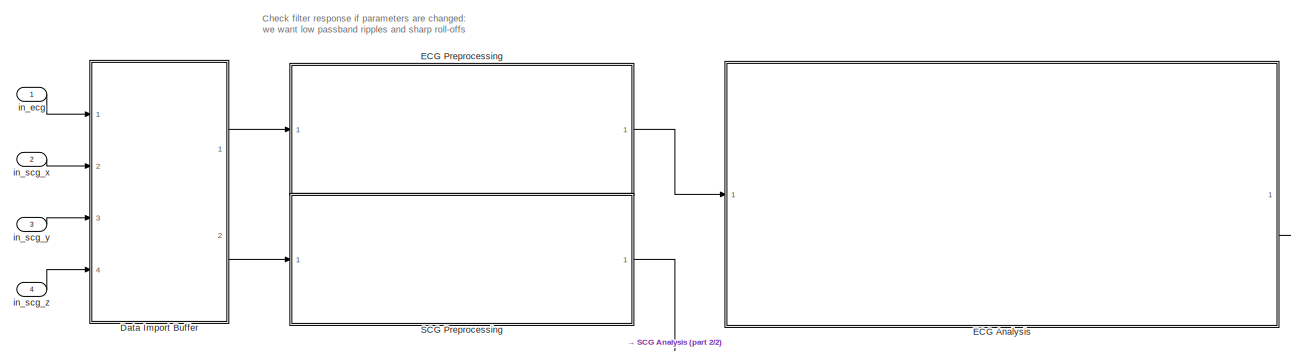
[diagram: root canvas - part 1/2, top left region]
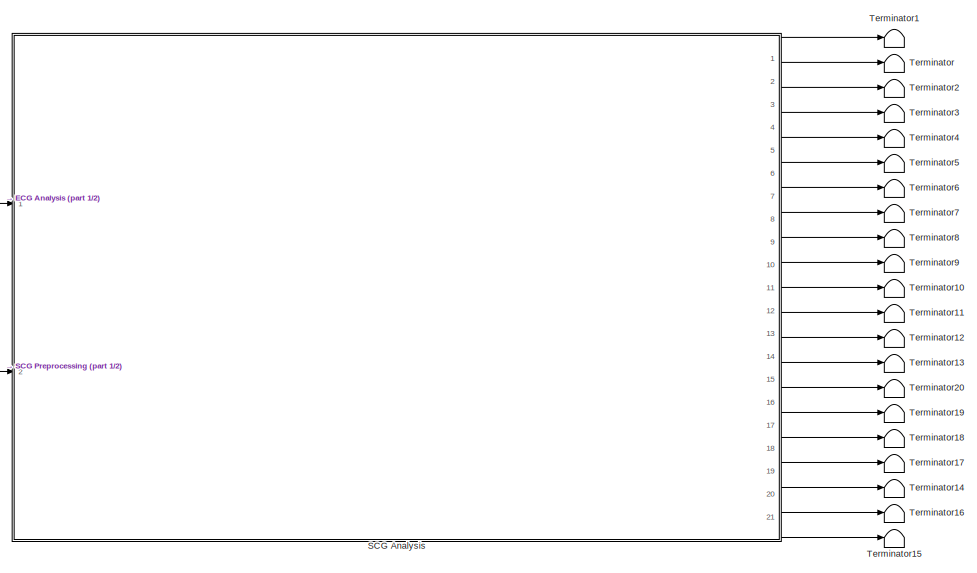
[diagram: root canvas - part 2/2, right side, full height]
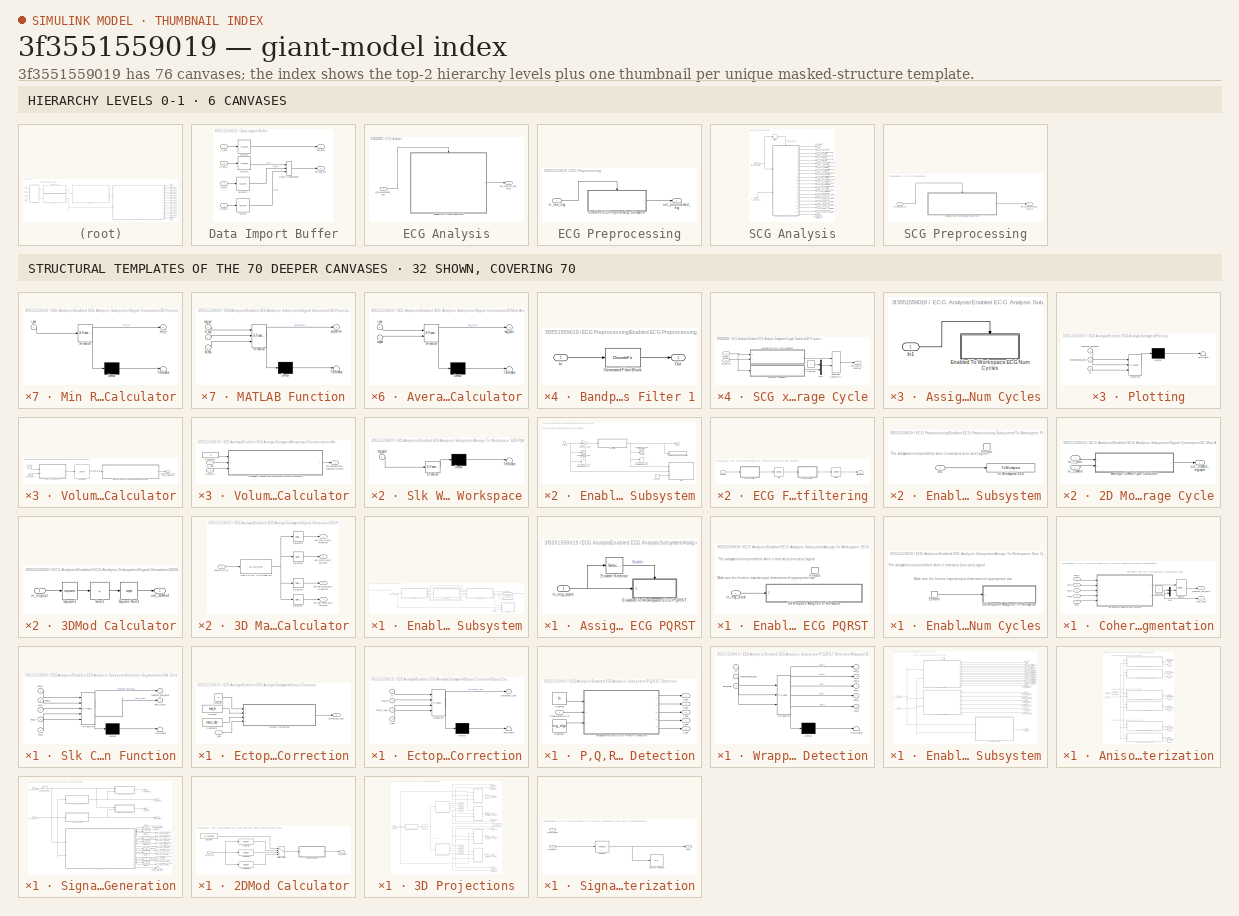
[diagram: thumbnail index - top-2 hierarchy levels (6 canvases) + 32 structural-template representatives of the remaining 70 canvases]
MODEL slx_3f3551559019
KIND model
CONFIG AbsTol = auto
CONFIG EnableMultiTasking = off
CONFIG FixedStep = 1/fs
CONFIG MaxStep = 1/fs
CONFIG MinStep = auto
CONFIG RelTol = 1e-3
CONFIG SampleTimeConstraint = Unconstrained
CONFIG SolverName = FixedStepDiscrete
CONFIG StartTime = 0.0
CONFIG StopTime = param_sim_time
BLOCK [SubSystem] Data Import Buffer
  Ports = [4, 2]
  RequestExecContextInheritance = off
BLOCK [Buffer] Data Import Buffer/Buffer
  N = param_tot_samples
  OutputFrames = off
BLOCK [Buffer] Data Import Buffer/Buffer1
  N = param_tot_samples
  OutputFrames = off
BLOCK [Buffer] Data Import Buffer/Buffer2
  N = param_tot_samples
  OutputFrames = off
BLOCK [Buffer] Data Import Buffer/Buffer3
  N = param_tot_samples
  OutputFrames = off
BLOCK [Concatenate] Data Import Buffer/Vector Concatenate
  ConcatenateDimension = 2
  Mode = Multidimensional array
  NumInputs = 3
  Ports = [3, 1]
BLOCK [Inport] Data Import Buffer/in_ecg
BLOCK [Inport] Data Import Buffer/in_scg_x
  Port = 2
BLOCK [Inport] Data Import Buffer/in_scg_y
  Port = 3
BLOCK [Inport] Data Import Buffer/in_scg_z
  Port = 4
BLOCK [Outport] Data Import Buffer/out_ecg
  VectorParamsAs1DForOutWhenUnconnected = off
BLOCK [Outport] Data Import Buffer/out_scg_xyz
  Port = 2
  VectorParamsAs1DForOutWhenUnconnected = off
BLOCK [SubSystem] ECG Analysis
  Ports = [1, 1]
  RequestExecContextInheritance = off
BLOCK [SubSystem] ECG Analysis/Enabled ECG Analysis Subsystem
  Ports = [0, 1, 1]
  RequestExecContextInheritance = off
  TreatAsAtomicUnit = on
BLOCK [SubSystem] ECG Analysis/Enabled ECG Analysis Subsystem/Assign To Workspace: ECG PQRST
  NameLocation = right
  Ports = [1]
  RequestExecContextInheritance = off
BLOCK [Selector] ECG Analysis/Enabled ECG Analysis Subsystem/Assign To Workspace: ECG PQRST/Enable Selector
  IndexOptions = Index vector (dialog),Index vector (dialog)
  Indices = [1],[3]
  InputPortWidth = 3
  NumberOfDimensions = 2
  OutputSizes = 1,1
  Ports = [1, 1]
BLOCK [SubSystem] ECG Analysis/Enabled ECG Analysis Subsystem/Assign To Workspace: ECG PQRST/Enabled To Workspace ECG PQRST
  Ports = [1, 0, 1]
  RequestExecContextInheritance = off
  TreatAsAtomicUnit = on
BLOCK [EnablePort] ECG Analysis/Enabled ECG Analysis Subsystem/Assign To Workspace: ECG PQRST/Enabled To Workspace ECG PQRST/Enable
  NameLocation = left
  Ports = []
BLOCK [SubSystem] ECG Analysis/Enabled ECG Analysis Subsystem/Assign To Workspace: ECG PQRST/Enabled To Workspace ECG PQRST/Slk Wrapped Assigned to Workspace
  ErrorFcn = Stateflow.Translate.translate
  PermitHierarchicalResolution = ExplicitOnly
  Ports = [1]
  RequestExecContextInheritance = off
  SFBlockType = MATLAB Function
  TreatAsAtomicUnit = on
BLOCK [Demux] ECG Analysis/Enabled ECG Analysis Subsystem/Assign To Workspace: ECG PQRST/Enabled To Workspace ECG PQRST/Slk Wrapped Assigned to Workspace/ Demux 
  Outputs = 1
  Ports = [1, 1]
BLOCK [S-Function] ECG Analysis/Enabled ECG Analysis Subsystem/Assign To Workspace: ECG PQRST/Enabled To Workspace ECG PQRST/Slk Wrapped Assigned to Workspace/ SFunction 
  EnableBusSupport = on
  FunctionName = sf_sfun
  PortCounts = [1 1]
  Ports = [1, 1]
  SFcnIsStateOwnerBlock = off
  SFunctionDeploymentMode = off
  Tag = Stateflow S-Function 14
BLOCK [Terminator] ECG Analysis/Enabled ECG Analysis Subsystem/Assign To Workspace: ECG PQRST/Enabled To Workspace ECG PQRST/Slk Wrapped Assigned to Workspace/ Terminator 
BLOCK [Inport] ECG Analysis/Enabled ECG Analysis Subsystem/Assign To Workspace: ECG PQRST/Enabled To Workspace ECG PQRST/Slk Wrapped Assigned to Workspace/ecg_pqrst
BLOCK [Inport] ECG Analysis/Enabled ECG Analysis Subsystem/Assign To Workspace: ECG PQRST/Enabled To Workspace ECG PQRST/in_ecg_pqrst
  NameLocation = left
BLOCK [Inport] ECG Analysis/Enabled ECG Analysis Subsystem/Assign To Workspace: ECG PQRST/in_ecg_pqrst
BLOCK [SubSystem] ECG Analysis/Enabled ECG Analysis Subsystem/Assign To Workspace: Num Cycles
  NameLocation = right
  Ports = [1]
  RequestExecContextInheritance = off
BLOCK [SubSystem] ECG Analysis/Enabled ECG Analysis Subsystem/Assign To Workspace: Num Cycles/Enabled To Workspace ECG Num Cycles
  Ports = [0, 0, 1]
  RequestExecContextInheritance = off
  TreatAsAtomicUnit = on
BLOCK [EnablePort] ECG Analysis/Enabled ECG Analysis Subsystem/Assign To Workspace: Num Cycles/Enabled To Workspace ECG Num Cycles/Enable
  Ports = [0, 1]
  ShowOutputPort = on
BLOCK [SubSystem] ECG Analysis/Enabled ECG Analysis Subsystem/Assign To Workspace: Num Cycles/Enabled To Workspace ECG Num Cycles/Slk Wrapped Assigned To Workspace
  ErrorFcn = Stateflow.Translate.translate
  PermitHierarchicalResolution = ExplicitOnly
  Ports = [1]
  RequestExecContextInheritance = off
  SFBlockType = MATLAB Function
  TreatAsAtomicUnit = on
BLOCK [Demux] ECG Analysis/Enabled ECG Analysis Subsystem/Assign To Workspace: Num Cycles/Enabled To Workspace ECG Num Cycles/Slk Wrapped Assigned To Workspace/ Demux 
  Outputs = 1
  Ports = [1, 1]
BLOCK [S-Function] ECG Analysis/Enabled ECG Analysis Subsystem/Assign To Workspace: Num Cycles/Enabled To Workspace ECG Num Cycles/Slk Wrapped Assigned To Workspace/ SFunction 
  EnableBusSupport = on
  FunctionName = sf_sfun
  PortCounts = [1 1]
  Ports = [1, 1]
  SFcnIsStateOwnerBlock = off
  SFunctionDeploymentMode = off
  Tag = Stateflow S-Function 13
BLOCK [Terminator] ECG Analysis/Enabled ECG Analysis Subsystem/Assign To Workspace: Num Cycles/Enabled To Workspace ECG Num Cycles/Slk Wrapped Assigned To Workspace/ Terminator 
BLOCK [Inport] ECG Analysis/Enabled ECG Analysis Subsystem/Assign To Workspace: Num Cycles/Enabled To Workspace ECG Num Cycles/Slk Wrapped Assigned To Workspace/assigned_var
BLOCK [Inport] ECG Analysis/Enabled ECG Analysis Subsystem/Assign To Workspace: Num Cycles/In1
BLOCK [SubSystem] ECG Analysis/Enabled ECG Analysis Subsystem/Coherent Segmentation
  Ports = [5, 2]
  RequestExecContextInheritance = off
BLOCK [Constant] ECG Analysis/Enabled ECG Analysis Subsystem/Coherent Segmentation/Constant
BLOCK [Mux] ECG Analysis/Enabled ECG Analysis Subsystem/Coherent Segmentation/Mux
  DisplayOption = bar
  Inputs = 2
  Ports = [2, 1]
BLOCK [Selector] ECG Analysis/Enabled ECG Analysis Subsystem/Coherent Segmentation/Selector
  IndexOptions = Starting and ending indices (port),Index vector (dialog)
  Indices = [1 3],[1 2 3 3 5]
  InputPortWidth = 3
  NumberOfDimensions = 2
  OutputSizes = 1,1
  Ports = [2, 1]
BLOCK [SubSystem] ECG Analysis/Enabled ECG Analysis Subsystem/Coherent Segmentation/Slk Coherent Segmentation Function
  ErrorFcn = Stateflow.Translate.translate
  PermitHierarchicalResolution = ExplicitOnly
  Ports = [5, 2]
  RequestExecContextInheritance = off
  SFBlockType = MATLAB Function
  TreatAsAtomicUnit = on
BLOCK [Demux] ECG Analysis/Enabled ECG Analysis Subsystem/Coherent Segmentation/Slk Coherent Segmentation Function/ Demux 
  Outputs = 1
  Ports = [1, 1]
BLOCK [S-Function] ECG Analysis/Enabled ECG Analysis Subsystem/Coherent Segmentation/Slk Coherent Segmentation Function/ SFunction 
  EnableBusSupport = on
  FunctionName = sf_sfun
  PortCounts = [5 3]
  Ports = [5, 3]
  SFcnIsStateOwnerBlock = off
  SFunctionDeploymentMode = off
  Tag = Stateflow S-Function 1
BLOCK [Terminator] ECG Analysis/Enabled ECG Analysis Subsystem/Coherent Segmentation/Slk Coherent Segmentation Function/ Terminator 
BLOCK [Outport] ECG Analysis/Enabled ECG Analysis Subsystem/Coherent Segmentation/Slk Coherent Segmentation Function/coherent_ecg_pqrst
BLOCK [Inport] ECG Analysis/Enabled ECG Analysis Subsystem/Coherent Segmentation/Slk Coherent Segmentation Function/ecg_p
BLOCK [Inport] ECG Analysis/Enabled ECG Analysis Subsystem/Coherent Segmentation/Slk Coherent Segmentation Function/ecg_q
  Port = 2
BLOCK [Inport] ECG Analysis/Enabled ECG Analysis Subsystem/Coherent Segmentation/Slk Coherent Segmentation Function/ecg_r
  Port = 3
BLOCK [Inport] ECG Analysis/Enabled ECG Analysis Subsystem/Coherent Segmentation/Slk Coherent Segmentation Function/ecg_s
  Port = 4
BLOCK [Inport] ECG Analysis/Enabled ECG Analysis Subsystem/Coherent Segmentation/Slk Coherent Segmentation Function/ecg_t
  Port = 5
BLOCK [Outport] ECG Analysis/Enabled ECG Analysis Subsystem/Coherent Segmentation/Slk Coherent Segmentation Function/num_cycles
  Port = 2
BLOCK [Outport] ECG Analysis/Enabled ECG Analysis Subsystem/Coherent Segmentation/coherent_ecg_pqrst
  NameLocation = right
BLOCK [Inport] ECG Analysis/Enabled ECG Analysis Subsystem/Coherent Segmentation/ecg_p
  NameLocation = left
BLOCK [Inport] ECG Analysis/Enabled ECG Analysis Subsystem/Coherent Segmentation/ecg_q
  NameLocation = left
  Port = 2
BLOCK [Inport] ECG Analysis/Enabled ECG Analysis Subsystem/Coherent Segmentation/ecg_r
  NameLocation = left
  Port = 3
BLOCK [Inport] ECG Analysis/Enabled ECG Analysis Subsystem/Coherent Segmentation/ecg_s
  NameLocation = left
  Port = 4
BLOCK [Inport] ECG Analysis/Enabled ECG Analysis Subsystem/Coherent Segmentation/ecg_t
  NameLocation = left
  Port = 5
BLOCK [Outport] ECG Analysis/Enabled ECG Analysis Subsystem/Coherent Segmentation/num_cycles
  NameLocation = right
  Port = 2
BLOCK [Constant] ECG Analysis/Enabled ECG Analysis Subsystem/Constant
  Value = fs
BLOCK [SubSystem] ECG Analysis/Enabled ECG Analysis Subsystem/Ectopic Correction
  Ports = [1, 1]
  RequestExecContextInheritance = off
BLOCK [Constant] ECG Analysis/Enabled ECG Analysis Subsystem/Ectopic Correction/Constant
  Value = max_hr
BLOCK [Constant] ECG Analysis/Enabled ECG Analysis Subsystem/Ectopic Correction/Constant1
  Value = max_rr_dev
BLOCK [Constant] ECG Analysis/Enabled ECG Analysis Subsystem/Ectopic Correction/Constant2
  Value = fs
BLOCK [SubSystem] ECG Analysis/Enabled ECG Analysis Subsystem/Ectopic Correction/Ectopic Correction
  ErrorFcn = Stateflow.Translate.translate
  PermitHierarchicalResolution = ExplicitOnly
  Ports = [4, 1]
  RequestExecContextInheritance = off
  SFBlockType = MATLAB Function
  TreatAsAtomicUnit = on
BLOCK [Demux] ECG Analysis/Enabled ECG Analysis Subsystem/Ectopic Correction/Ectopic Correction/ Demux 
  Outputs = 1
  Ports = [1, 1]
BLOCK [S-Function] ECG Analysis/Enabled ECG Analysis Subsystem/Ectopic Correction/Ectopic Correction/ SFunction 
  EnableBusSupport = on
  FunctionName = sf_sfun
  PortCounts = [4 2]
  Ports = [4, 2]
  SFcnIsStateOwnerBlock = off
  SFunctionDeploymentMode = off
  Tag = Stateflow S-Function 4
BLOCK [Terminator] ECG Analysis/Enabled ECG Analysis Subsystem/Ectopic Correction/Ectopic Correction/ Terminator 
BLOCK [Outport] ECG Analysis/Enabled ECG Analysis Subsystem/Ectopic Correction/Ectopic Correction/corrected_r_pos
BLOCK [Inport] ECG Analysis/Enabled ECG Analysis Subsystem/Ectopic Correction/Ectopic Correction/fs
BLOCK [Inport] ECG Analysis/Enabled ECG Analysis Subsystem/Ectopic Correction/Ectopic Correction/max_hr
  Port = 2
BLOCK [Inport] ECG Analysis/Enabled ECG Analysis Subsystem/Ectopic Correction/Ectopic Correction/max_rr_dev
  Port = 3
BLOCK [Inport] ECG Analysis/Enabled ECG Analysis Subsystem/Ectopic Correction/Ectopic Correction/r_pos
  Port = 4
BLOCK [Outport] ECG Analysis/Enabled ECG Analysis Subsystem/Ectopic Correction/corrected_r_pos
  NameLocation = right
BLOCK [Inport] ECG Analysis/Enabled ECG Analysis Subsystem/Ectopic Correction/r_pos
  NameLocation = left
BLOCK [Display] ECG Analysis/Enabled ECG Analysis Subsystem/Num Cycles
  Decimation = 1
  NameLocation = right
  Ports = [1]
BLOCK [SubSystem] ECG Analysis/Enabled ECG Analysis Subsystem/P,Q,R,S,T Detection
  Ports = [1, 5]
  RequestExecContextInheritance = off
BLOCK [Constant] ECG Analysis/Enabled ECG Analysis Subsystem/P,Q,R,S,T Detection/Constant
  Value = fs
BLOCK [Constant] ECG Analysis/Enabled ECG Analysis Subsystem/P,Q,R,S,T Detection/Constant1
  Value = ecg_algo
BLOCK [Inport] ECG Analysis/Enabled ECG Analysis Subsystem/P,Q,R,S,T Detection/Preprocessed ECG
  NameLocation = left
BLOCK [SubSystem] ECG Analysis/Enabled ECG Analysis Subsystem/P,Q,R,S,T Detection/Wrapped BioSigKit ECG PQRST Detection
  ErrorFcn = Stateflow.Translate.translate
  PermitHierarchicalResolution = ExplicitOnly
  Ports = [3, 5]
  RequestExecContextInheritance = off
  SFBlockType = MATLAB Function
  TreatAsAtomicUnit = on
BLOCK [Demux] ECG Analysis/Enabled ECG Analysis Subsystem/P,Q,R,S,T Detection/Wrapped BioSigKit ECG PQRST Detection/ Demux 
  Outputs = 1
  Ports = [1, 1]
BLOCK [S-Function] ECG Analysis/Enabled ECG Analysis Subsystem/P,Q,R,S,T Detection/Wrapped BioSigKit ECG PQRST Detection/ SFunction 
  EnableBusSupport = on
  FunctionName = sf_sfun
  PortCounts = [3 6]
  Ports = [3, 6]
  SFcnIsStateOwnerBlock = off
  SFunctionDeploymentMode = off
  Tag = Stateflow S-Function 6
BLOCK [Terminator] ECG Analysis/Enabled ECG Analysis Subsystem/P,Q,R,S,T Detection/Wrapped BioSigKit ECG PQRST Detection/ Terminator 
BLOCK [Inport] ECG Analysis/Enabled ECG Analysis Subsystem/P,Q,R,S,T Detection/Wrapped BioSigKit ECG PQRST Detection/ecg_algo
  Port = 3
BLOCK [Outport] ECG Analysis/Enabled ECG Analysis Subsystem/P,Q,R,S,T Detection/Wrapped BioSigKit ECG PQRST Detection/ecg_p
BLOCK [Outport] ECG Analysis/Enabled ECG Analysis Subsystem/P,Q,R,S,T Detection/Wrapped BioSigKit ECG PQRST Detection/ecg_q
  Port = 2
BLOCK [Outport] ECG Analysis/Enabled ECG Analysis Subsystem/P,Q,R,S,T Detection/Wrapped BioSigKit ECG PQRST Detection/ecg_r
  Port = 3
BLOCK [Outport] ECG Analysis/Enabled ECG Analysis Subsystem/P,Q,R,S,T Detection/Wrapped BioSigKit ECG PQRST Detection/ecg_s
  Port = 4
BLOCK [Outport] ECG Analysis/Enabled ECG Analysis Subsystem/P,Q,R,S,T Detection/Wrapped BioSigKit ECG PQRST Detection/ecg_t
  Port = 5
BLOCK [Inport] ECG Analysis/Enabled ECG Analysis Subsystem/P,Q,R,S,T Detection/Wrapped BioSigKit ECG PQRST Detection/fs
BLOCK [Inport] ECG Analysis/Enabled ECG Analysis Subsystem/P,Q,R,S,T Detection/Wrapped BioSigKit ECG PQRST Detection/preprocessed_ecg
  Port = 2
BLOCK [Outport] ECG Analysis/Enabled ECG Analysis Subsystem/P,Q,R,S,T Detection/p_pos
  NameLocation = right
  VarSizeSig = Yes
BLOCK [Outport] ECG Analysis/Enabled ECG Analysis Subsystem/P,Q,R,S,T Detection/q_pos
  NameLocation = right
  Port = 2
  VarSizeSig = Yes
BLOCK [Outport] ECG Analysis/Enabled ECG Analysis Subsystem/P,Q,R,S,T Detection/r_pos
  NameLocation = right
  Port = 3
  VarSizeSig = Yes
BLOCK [Outport] ECG Analysis/Enabled ECG Analysis Subsystem/P,Q,R,S,T Detection/s_pos
  NameLocation = right
  Port = 4
  VarSizeSig = Yes
BLOCK [Outport] ECG Analysis/Enabled ECG Analysis Subsystem/P,Q,R,S,T Detection/t_pos
  NameLocation = right
  Port = 5
  VarSizeSig = Yes
BLOCK [SubSystem] ECG Analysis/Enabled ECG Analysis Subsystem/Plotting
  ErrorFcn = Stateflow.Translate.translate
  PermitHierarchicalResolution = ExplicitOnly
  Ports = [3]
  RequestExecContextInheritance = off
  SFBlockType = MATLAB Function
  TreatAsAtomicUnit = on
BLOCK [Demux] ECG Analysis/Enabled ECG Analysis Subsystem/Plotting/ Demux 
  Outputs = 1
  Ports = [1, 1]
BLOCK [S-Function] ECG Analysis/Enabled ECG Analysis Subsystem/Plotting/ SFunction 
  EnableBusSupport = on
  FunctionName = sf_sfun
  PortCounts = [3 1]
  Ports = [3, 1]
  SFcnIsStateOwnerBlock = off
  SFunctionDeploymentMode = off
  Tag = Stateflow S-Function 2
BLOCK [Terminator] ECG Analysis/Enabled ECG Analysis Subsystem/Plotting/ Terminator 
BLOCK [Inport] ECG Analysis/Enabled ECG Analysis Subsystem/Plotting/coherent_ecg_pqrst
BLOCK [Inport] ECG Analysis/Enabled ECG Analysis Subsystem/Plotting/fs
  Port = 3
BLOCK [Inport] ECG Analysis/Enabled ECG Analysis Subsystem/Plotting/preprocessed_ecg
  Port = 2
BLOCK [EnablePort] ECG Analysis/Enabled ECG Analysis Subsystem/Preprocessed ECG
  NameLocation = left
  Ports = [0, 1]
  PropagateVarSize = During execution
  ShowOutputPort = on
BLOCK [Outport] ECG Analysis/Enabled ECG Analysis Subsystem/coherent_ecg_pqrst
  NameLocation = right
BLOCK [Inport] ECG Analysis/in_preprocessed_ecg
BLOCK [Outport] ECG Analysis/out_coherent_ecg_pqrst
  NameLocation = right
BLOCK [SubSystem] ECG Preprocessing
  NameLocation = top
  Ports = [1, 1]
  RequestExecContextInheritance = off
BLOCK [SubSystem] ECG Preprocessing/Enabled ECG Preprocessing Subsystem
  Ports = [0, 1, 1]
  RequestExecContextInheritance = off
  TreatAsAtomicUnit = on
BLOCK [Constant] ECG Preprocessing/Enabled ECG Preprocessing Subsystem/Constant
  Value = fs
BLOCK [SubSystem] ECG Preprocessing/Enabled ECG Preprocessing Subsystem/ECG Filtfiltering
  Ports = [1, 1]
  RequestExecContextInheritance = off
BLOCK [SubSystem] ECG Preprocessing/Enabled ECG Preprocessing Subsystem/ECG Filtfiltering/Bandpass Filter 1
  CopyFcn = fdesignblkfcn(gcbh, {'CopyFcn'});
  DialogController = fdesignblkfcn
  InitFcn = fdesignblkfcn(gcbh, {'InitFcn'});
  Ports = [1, 1]
  RequestExecContextInheritance = off
  UserDataPersistent = on
BLOCK [DiscreteFir] ECG Preprocessing/Enabled ECG Preprocessing Subsystem/ECG Filtfiltering/Bandpass Filter 1/Generated Filter Block
  Coefficients = [-0.0114243088354877773 0.00587624110456374388 0.00413946068324517157 0.00264334557424035672 0.00138774422276622192 0.00039597756815762733 -0.000357391963790950132 -0.000870027328167087902 -0.00118474210009046274 -0.0013114772414377189 -0.00130211118137258525 -0.00117028348293094116 -0.000969555288066135598 -0.000709991739662891794 -0.000441672338585462343 -0.000165596169411169614 7.38618239838010...<+24253ch>
  InputPortMap = u0
  InputProcessing = Columns as channels (frame based)
  OutputPortMap = o0
  Ports = [1, 1]
  Tag = BlockMethodSubSystem
BLOCK [Inport] ECG Preprocessing/Enabled ECG Preprocessing Subsystem/ECG Filtfiltering/Bandpass Filter 1/In
BLOCK [Outport] ECG Preprocessing/Enabled ECG Preprocessing Subsystem/ECG Filtfiltering/Bandpass Filter 1/Out
  VectorParamsAs1DForOutWhenUnconnected = off
BLOCK [SubSystem] ECG Preprocessing/Enabled ECG Preprocessing Subsystem/ECG Filtfiltering/Bandpass Filter 2
  CopyFcn = fdesignblkfcn(gcbh, {'CopyFcn'});
  DialogController = fdesignblkfcn
  InitFcn = fdesignblkfcn(gcbh, {'InitFcn'});
  Ports = [1, 1]
  RequestExecContextInheritance = off
  UserDataPersistent = on
BLOCK [DiscreteFir] ECG Preprocessing/Enabled ECG Preprocessing Subsystem/ECG Filtfiltering/Bandpass Filter 2/Generated Filter Block
  Coefficients = [-0.0114243088354877773 0.00587624110456374388 0.00413946068324517157 0.00264334557424035672 0.00138774422276622192 0.00039597756815762733 -0.000357391963790950132 -0.000870027328167087902 -0.00118474210009046274 -0.0013114772414377189 -0.00130211118137258525 -0.00117028348293094116 -0.000969555288066135598 -0.000709991739662891794 -0.000441672338585462343 -0.000165596169411169614 7.38618239838010...<+24253ch>
  InputPortMap = u0
  InputProcessing = Columns as channels (frame based)
  OutputPortMap = o0
  Ports = [1, 1]
  Tag = BlockMethodSubSystem
BLOCK [Inport] ECG Preprocessing/Enabled ECG Preprocessing Subsystem/ECG Filtfiltering/Bandpass Filter 2/In
BLOCK [Outport] ECG Preprocessing/Enabled ECG Preprocessing Subsystem/ECG Filtfiltering/Bandpass Filter 2/Out
  VectorParamsAs1DForOutWhenUnconnected = off
BLOCK [DSPFlip] ECG Preprocessing/Enabled ECG Preprocessing Subsystem/ECG Filtfiltering/Flip
BLOCK [DSPFlip] ECG Preprocessing/Enabled ECG Preprocessing Subsystem/ECG Filtfiltering/Flip1
BLOCK [Outport] ECG Preprocessing/Enabled ECG Preprocessing Subsystem/ECG Filtfiltering/filtfiltered ecg
  VectorParamsAs1DForOutWhenUnconnected = off
BLOCK [Inport] ECG Preprocessing/Enabled ECG Preprocessing Subsystem/ECG Filtfiltering/input ecg
BLOCK [SpectrumAnalyzer] ECG Preprocessing/Enabled ECG Preprocessing Subsystem/ECG Preprocessing Input (Frequency)
  Commented = on
  Ports = [1]
  ScopeSpecificationString = spbscopes.SpectrumAnalyzerBlockCfg('CurrentConfiguration', extmgr.ConfigurationSet(extmgr.Configuration('Core','General UI',true),extmgr.Configuration('Core','Source UI',true),extmgr.Configuration('Sources','WiredSimulink',true),extmgr.Configuration('Visuals','Spectrum',true,'AxesProperties',struct('Color',{[0 0 0],[0 0 0]},'XColor',{[0.686274509803922 0.686274509803922 0.686274509803922],[0.68627...<+2122ch>
BLOCK [Scope] ECG Preprocessing/Enabled ECG Preprocessing Subsystem/ECG Preprocessing Input (Time)
  Commented = on
  Floating = off
  NumInputPorts = 1
  Ports = [1]
  ScopeSpecificationString = Simulink.scopes.TimeScopeBlockCfg('CurrentConfiguration', extmgr.ConfigurationSet(extmgr.Configuration('Core','General UI',true),extmgr.Configuration('Core','Source UI',true),extmgr.Configuration('Sources','WiredSimulink',true,'DataLoggingMaxPoints','tot_samples','DataLoggingVariableName','ScopeData1'),extmgr.Configuration('Visuals','Time Domain',true,'InputProcessing','FrameProcessing','Serialize...<+1708ch>
BLOCK [SpectrumAnalyzer] ECG Preprocessing/Enabled ECG Preprocessing Subsystem/ECG Preprocessing Output (Frequency)
  Commented = on
  Ports = [1]
  ScopeSpecificationString = spbscopes.SpectrumAnalyzerBlockCfg('CurrentConfiguration', extmgr.ConfigurationSet(extmgr.Configuration('Core','General UI',true),extmgr.Configuration('Core','Source UI',true),extmgr.Configuration('Sources','WiredSimulink',true),extmgr.Configuration('Visuals','Spectrum',true,'AxesProperties',struct('Color',{[0 0 0],[0 0 0]},'XColor',{[0.686274509803922 0.686274509803922 0.686274509803922],[0.68627...<+2304ch>
BLOCK [Scope] ECG Preprocessing/Enabled ECG Preprocessing Subsystem/ECG Preprocessing Output (Time)
  Floating = off
  NumInputPorts = 1
  Ports = [1]
  ScopeSpecificationString = Simulink.scopes.TimeScopeBlockCfg('CurrentConfiguration', extmgr.ConfigurationSet(extmgr.Configuration('Core','General UI',true),extmgr.Configuration('Core','Source UI',true),extmgr.Configuration('Sources','WiredSimulink',true,'DataLoggingMaxPoints','tot_samples','DataLoggingVariableName','ScopeData2'),extmgr.Configuration('Visuals','Time Domain',true,'InputProcessing','FrameProcessing','Serialize...<+1735ch>
BLOCK [Outport] ECG Preprocessing/Enabled ECG Preprocessing Subsystem/Output
  VectorParamsAs1DForOutWhenUnconnected = off
BLOCK [SubSystem] ECG Preprocessing/Enabled ECG Preprocessing Subsystem/Plotting
  ErrorFcn = Stateflow.Translate.translate
  PermitHierarchicalResolution = ExplicitOnly
  Ports = [3]
  RequestExecContextInheritance = off
  SFBlockType = MATLAB Function
  TreatAsAtomicUnit = on
BLOCK [Demux] ECG Preprocessing/Enabled ECG Preprocessing Subsystem/Plotting/ Demux 
  Outputs = 1
  Ports = [1, 1]
BLOCK [S-Function] ECG Preprocessing/Enabled ECG Preprocessing Subsystem/Plotting/ SFunction 
  EnableBusSupport = on
  FunctionName = sf_sfun
  PortCounts = [3 1]
  Ports = [3, 1]
  SFcnIsStateOwnerBlock = off
  SFunctionDeploymentMode = off
  Tag = Stateflow S-Function 3
BLOCK [Terminator] ECG Preprocessing/Enabled ECG Preprocessing Subsystem/Plotting/ Terminator 
BLOCK [Inport] ECG Preprocessing/Enabled ECG Preprocessing Subsystem/Plotting/fs
  Port = 3
BLOCK [Inport] ECG Preprocessing/Enabled ECG Preprocessing Subsystem/Plotting/preprocessed_ecg
BLOCK [Inport] ECG Preprocessing/Enabled ECG Preprocessing Subsystem/Plotting/raw_ecg
  Port = 2
BLOCK [SubSystem] ECG Preprocessing/Enabled ECG Preprocessing Subsystem/To Workspace: Processed ECG
  Ports = [1]
  RequestExecContextInheritance = off
BLOCK [SubSystem] ECG Preprocessing/Enabled ECG Preprocessing Subsystem/To Workspace: Processed ECG/Enabled To Workspace ECG Subsystem
  Ports = [1, 0, 1]
  RequestExecContextInheritance = off
  TreatAsAtomicUnit = on
BLOCK [EnablePort] ECG Preprocessing/Enabled ECG Preprocessing Subsystem/To Workspace: Processed ECG/Enabled To Workspace ECG Subsystem/Enable
  Ports = []
BLOCK [Inport] ECG Preprocessing/Enabled ECG Preprocessing Subsystem/To Workspace: Processed ECG/Enabled To Workspace ECG Subsystem/In1
BLOCK [ToWorkspace] ECG Preprocessing/Enabled ECG Preprocessing Subsystem/To Workspace: Processed ECG/Enabled To Workspace ECG Subsystem/To Workspace ECG
  FixptAsFi = on
  MaxDataPoints = inf
  Ports = [1]
  SampleTime = -1
  SaveFormat = Structure
  VariableName = out_ecg_preprocessing
BLOCK [Inport] ECG Preprocessing/Enabled ECG Preprocessing Subsystem/To Workspace: Processed ECG/In1
BLOCK [Gain] ECG Preprocessing/Enabled ECG Preprocessing Subsystem/V to mV Conversion
  Gain = param_ecg_gain_mv
BLOCK [EnablePort] ECG Preprocessing/Enabled ECG Preprocessing Subsystem/in_ecg
  Ports = [0, 1]
  ShowOutputPort = on
BLOCK [Inport] ECG Preprocessing/in_raw_ecg
BLOCK [Outport] ECG Preprocessing/out_preprocessed_ecg
  VectorParamsAs1DForOutWhenUnconnected = off
BLOCK [SubSystem] SCG Analysis
  Ports = [2, 21]
  RequestExecContextInheritance = off
BLOCK [SubSystem] SCG Analysis/Enabled SCG Analysis Subsystem
  Ports = [2, 21, 1]
  RequestExecContextInheritance = off
  TreatAsAtomicUnit = on
BLOCK [SubSystem] SCG Analysis/Enabled SCG Analysis Subsystem/Anisotropy Characterization
  Ports = [2, 6]
  RequestExecContextInheritance = off
BLOCK [SubSystem] SCG Analysis/Enabled SCG Analysis Subsystem/Anisotropy Characterization/Average Cycle Max Diameter//Volume Calculator
  Ports = [2, 1]
  RequestExecContextInheritance = off
BLOCK [Selector] SCG Analysis/Enabled SCG Analysis Subsystem/Anisotropy Characterization/Average Cycle Max Diameter//Volume Calculator/S1 Selector
  IndexOptions = Index vector (dialog),Index vector (dialog)
  Indices = [1:fs*0.2],[1 2 3]
  InputPortWidth = 3
  NumberOfDimensions = 2
  OutputSizes = 1,1
  Ports = [1, 1]
BLOCK [SubSystem] SCG Analysis/Enabled SCG Analysis Subsystem/Anisotropy Characterization/Average Cycle Max Diameter//Volume Calculator/SCG xyz Average Cycle
  Ports = [2, 1]
  RequestExecContextInheritance = off
BLOCK [SubSystem] SCG Analysis/Enabled SCG Analysis Subsystem/Anisotropy Characterization/Average Cycle Max Diameter//Volume Calculator/SCG xyz Average Cycle/Average SCGxyz Cycle Calculator
  ErrorFcn = Stateflow.Translate.translate
  NameLocation = top
  PermitHierarchicalResolution = ExplicitOnly
  Ports = [2, 1]
  RequestExecContextInheritance = off
  SFBlockType = MATLAB Function
  TreatAsAtomicUnit = on
BLOCK [Demux] SCG Analysis/Enabled SCG Analysis Subsystem/Anisotropy Characterization/Average Cycle Max Diameter//Volume Calculator/SCG xyz Average Cycle/Average SCGxyz Cycle Calculator/ Demux 
  Outputs = 1
  Ports = [1, 1]
BLOCK [S-Function] SCG Analysis/Enabled SCG Analysis Subsystem/Anisotropy Characterization/Average Cycle Max Diameter//Volume Calculator/SCG xyz Average Cycle/Average SCGxyz Cycle Calculator/ SFunction 
  EnableBusSupport = on
  FunctionName = sf_sfun
  PortCounts = [2 2]
  Ports = [2, 2]
  SFcnIsStateOwnerBlock = off
  SFunctionDeploymentMode = off
  Tag = Stateflow S-Function 19
BLOCK [Terminator] SCG Analysis/Enabled SCG Analysis Subsystem/Anisotropy Characterization/Average Cycle Max Diameter//Volume Calculator/SCG xyz Average Cycle/Average SCGxyz Cycle Calculator/ Terminator 
BLOCK [Inport] SCG Analysis/Enabled SCG Analysis Subsystem/Anisotropy Characterization/Average Cycle Max Diameter//Volume Calculator/SCG xyz Average Cycle/Average SCGxyz Cycle Calculator/r_pos
BLOCK [Inport] SCG Analysis/Enabled SCG Analysis Subsystem/Anisotropy Characterization/Average Cycle Max Diameter//Volume Calculator/SCG xyz Average Cycle/Average SCGxyz Cycle Calculator/scgxyz
  Port = 2
BLOCK [Outport] SCG Analysis/Enabled SCG Analysis Subsystem/Anisotropy Characterization/Average Cycle Max Diameter//Volume Calculator/SCG xyz Average Cycle/Average SCGxyz Cycle Calculator/scgxyz_avgcycle
  VectorParamsAs1DForOutWhenUnconnected = off
BLOCK [Constant] SCG Analysis/Enabled SCG Analysis Subsystem/Anisotropy Characterization/Average Cycle Max Diameter//Volume Calculator/SCG xyz Average Cycle/Constant
BLOCK [Selector] SCG Analysis/Enabled SCG Analysis Subsystem/Anisotropy Characterization/Average Cycle Max Diameter//Volume Calculator/SCG xyz Average Cycle/Fixed-Size Converter 2
  IndexOptions = Starting and ending indices (port),Index vector (dialog)
  Indices = [1:min(analyses.ecg.RR)],[1 2 3]
  NumberOfDimensions = 2
  OutputSizes = 1,1
  Ports = [2, 1]
BLOCK [SubSystem] SCG Analysis/Enabled SCG Analysis Subsystem/Anisotropy Characterization/Average Cycle Max Diameter//Volume Calculator/SCG xyz Average Cycle/Min RR Calculator
  ErrorFcn = Stateflow.Translate.translate
  PermitHierarchicalResolution = ExplicitOnly
  Ports = [1, 1]
  RequestExecContextInheritance = off
  SFBlockType = MATLAB Function
  TreatAsAtomicUnit = on
BLOCK [Demux] SCG Analysis/Enabled SCG Analysis Subsystem/Anisotropy Characterization/Average Cycle Max Diameter//Volume Calculator/SCG xyz Average Cycle/Min RR Calculator/ Demux 
  Outputs = 1
  Ports = [1, 1]
BLOCK [S-Function] SCG Analysis/Enabled SCG Analysis Subsystem/Anisotropy Characterization/Average Cycle Max Diameter//Volume Calculator/SCG xyz Average Cycle/Min RR Calculator/ SFunction 
  EnableBusSupport = on
  FunctionName = sf_sfun
  PortCounts = [1 2]
  Ports = [1, 2]
  SFcnIsStateOwnerBlock = off
  SFunctionDeploymentMode = off
  Tag = Stateflow S-Function 20
BLOCK [Terminator] SCG Analysis/Enabled SCG Analysis Subsystem/Anisotropy Characterization/Average Cycle Max Diameter//Volume Calculator/SCG xyz Average Cycle/Min RR Calculator/ Terminator 
BLOCK [Outport] SCG Analysis/Enabled SCG Analysis Subsystem/Anisotropy Characterization/Average Cycle Max Diameter//Volume Calculator/SCG xyz Average Cycle/Min RR Calculator/min_rr
  VectorParamsAs1DForOutWhenUnconnected = off
BLOCK [Inport] SCG Analysis/Enabled SCG Analysis Subsystem/Anisotropy Characterization/Average Cycle Max Diameter//Volume Calculator/SCG xyz Average Cycle/Min RR Calculator/r_pos
BLOCK [Mux] SCG Analysis/Enabled SCG Analysis Subsystem/Anisotropy Characterization/Average Cycle Max Diameter//Volume Calculator/SCG xyz Average Cycle/Mux
  DisplayOption = bar
  Inputs = 2
  Ports = [2, 1]
BLOCK [Inport] SCG Analysis/Enabled SCG Analysis Subsystem/Anisotropy Characterization/Average Cycle Max Diameter//Volume Calculator/SCG xyz Average Cycle/in_ecg_r
  NameLocation = left
BLOCK [Inport] SCG Analysis/Enabled SCG Analysis Subsystem/Anisotropy Characterization/Average Cycle Max Diameter//Volume Calculator/SCG xyz Average Cycle/in_scg_xyz
  NameLocation = left
  Port = 2
BLOCK [Outport] SCG Analysis/Enabled SCG Analysis Subsystem/Anisotropy Characterization/Average Cycle Max Diameter//Volume Calculator/SCG xyz Average Cycle/out_scg_xyz_avgcycle
  NameLocation = right
  VectorParamsAs1DForOutWhenUnconnected = off
BLOCK [SubSystem] SCG Analysis/Enabled SCG Analysis Subsystem/Anisotropy Characterization/Average Cycle Max Diameter//Volume Calculator/Wrapped Average Cycle Max Diameter//Volume Calculator
  ErrorFcn = Stateflow.Translate.translate
  PermitHierarchicalResolution = ExplicitOnly
  Ports = [1, 1]
  RequestExecContextInheritance = off
  SFBlockType = MATLAB Function
  TreatAsAtomicUnit = on
BLOCK [Demux] SCG Analysis/Enabled SCG Analysis Subsystem/Anisotropy Characterization/Average Cycle Max Diameter//Volume Calculator/Wrapped Average Cycle Max Diameter//Volume Calculator/ Demux 
  Outputs = 1
  Ports = [1, 1]
BLOCK [S-Function] SCG Analysis/Enabled SCG Analysis Subsystem/Anisotropy Characterization/Average Cycle Max Diameter//Volume Calculator/Wrapped Average Cycle Max Diameter//Volume Calculator/ SFunction 
  EnableBusSupport = on
  FunctionName = sf_sfun
  PortCounts = [1 2]
  Ports = [1, 2]
  SFcnIsStateOwnerBlock = off
  SFunctionDeploymentMode = off
  Tag = Stateflow S-Function 18
BLOCK [Terminator] SCG Analysis/Enabled SCG Analysis Subsystem/Anisotropy Characterization/Average Cycle Max Diameter//Volume Calculator/Wrapped Average Cycle Max Diameter//Volume Calculator/ Terminator 
BLOCK [Outport] SCG Analysis/Enabled SCG Analysis Subsystem/Anisotropy Characterization/Average Cycle Max Diameter//Volume Calculator/Wrapped Average Cycle Max Diameter//Volume Calculator/avg_cycle_max_diameter_over_volume
BLOCK [Inport] SCG Analysis/Enabled SCG Analysis Subsystem/Anisotropy Characterization/Average Cycle Max Diameter//Volume Calculator/Wrapped Average Cycle Max Diameter//Volume Calculator/avg_s1_xyz
BLOCK [Inport] SCG Analysis/Enabled SCG Analysis Subsystem/Anisotropy Characterization/Average Cycle Max Diameter//Volume Calculator/in_r_pos
  NameLocation = left
BLOCK [Inport] SCG Analysis/Enabled SCG Analysis Subsystem/Anisotropy Characterization/Average Cycle Max Diameter//Volume Calculator/in_scg_xyz
  NameLocation = left
  Port = 2
BLOCK [Outport] SCG Analysis/Enabled SCG Analysis Subsystem/Anisotropy Characterization/Average Cycle Max Diameter//Volume Calculator/out_average_cycle_max_diameter//volume
  NameLocation = right
BLOCK [SubSystem] SCG Analysis/Enabled SCG Analysis Subsystem/Anisotropy Characterization/Average Cycle Max//Median Diameter Calculator
  Ports = [2, 1]
  RequestExecContextInheritance = off
BLOCK [Selector] SCG Analysis/Enabled SCG Analysis Subsystem/Anisotropy Characterization/Average Cycle Max//Median Diameter Calculator/S1 Selector
  IndexOptions = Index vector (dialog),Index vector (dialog)
  Indices = [1:fs*0.2],[1 2 3]
  InputPortWidth = 3
  NumberOfDimensions = 2
  OutputSizes = 1,1
  Ports = [1, 1]
BLOCK [SubSystem] SCG Analysis/Enabled SCG Analysis Subsystem/Anisotropy Characterization/Average Cycle Max//Median Diameter Calculator/SCG xyz Average Cycle
  Ports = [2, 1]
  RequestExecContextInheritance = off
BLOCK [SubSystem] SCG Analysis/Enabled SCG Analysis Subsystem/Anisotropy Characterization/Average Cycle Max//Median Diameter Calculator/SCG xyz Average Cycle/Average SCGxyz Cycle Calculator
  ErrorFcn = Stateflow.Translate.translate
  NameLocation = top
  PermitHierarchicalResolution = ExplicitOnly
  Ports = [2, 1]
  RequestExecContextInheritance = off
  SFBlockType = MATLAB Function
  TreatAsAtomicUnit = on
BLOCK [Demux] SCG Analysis/Enabled SCG Analysis Subsystem/Anisotropy Characterization/Average Cycle Max//Median Diameter Calculator/SCG xyz Average Cycle/Average SCGxyz Cycle Calculator/ Demux 
  Outputs = 1
  Ports = [1, 1]
BLOCK [S-Function] SCG Analysis/Enabled SCG Analysis Subsystem/Anisotropy Characterization/Average Cycle Max//Median Diameter Calculator/SCG xyz Average Cycle/Average SCGxyz Cycle Calculator/ SFunction 
  EnableBusSupport = on
  FunctionName = sf_sfun
  PortCounts = [2 2]
  Ports = [2, 2]
  SFcnIsStateOwnerBlock = off
  SFunctionDeploymentMode = off
  Tag = Stateflow S-Function 26
BLOCK [Terminator] SCG Analysis/Enabled SCG Analysis Subsystem/Anisotropy Characterization/Average Cycle Max//Median Diameter Calculator/SCG xyz Average Cycle/Average SCGxyz Cycle Calculator/ Terminator 
BLOCK [Inport] SCG Analysis/Enabled SCG Analysis Subsystem/Anisotropy Characterization/Average Cycle Max//Median Diameter Calculator/SCG xyz Average Cycle/Average SCGxyz Cycle Calculator/r_pos
BLOCK [Inport] SCG Analysis/Enabled SCG Analysis Subsystem/Anisotropy Characterization/Average Cycle Max//Median Diameter Calculator/SCG xyz Average Cycle/Average SCGxyz Cycle Calculator/scgxyz
  Port = 2
BLOCK [Outport] SCG Analysis/Enabled SCG Analysis Subsystem/Anisotropy Characterization/Average Cycle Max//Median Diameter Calculator/SCG xyz Average Cycle/Average SCGxyz Cycle Calculator/scgxyz_avgcycle
  VectorParamsAs1DForOutWhenUnconnected = off
BLOCK [Constant] SCG Analysis/Enabled SCG Analysis Subsystem/Anisotropy Characterization/Average Cycle Max//Median Diameter Calculator/SCG xyz Average Cycle/Constant
BLOCK [Selector] SCG Analysis/Enabled SCG Analysis Subsystem/Anisotropy Characterization/Average Cycle Max//Median Diameter Calculator/SCG xyz Average Cycle/Fixed-Size Converter 2
  IndexOptions = Starting and ending indices (port),Index vector (dialog)
  Indices = [1:min(analyses.ecg.RR)],[1 2 3]
  NumberOfDimensions = 2
  OutputSizes = 1,1
  Ports = [2, 1]
BLOCK [SubSystem] SCG Analysis/Enabled SCG Analysis Subsystem/Anisotropy Characterization/Average Cycle Max//Median Diameter Calculator/SCG xyz Average Cycle/Min RR Calculator
  ErrorFcn = Stateflow.Translate.translate
  PermitHierarchicalResolution = ExplicitOnly
  Ports = [1, 1]
  RequestExecContextInheritance = off
  SFBlockType = MATLAB Function
  TreatAsAtomicUnit = on
BLOCK [Demux] SCG Analysis/Enabled SCG Analysis Subsystem/Anisotropy Characterization/Average Cycle Max//Median Diameter Calculator/SCG xyz Average Cycle/Min RR Calculator/ Demux 
  Outputs = 1
  Ports = [1, 1]
BLOCK [S-Function] SCG Analysis/Enabled SCG Analysis Subsystem/Anisotropy Characterization/Average Cycle Max//Median Diameter Calculator/SCG xyz Average Cycle/Min RR Calculator/ SFunction 
  EnableBusSupport = on
  FunctionName = sf_sfun
  PortCounts = [1 2]
  Ports = [1, 2]
  SFcnIsStateOwnerBlock = off
  SFunctionDeploymentMode = off
  Tag = Stateflow S-Function 27
BLOCK [Terminator] SCG Analysis/Enabled SCG Analysis Subsystem/Anisotropy Characterization/Average Cycle Max//Median Diameter Calculator/SCG xyz Average Cycle/Min RR Calculator/ Terminator 
BLOCK [Outport] SCG Analysis/Enabled SCG Analysis Subsystem/Anisotropy Characterization/Average Cycle Max//Median Diameter Calculator/SCG xyz Average Cycle/Min RR Calculator/min_rr
  VectorParamsAs1DForOutWhenUnconnected = off
BLOCK [Inport] SCG Analysis/Enabled SCG Analysis Subsystem/Anisotropy Characterization/Average Cycle Max//Median Diameter Calculator/SCG xyz Average Cycle/Min RR Calculator/r_pos
BLOCK [Mux] SCG Analysis/Enabled SCG Analysis Subsystem/Anisotropy Characterization/Average Cycle Max//Median Diameter Calculator/SCG xyz Average Cycle/Mux
  DisplayOption = bar
  Inputs = 2
  Ports = [2, 1]
BLOCK [Inport] SCG Analysis/Enabled SCG Analysis Subsystem/Anisotropy Characterization/Average Cycle Max//Median Diameter Calculator/SCG xyz Average Cycle/in_ecg_r
  NameLocation = left
BLOCK [Inport] SCG Analysis/Enabled SCG Analysis Subsystem/Anisotropy Characterization/Average Cycle Max//Median Diameter Calculator/SCG xyz Average Cycle/in_scg_xyz
  NameLocation = left
  Port = 2
BLOCK [Outport] SCG Analysis/Enabled SCG Analysis Subsystem/Anisotropy Characterization/Average Cycle Max//Median Diameter Calculator/SCG xyz Average Cycle/out_scg_xyz_avgcycle
  NameLocation = right
  VectorParamsAs1DForOutWhenUnconnected = off
BLOCK [SubSystem] SCG Analysis/Enabled SCG Analysis Subsystem/Anisotropy Characterization/Average Cycle Max//Median Diameter Calculator/Wrapped Average Cycle Max//Median Diameter Calculator
  ErrorFcn = Stateflow.Translate.translate
  PermitHierarchicalResolution = ExplicitOnly
  Ports = [1, 1]
  RequestExecContextInheritance = off
  SFBlockType = MATLAB Function
  TreatAsAtomicUnit = on
BLOCK [Demux] SCG Analysis/Enabled SCG Analysis Subsystem/Anisotropy Characterization/Average Cycle Max//Median Diameter Calculator/Wrapped Average Cycle Max//Median Diameter Calculator/ Demux 
  Outputs = 1
  Ports = [1, 1]
BLOCK [S-Function] SCG Analysis/Enabled SCG Analysis Subsystem/Anisotropy Characterization/Average Cycle Max//Median Diameter Calculator/Wrapped Average Cycle Max//Median Diameter Calculator/ SFunction 
  EnableBusSupport = on
  FunctionName = sf_sfun
  PortCounts = [1 2]
  Ports = [1, 2]
  SFcnIsStateOwnerBlock = off
  SFunctionDeploymentMode = off
  Tag = Stateflow S-Function 28
BLOCK [Terminator] SCG Analysis/Enabled SCG Analysis Subsystem/Anisotropy Characterization/Average Cycle Max//Median Diameter Calculator/Wrapped Average Cycle Max//Median Diameter Calculator/ Terminator 
BLOCK [Outport] SCG Analysis/Enabled SCG Analysis Subsystem/Anisotropy Characterization/Average Cycle Max//Median Diameter Calculator/Wrapped Average Cycle Max//Median Diameter Calculator/avg_cycle_max_over_median_diameter
BLOCK [Inport] SCG Analysis/Enabled SCG Analysis Subsystem/Anisotropy Characterization/Average Cycle Max//Median Diameter Calculator/Wrapped Average Cycle Max//Median Diameter Calculator/avg_s1_xyz
BLOCK [Inport] SCG Analysis/Enabled SCG Analysis Subsystem/Anisotropy Characterization/Average Cycle Max//Median Diameter Calculator/in_r_pos
  NameLocation = left
BLOCK [Inport] SCG Analysis/Enabled SCG Analysis Subsystem/Anisotropy Characterization/Average Cycle Max//Median Diameter Calculator/in_scg_xyz
  NameLocation = left
  Port = 2
BLOCK [Outport] SCG Analysis/Enabled SCG Analysis Subsystem/Anisotropy Characterization/Average Cycle Max//Median Diameter Calculator/out_average_cycle_max//median_diameter
  NameLocation = right
BLOCK [SubSystem] SCG Analysis/Enabled SCG Analysis Subsystem/Anisotropy Characterization/Average Cycle Max//Min Diameter Calculator
  Ports = [2, 1]
  RequestExecContextInheritance = off
BLOCK [Selector] SCG Analysis/Enabled SCG Analysis Subsystem/Anisotropy Characterization/Average Cycle Max//Min Diameter Calculator/S1 Selector
  IndexOptions = Index vector (dialog),Index vector (dialog)
  Indices = [1:fs*0.2],[1 2 3]
  InputPortWidth = 3
  NumberOfDimensions = 2
  OutputSizes = 1,1
  Ports = [1, 1]
BLOCK [SubSystem] SCG Analysis/Enabled SCG Analysis Subsystem/Anisotropy Characterization/Average Cycle Max//Min Diameter Calculator/SCG xyz Average Cycle
  Ports = [2, 1]
  RequestExecContextInheritance = off
BLOCK [SubSystem] SCG Analysis/Enabled SCG Analysis Subsystem/Anisotropy Characterization/Average Cycle Max//Min Diameter Calculator/SCG xyz Average Cycle/Average SCGxyz Cycle Calculator
  ErrorFcn = Stateflow.Translate.translate
  NameLocation = top
  PermitHierarchicalResolution = ExplicitOnly
  Ports = [2, 1]
  RequestExecContextInheritance = off
  SFBlockType = MATLAB Function
  TreatAsAtomicUnit = on
BLOCK [Demux] SCG Analysis/Enabled SCG Analysis Subsystem/Anisotropy Characterization/Average Cycle Max//Min Diameter Calculator/SCG xyz Average Cycle/Average SCGxyz Cycle Calculator/ Demux 
  Outputs = 1
  Ports = [1, 1]
BLOCK [S-Function] SCG Analysis/Enabled SCG Analysis Subsystem/Anisotropy Characterization/Average Cycle Max//Min Diameter Calculator/SCG xyz Average Cycle/Average SCGxyz Cycle Calculator/ SFunction 
  EnableBusSupport = on
  FunctionName = sf_sfun
  PortCounts = [2 2]
  Ports = [2, 2]
  SFcnIsStateOwnerBlock = off
  SFunctionDeploymentMode = off
  Tag = Stateflow S-Function 22
BLOCK [Terminator] SCG Analysis/Enabled SCG Analysis Subsystem/Anisotropy Characterization/Average Cycle Max//Min Diameter Calculator/SCG xyz Average Cycle/Average SCGxyz Cycle Calculator/ Terminator 
BLOCK [Inport] SCG Analysis/Enabled SCG Analysis Subsystem/Anisotropy Characterization/Average Cycle Max//Min Diameter Calculator/SCG xyz Average Cycle/Average SCGxyz Cycle Calculator/r_pos
BLOCK [Inport] SCG Analysis/Enabled SCG Analysis Subsystem/Anisotropy Characterization/Average Cycle Max//Min Diameter Calculator/SCG xyz Average Cycle/Average SCGxyz Cycle Calculator/scgxyz
  Port = 2
BLOCK [Outport] SCG Analysis/Enabled SCG Analysis Subsystem/Anisotropy Characterization/Average Cycle Max//Min Diameter Calculator/SCG xyz Average Cycle/Average SCGxyz Cycle Calculator/scgxyz_avgcycle
  VectorParamsAs1DForOutWhenUnconnected = off
BLOCK [Constant] SCG Analysis/Enabled SCG Analysis Subsystem/Anisotropy Characterization/Average Cycle Max//Min Diameter Calculator/SCG xyz Average Cycle/Constant
BLOCK [Selector] SCG Analysis/Enabled SCG Analysis Subsystem/Anisotropy Characterization/Average Cycle Max//Min Diameter Calculator/SCG xyz Average Cycle/Fixed-Size Converter 2
  IndexOptions = Starting and ending indices (port),Index vector (dialog)
  Indices = [1:min(analyses.ecg.RR)],[1 2 3]
  NumberOfDimensions = 2
  OutputSizes = 1,1
  Ports = [2, 1]
BLOCK [SubSystem] SCG Analysis/Enabled SCG Analysis Subsystem/Anisotropy Characterization/Average Cycle Max//Min Diameter Calculator/SCG xyz Average Cycle/Min RR Calculator
  ErrorFcn = Stateflow.Translate.translate
  PermitHierarchicalResolution = ExplicitOnly
  Ports = [1, 1]
  RequestExecContextInheritance = off
  SFBlockType = MATLAB Function
  TreatAsAtomicUnit = on
BLOCK [Demux] SCG Analysis/Enabled SCG Analysis Subsystem/Anisotropy Characterization/Average Cycle Max//Min Diameter Calculator/SCG xyz Average Cycle/Min RR Calculator/ Demux 
  Outputs = 1
  Ports = [1, 1]
BLOCK [S-Function] SCG Analysis/Enabled SCG Analysis Subsystem/Anisotropy Characterization/Average Cycle Max//Min Diameter Calculator/SCG xyz Average Cycle/Min RR Calculator/ SFunction 
  EnableBusSupport = on
  FunctionName = sf_sfun
  PortCounts = [1 2]
  Ports = [1, 2]
  SFcnIsStateOwnerBlock = off
  SFunctionDeploymentMode = off
  Tag = Stateflow S-Function 23
BLOCK [Terminator] SCG Analysis/Enabled SCG Analysis Subsystem/Anisotropy Characterization/Average Cycle Max//Min Diameter Calculator/SCG xyz Average Cycle/Min RR Calculator/ Terminator 
BLOCK [Outport] SCG Analysis/Enabled SCG Analysis Subsystem/Anisotropy Characterization/Average Cycle Max//Min Diameter Calculator/SCG xyz Average Cycle/Min RR Calculator/min_rr
  VectorParamsAs1DForOutWhenUnconnected = off
BLOCK [Inport] SCG Analysis/Enabled SCG Analysis Subsystem/Anisotropy Characterization/Average Cycle Max//Min Diameter Calculator/SCG xyz Average Cycle/Min RR Calculator/r_pos
BLOCK [Mux] SCG Analysis/Enabled SCG Analysis Subsystem/Anisotropy Characterization/Average Cycle Max//Min Diameter Calculator/SCG xyz Average Cycle/Mux
  DisplayOption = bar
  Inputs = 2
  Ports = [2, 1]
BLOCK [Inport] SCG Analysis/Enabled SCG Analysis Subsystem/Anisotropy Characterization/Average Cycle Max//Min Diameter Calculator/SCG xyz Average Cycle/in_ecg_r
  NameLocation = left
BLOCK [Inport] SCG Analysis/Enabled SCG Analysis Subsystem/Anisotropy Characterization/Average Cycle Max//Min Diameter Calculator/SCG xyz Average Cycle/in_scg_xyz
  NameLocation = left
  Port = 2
BLOCK [Outport] SCG Analysis/Enabled SCG Analysis Subsystem/Anisotropy Characterization/Average Cycle Max//Min Diameter Calculator/SCG xyz Average Cycle/out_scg_xyz_avgcycle
  NameLocation = right
  VectorParamsAs1DForOutWhenUnconnected = off
BLOCK [SubSystem] SCG Analysis/Enabled SCG Analysis Subsystem/Anisotropy Characterization/Average Cycle Max//Min Diameter Calculator/Wrapped Average Cycle Max//Min Diameters Calculator
  ErrorFcn = Stateflow.Translate.translate
  PermitHierarchicalResolution = ExplicitOnly
  Ports = [1, 1]
  RequestExecContextInheritance = off
  SFBlockType = MATLAB Function
  TreatAsAtomicUnit = on
BLOCK [Demux] SCG Analysis/Enabled SCG Analysis Subsystem/Anisotropy Characterization/Average Cycle Max//Min Diameter Calculator/Wrapped Average Cycle Max//Min Diameters Calculator/ Demux 
  Outputs = 1
  Ports = [1, 1]
BLOCK [S-Function] SCG Analysis/Enabled SCG Analysis Subsystem/Anisotropy Characterization/Average Cycle Max//Min Diameter Calculator/Wrapped Average Cycle Max//Min Diameters Calculator/ SFunction 
  EnableBusSupport = on
  FunctionName = sf_sfun
  PortCounts = [1 2]
  Ports = [1, 2]
  SFcnIsStateOwnerBlock = off
  SFunctionDeploymentMode = off
  Tag = Stateflow S-Function 25
BLOCK [Terminator] SCG Analysis/Enabled SCG Analysis Subsystem/Anisotropy Characterization/Average Cycle Max//Min Diameter Calculator/Wrapped Average Cycle Max//Min Diameters Calculator/ Terminator 
BLOCK [Outport] SCG Analysis/Enabled SCG Analysis Subsystem/Anisotropy Characterization/Average Cycle Max//Min Diameter Calculator/Wrapped Average Cycle Max//Min Diameters Calculator/avg_cycle_max_over_min_diameters
BLOCK [Inport] SCG Analysis/Enabled SCG Analysis Subsystem/Anisotropy Characterization/Average Cycle Max//Min Diameter Calculator/Wrapped Average Cycle Max//Min Diameters Calculator/avg_s1_xyz
BLOCK [Inport] SCG Analysis/Enabled SCG Analysis Subsystem/Anisotropy Characterization/Average Cycle Max//Min Diameter Calculator/in_r_pos
  NameLocation = left
BLOCK [Inport] SCG Analysis/Enabled SCG Analysis Subsystem/Anisotropy Characterization/Average Cycle Max//Min Diameter Calculator/in_scg_xyz
  NameLocation = left
  Port = 2
BLOCK [Outport] SCG Analysis/Enabled SCG Analysis Subsystem/Anisotropy Characterization/Average Cycle Max//Min Diameter Calculator/out_average_cycle_max//min_diameter
  NameLocation = right
BLOCK [SubSystem] SCG Analysis/Enabled SCG Analysis Subsystem/Anisotropy Characterization/Average Max Diameter//Volume Calculator
  Commented = on
  Ports = [2, 1]
  RequestExecContextInheritance = off
BLOCK [Constant] SCG Analysis/Enabled SCG Analysis Subsystem/Anisotropy Characterization/Average Max Diameter//Volume Calculator/Constant1
  Value = fs
BLOCK [SubSystem] SCG Analysis/Enabled SCG Analysis Subsystem/Anisotropy Characterization/Average Max Diameter//Volume Calculator/Wrapped Average Max Diameter//Volume Calculator
  ErrorFcn = Stateflow.Translate.translate
  PermitHierarchicalResolution = ExplicitOnly
  Ports = [3, 1]
  RequestExecContextInheritance = off
  SFBlockType = MATLAB Function
  TreatAsAtomicUnit = on
BLOCK [Demux] SCG Analysis/Enabled SCG Analysis Subsystem/Anisotropy Characterization/Average Max Diameter//Volume Calculator/Wrapped Average Max Diameter//Volume Calculator/ Demux 
  Outputs = 1
  Ports = [1, 1]
BLOCK [S-Function] SCG Analysis/Enabled SCG Analysis Subsystem/Anisotropy Characterization/Average Max Diameter//Volume Calculator/Wrapped Average Max Diameter//Volume Calculator/ SFunction 
  EnableBusSupport = on
  FunctionName = sf_sfun
  PortCounts = [3 2]
  Ports = [3, 2]
  SFcnIsStateOwnerBlock = off
  SFunctionDeploymentMode = off
  Tag = Stateflow S-Function 17
BLOCK [Terminator] SCG Analysis/Enabled SCG Analysis Subsystem/Anisotropy Characterization/Average Max Diameter//Volume Calculator/Wrapped Average Max Diameter//Volume Calculator/ Terminator 
BLOCK [Outport] SCG Analysis/Enabled SCG Analysis Subsystem/Anisotropy Characterization/Average Max Diameter//Volume Calculator/Wrapped Average Max Diameter//Volume Calculator/avg_max_diameter_over_volume
BLOCK [Inport] SCG Analysis/Enabled SCG Analysis Subsystem/Anisotropy Characterization/Average Max Diameter//Volume Calculator/Wrapped Average Max Diameter//Volume Calculator/fs
BLOCK [Inport] SCG Analysis/Enabled SCG Analysis Subsystem/Anisotropy Characterization/Average Max Diameter//Volume Calculator/Wrapped Average Max Diameter//Volume Calculator/r_pos
  Port = 2
BLOCK [Inport] SCG Analysis/Enabled SCG Analysis Subsystem/Anisotropy Characterization/Average Max Diameter//Volume Calculator/Wrapped Average Max Diameter//Volume Calculator/scg_xyz
  Port = 3
BLOCK [Inport] SCG Analysis/Enabled SCG Analysis Subsystem/Anisotropy Characterization/Average Max Diameter//Volume Calculator/in_r_pos
  NameLocation = left
BLOCK [Inport] SCG Analysis/Enabled SCG Analysis Subsystem/Anisotropy Characterization/Average Max Diameter//Volume Calculator/in_scg_xyz
  NameLocation = left
  Port = 2
BLOCK [Outport] SCG Analysis/Enabled SCG Analysis Subsystem/Anisotropy Characterization/Average Max Diameter//Volume Calculator/out_average_max_diameter//volume
  NameLocation = right
BLOCK [SubSystem] SCG Analysis/Enabled SCG Analysis Subsystem/Anisotropy Characterization/Average Max//Median Diameter Calculator
  Commented = on
  Ports = [2, 1]
  RequestExecContextInheritance = off
BLOCK [Constant] SCG Analysis/Enabled SCG Analysis Subsystem/Anisotropy Characterization/Average Max//Median Diameter Calculator/Constant1
  Value = fs
BLOCK [SubSystem] SCG Analysis/Enabled SCG Analysis Subsystem/Anisotropy Characterization/Average Max//Median Diameter Calculator/Wrapped Average Max//Median Diameter Calculator
  ErrorFcn = Stateflow.Translate.translate
  PermitHierarchicalResolution = ExplicitOnly
  Ports = [3, 1]
  RequestExecContextInheritance = off
  SFBlockType = MATLAB Function
  TreatAsAtomicUnit = on
BLOCK [Demux] SCG Analysis/Enabled SCG Analysis Subsystem/Anisotropy Characterization/Average Max//Median Diameter Calculator/Wrapped Average Max//Median Diameter Calculator/ Demux 
  Outputs = 1
  Ports = [1, 1]
BLOCK [S-Function] SCG Analysis/Enabled SCG Analysis Subsystem/Anisotropy Characterization/Average Max//Median Diameter Calculator/Wrapped Average Max//Median Diameter Calculator/ SFunction 
  EnableBusSupport = on
  FunctionName = sf_sfun
  PortCounts = [3 2]
  Ports = [3, 2]
  SFcnIsStateOwnerBlock = off
  SFunctionDeploymentMode = off
  Tag = Stateflow S-Function 24
BLOCK [Terminator] SCG Analysis/Enabled SCG Analysis Subsystem/Anisotropy Characterization/Average Max//Median Diameter Calculator/Wrapped Average Max//Median Diameter Calculator/ Terminator 
BLOCK [Outport] SCG Analysis/Enabled SCG Analysis Subsystem/Anisotropy Characterization/Average Max//Median Diameter Calculator/Wrapped Average Max//Median Diameter Calculator/avg_max_over_median_diameter
BLOCK [Inport] SCG Analysis/Enabled SCG Analysis Subsystem/Anisotropy Characterization/Average Max//Median Diameter Calculator/Wrapped Average Max//Median Diameter Calculator/fs
BLOCK [Inport] SCG Analysis/Enabled SCG Analysis Subsystem/Anisotropy Characterization/Average Max//Median Diameter Calculator/Wrapped Average Max//Median Diameter Calculator/r_pos
  Port = 2
BLOCK [Inport] SCG Analysis/Enabled SCG Analysis Subsystem/Anisotropy Characterization/Average Max//Median Diameter Calculator/Wrapped Average Max//Median Diameter Calculator/scg_xyz
  Port = 3
BLOCK [Inport] SCG Analysis/Enabled SCG Analysis Subsystem/Anisotropy Characterization/Average Max//Median Diameter Calculator/in_r_pos
  NameLocation = left
BLOCK [Inport] SCG Analysis/Enabled SCG Analysis Subsystem/Anisotropy Characterization/Average Max//Median Diameter Calculator/in_scg_xyz
  NameLocation = left
  Port = 2
BLOCK [Outport] SCG Analysis/Enabled SCG Analysis Subsystem/Anisotropy Characterization/Average Max//Median Diameter Calculator/out_average_max//median_diameter
  NameLocation = right
BLOCK [SubSystem] SCG Analysis/Enabled SCG Analysis Subsystem/Anisotropy Characterization/Average Max//Min Diameter Calculator
  Commented = on
  Ports = [2, 1]
  RequestExecContextInheritance = off
BLOCK [Constant] SCG Analysis/Enabled SCG Analysis Subsystem/Anisotropy Characterization/Average Max//Min Diameter Calculator/Constant1
  Value = fs
BLOCK [SubSystem] SCG Analysis/Enabled SCG Analysis Subsystem/Anisotropy Characterization/Average Max//Min Diameter Calculator/Wrapped Average Max//Min Diameters Calculator
  ErrorFcn = Stateflow.Translate.translate
  PermitHierarchicalResolution = ExplicitOnly
  Ports = [3, 1]
  RequestExecContextInheritance = off
  SFBlockType = MATLAB Function
  TreatAsAtomicUnit = on
BLOCK [Demux] SCG Analysis/Enabled SCG Analysis Subsystem/Anisotropy Characterization/Average Max//Min Diameter Calculator/Wrapped Average Max//Min Diameters Calculator/ Demux 
  Outputs = 1
  Ports = [1, 1]
BLOCK [S-Function] SCG Analysis/Enabled SCG Analysis Subsystem/Anisotropy Characterization/Average Max//Min Diameter Calculator/Wrapped Average Max//Min Diameters Calculator/ SFunction 
  EnableBusSupport = on
  FunctionName = sf_sfun
  PortCounts = [3 2]
  Ports = [3, 2]
  SFcnIsStateOwnerBlock = off
  SFunctionDeploymentMode = off
  Tag = Stateflow S-Function 21
BLOCK [Terminator] SCG Analysis/Enabled SCG Analysis Subsystem/Anisotropy Characterization/Average Max//Min Diameter Calculator/Wrapped Average Max//Min Diameters Calculator/ Terminator 
BLOCK [Outport] SCG Analysis/Enabled SCG Analysis Subsystem/Anisotropy Characterization/Average Max//Min Diameter Calculator/Wrapped Average Max//Min Diameters Calculator/avg_max_over_min_diameters
BLOCK [Inport] SCG Analysis/Enabled SCG Analysis Subsystem/Anisotropy Characterization/Average Max//Min Diameter Calculator/Wrapped Average Max//Min Diameters Calculator/fs
BLOCK [Inport] SCG Analysis/Enabled SCG Analysis Subsystem/Anisotropy Characterization/Average Max//Min Diameter Calculator/Wrapped Average Max//Min Diameters Calculator/r_pos
  Port = 2
BLOCK [Inport] SCG Analysis/Enabled SCG Analysis Subsystem/Anisotropy Characterization/Average Max//Min Diameter Calculator/Wrapped Average Max//Min Diameters Calculator/scg_xyz
  Port = 3
BLOCK [Inport] SCG Analysis/Enabled SCG Analysis Subsystem/Anisotropy Characterization/Average Max//Min Diameter Calculator/in_r_pos
  NameLocation = left
BLOCK [Inport] SCG Analysis/Enabled SCG Analysis Subsystem/Anisotropy Characterization/Average Max//Min Diameter Calculator/in_scg_xyz
  NameLocation = left
  Port = 2
BLOCK [Outport] SCG Analysis/Enabled SCG Analysis Subsystem/Anisotropy Characterization/Average Max//Min Diameter Calculator/out_average_max//min_diameter
  NameLocation = right
BLOCK [Display] SCG Analysis/Enabled SCG Analysis Subsystem/Anisotropy Characterization/Display1
  Decimation = 1
  Ports = [1]
BLOCK [Display] SCG Analysis/Enabled SCG Analysis Subsystem/Anisotropy Characterization/Display2
  Decimation = 1
  Ports = [1]
BLOCK [Display] SCG Analysis/Enabled SCG Analysis Subsystem/Anisotropy Characterization/Display3
  Decimation = 1
  Ports = [1]
BLOCK [Display] SCG Analysis/Enabled SCG Analysis Subsystem/Anisotropy Characterization/Display4
  Decimation = 1
  Ports = [1]
BLOCK [Display] SCG Analysis/Enabled SCG Analysis Subsystem/Anisotropy Characterization/Display5
  Decimation = 1
  Ports = [1]
BLOCK [Display] SCG Analysis/Enabled SCG Analysis Subsystem/Anisotropy Characterization/Display6
  Decimation = 1
  Ports = [1]
BLOCK [Selector] SCG Analysis/Enabled SCG Analysis Subsystem/Anisotropy Characterization/R Wave Selector
  IndexOptions = Select all,Index vector (dialog)
  Indices = [1 3],3
  InputPortWidth = 3
  NameLocation = top
  NumberOfDimensions = 2
  OutputSizes = 1,1
  Ports = [1, 1]
BLOCK [Inport] SCG Analysis/Enabled SCG Analysis Subsystem/Anisotropy Characterization/in_ecg_pqrst
  NameLocation = left
BLOCK [Inport] SCG Analysis/Enabled SCG Analysis Subsystem/Anisotropy Characterization/in_scg_xyz
  NameLocation = left
  Port = 2
BLOCK [Outport] SCG Analysis/Enabled SCG Analysis Subsystem/Anisotropy Characterization/out_average_cycle_max//median_diameter
  NameLocation = right
  Port = 6
BLOCK [Outport] SCG Analysis/Enabled SCG Analysis Subsystem/Anisotropy Characterization/out_average_cycle_max//min_diameter
  NameLocation = right
  Port = 4
BLOCK [Outport] SCG Analysis/Enabled SCG Analysis Subsystem/Anisotropy Characterization/out_average_cycle_max_diameter//volume
  NameLocation = right
  Port = 2
BLOCK [Outport] SCG Analysis/Enabled SCG Analysis Subsystem/Anisotropy Characterization/out_average_max//median_diameter
  NameLocation = right
  Port = 5
BLOCK [Outport] SCG Analysis/Enabled SCG Analysis Subsystem/Anisotropy Characterization/out_average_max//min_diameter
  NameLocation = right
  Port = 3
BLOCK [Outport] SCG Analysis/Enabled SCG Analysis Subsystem/Anisotropy Characterization/out_average_max_diameter//volume
  NameLocation = right
BLOCK [EnablePort] SCG Analysis/Enabled SCG Analysis Subsystem/Enable
  Ports = []
  PropagateVarSize = During execution
  StatesWhenEnabling = reset
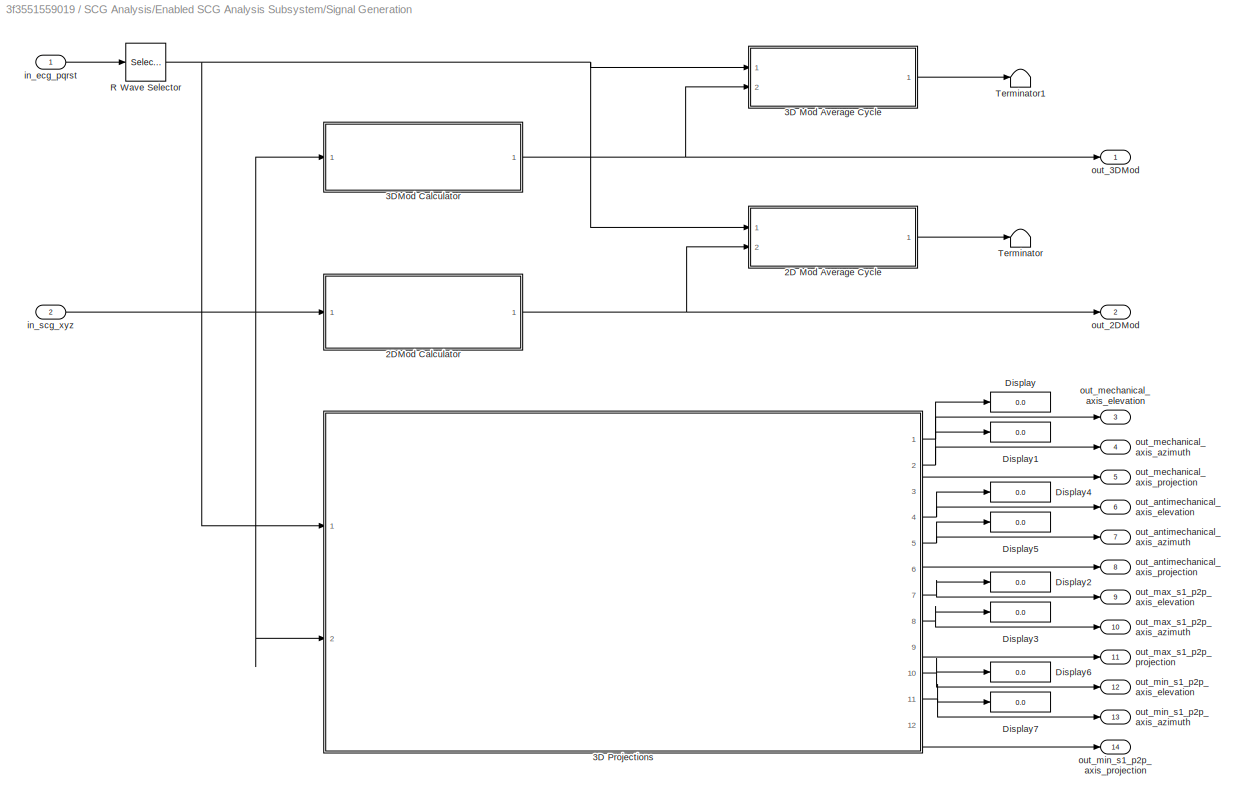
BLOCK [SubSystem] SCG Analysis/Enabled SCG Analysis Subsystem/Signal Generation
  Ports = [2, 14]
  RequestExecContextInheritance = off
BLOCK [SubSystem] SCG Analysis/Enabled SCG Analysis Subsystem/Signal Generation/2D Mod Average Cycle
  Ports = [2, 1]
  RequestExecContextInheritance = off
BLOCK [SubSystem] SCG Analysis/Enabled SCG Analysis Subsystem/Signal Generation/2D Mod Average Cycle/Average 2DMod Cycle Calculator
  ErrorFcn = Stateflow.Translate.translate
  NameLocation = top
  PermitHierarchicalResolution = ExplicitOnly
  Ports = [2, 1]
  RequestExecContextInheritance = off
  SFBlockType = MATLAB Function
  TreatAsAtomicUnit = on
BLOCK [Demux] SCG Analysis/Enabled SCG Analysis Subsystem/Signal Generation/2D Mod Average Cycle/Average 2DMod Cycle Calculator/ Demux 
  Outputs = 1
  Ports = [1, 1]
BLOCK [S-Function] SCG Analysis/Enabled SCG Analysis Subsystem/Signal Generation/2D Mod Average Cycle/Average 2DMod Cycle Calculator/ SFunction 
  EnableBusSupport = on
  FunctionName = sf_sfun
  PortCounts = [2 2]
  Ports = [2, 2]
  SFcnIsStateOwnerBlock = off
  SFunctionDeploymentMode = off
  Tag = Stateflow S-Function 7
BLOCK [Terminator] SCG Analysis/Enabled SCG Analysis Subsystem/Signal Generation/2D Mod Average Cycle/Average 2DMod Cycle Calculator/ Terminator 
BLOCK [Outport] SCG Analysis/Enabled SCG Analysis Subsystem/Signal Generation/2D Mod Average Cycle/Average 2DMod Cycle Calculator/avg_cycle
  VectorParamsAs1DForOutWhenUnconnected = off
BLOCK [Inport] SCG Analysis/Enabled SCG Analysis Subsystem/Signal Generation/2D Mod Average Cycle/Average 2DMod Cycle Calculator/r_pos
BLOCK [Inport] SCG Analysis/Enabled SCG Analysis Subsystem/Signal Generation/2D Mod Average Cycle/Average 2DMod Cycle Calculator/signal
  Port = 2
BLOCK [Inport] SCG Analysis/Enabled SCG Analysis Subsystem/Signal Generation/2D Mod Average Cycle/in_2DMod
  NameLocation = left
  Port = 2
BLOCK [Inport] SCG Analysis/Enabled SCG Analysis Subsystem/Signal Generation/2D Mod Average Cycle/in_r_pos
  NameLocation = left
BLOCK [Outport] SCG Analysis/Enabled SCG Analysis Subsystem/Signal Generation/2D Mod Average Cycle/out_2DMod_avgcycle
  NameLocation = right
  VectorParamsAs1DForOutWhenUnconnected = off
BLOCK [SubSystem] SCG Analysis/Enabled SCG Analysis Subsystem/Signal Generation/2DMod Calculator
  Ports = [1, 1]
  RequestExecContextInheritance = off
BLOCK [SubSystem] SCG Analysis/Enabled SCG Analysis Subsystem/Signal Generation/2DMod Calculator/2DMod Calculator
  Ports = [1, 1]
  RequestExecContextInheritance = off
BLOCK [Inport] SCG Analysis/Enabled SCG Analysis Subsystem/Signal Generation/2DMod Calculator/2DMod Calculator/2D Components
BLOCK [Outport] SCG Analysis/Enabled SCG Analysis Subsystem/Signal Generation/2DMod Calculator/2DMod Calculator/2D Modulus
  VectorParamsAs1DForOutWhenUnconnected = off
BLOCK [Sqrt] SCG Analysis/Enabled SCG Analysis Subsystem/Signal Generation/2DMod Calculator/2DMod Calculator/Square Root1
BLOCK [Math] SCG Analysis/Enabled SCG Analysis Subsystem/Signal Generation/2DMod Calculator/2DMod Calculator/Square1
  Operator = square
  Ports = [1, 1]
  SignedPower = on
BLOCK [Sum] SCG Analysis/Enabled SCG Analysis Subsystem/Signal Generation/2DMod Calculator/2DMod Calculator/Sum1
  CollapseDim = 2
  CollapseMode = Specified dimension
  IconShape = rectangular
  Inputs = +
  Ports = [1, 1]
BLOCK [Constant] SCG Analysis/Enabled SCG Analysis Subsystem/Signal Generation/2DMod Calculator/Constant
  Value = xyz2Dcombo
BLOCK [MultiPortSwitch] SCG Analysis/Enabled SCG Analysis Subsystem/Signal Generation/2DMod Calculator/Multiport Switch
  InputSameDT = off
  Ports = [4, 1]
  SaturateOnIntegerOverflow = off
BLOCK [Inport] SCG Analysis/Enabled SCG Analysis Subsystem/Signal Generation/2DMod Calculator/in_scg_xyz
BLOCK [Outport] SCG Analysis/Enabled SCG Analysis Subsystem/Signal Generation/2DMod Calculator/out_2DMod
  VectorParamsAs1DForOutWhenUnconnected = off
BLOCK [Selector] SCG Analysis/Enabled SCG Analysis Subsystem/Signal Generation/2DMod Calculator/xy Selector
  IndexOptions = Select all,Index vector (dialog)
  Indices = [1:min(analyses.ecg.RR)],[1 2]
  NumberOfDimensions = 2
  OutputSizes = 1,1
  Ports = [1, 1]
BLOCK [Selector] SCG Analysis/Enabled SCG Analysis Subsystem/Signal Generation/2DMod Calculator/xz Selector2
  IndexOptions = Select all,Index vector (dialog)
  Indices = [1:min(analyses.ecg.RR)],[1 3]
  NumberOfDimensions = 2
  OutputSizes = 1,1
  Ports = [1, 1]
BLOCK [Selector] SCG Analysis/Enabled SCG Analysis Subsystem/Signal Generation/2DMod Calculator/yz Selector1
  IndexOptions = Select all,Index vector (dialog)
  Indices = [1:min(analyses.ecg.RR)],[2 3]
  NumberOfDimensions = 2
  OutputSizes = 1,1
  Ports = [1, 1]
BLOCK [SubSystem] SCG Analysis/Enabled SCG Analysis Subsystem/Signal Generation/3D Mod Average Cycle
  Ports = [2, 1]
  RequestExecContextInheritance = off
BLOCK [SubSystem] SCG Analysis/Enabled SCG Analysis Subsystem/Signal Generation/3D Mod Average Cycle/Average 3DMod Cycle Calculator
  ErrorFcn = Stateflow.Translate.translate
  NameLocation = top
  PermitHierarchicalResolution = ExplicitOnly
  Ports = [2, 1]
  RequestExecContextInheritance = off
  SFBlockType = MATLAB Function
  TreatAsAtomicUnit = on
BLOCK [Demux] SCG Analysis/Enabled SCG Analysis Subsystem/Signal Generation/3D Mod Average Cycle/Average 3DMod Cycle Calculator/ Demux 
  Outputs = 1
  Ports = [1, 1]
BLOCK [S-Function] SCG Analysis/Enabled SCG Analysis Subsystem/Signal Generation/3D Mod Average Cycle/Average 3DMod Cycle Calculator/ SFunction 
  EnableBusSupport = on
  FunctionName = sf_sfun
  PortCounts = [2 2]
  Ports = [2, 2]
  SFcnIsStateOwnerBlock = off
  SFunctionDeploymentMode = off
  Tag = Stateflow S-Function 8
BLOCK [Terminator] SCG Analysis/Enabled SCG Analysis Subsystem/Signal Generation/3D Mod Average Cycle/Average 3DMod Cycle Calculator/ Terminator 
BLOCK [Outport] SCG Analysis/Enabled SCG Analysis Subsystem/Signal Generation/3D Mod Average Cycle/Average 3DMod Cycle Calculator/avg_cycle
  VectorParamsAs1DForOutWhenUnconnected = off
BLOCK [Inport] SCG Analysis/Enabled SCG Analysis Subsystem/Signal Generation/3D Mod Average Cycle/Average 3DMod Cycle Calculator/r_pos
BLOCK [Inport] SCG Analysis/Enabled SCG Analysis Subsystem/Signal Generation/3D Mod Average Cycle/Average 3DMod Cycle Calculator/signal
  Port = 2
BLOCK [Inport] SCG Analysis/Enabled SCG Analysis Subsystem/Signal Generation/3D Mod Average Cycle/in_3DMod
  NameLocation = left
  Port = 2
BLOCK [Inport] SCG Analysis/Enabled SCG Analysis Subsystem/Signal Generation/3D Mod Average Cycle/in_r_pos
  NameLocation = left
BLOCK [Outport] SCG Analysis/Enabled SCG Analysis Subsystem/Signal Generation/3D Mod Average Cycle/out_3DMod_avgcycle
  NameLocation = right
  VectorParamsAs1DForOutWhenUnconnected = off
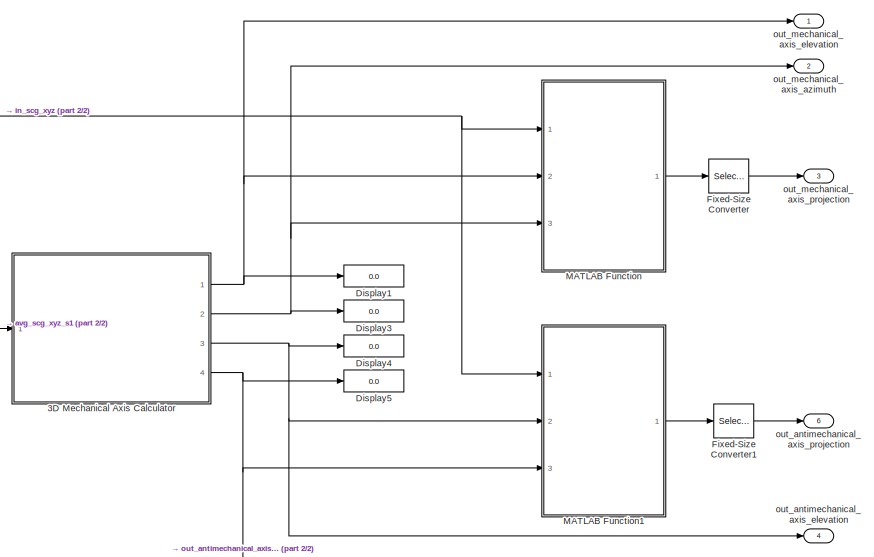
[diagram: SCG Analysis/Enabled SCG Analysis Subsystem/Signal Generation/3D Projections - part 1/2, top right region]
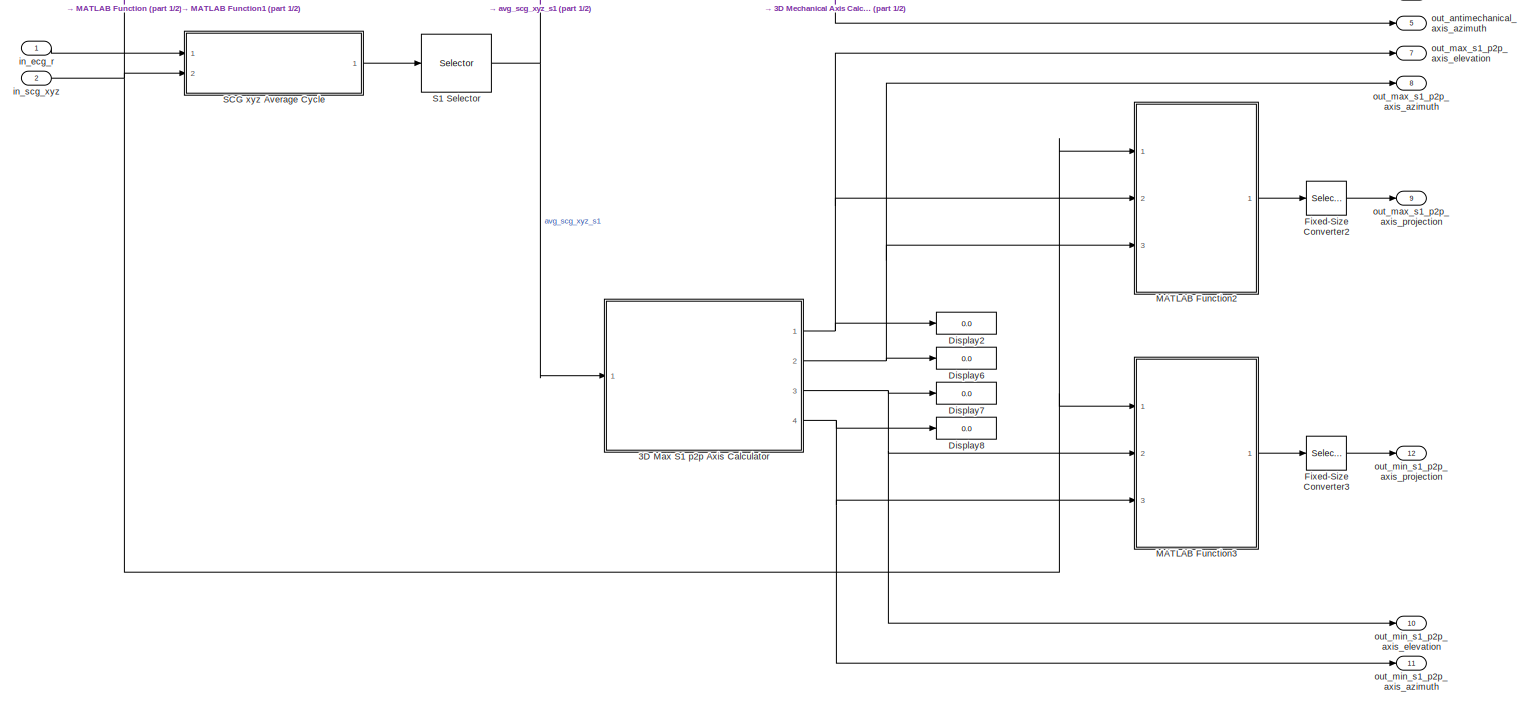
[diagram: SCG Analysis/Enabled SCG Analysis Subsystem/Signal Generation/3D Projections - part 2/2, full width, bottom band]
BLOCK [SubSystem] SCG Analysis/Enabled SCG Analysis Subsystem/Signal Generation/3D Projections
  Ports = [2, 12]
  RequestExecContextInheritance = off
BLOCK [SubSystem] SCG Analysis/Enabled SCG Analysis Subsystem/Signal Generation/3D Projections/3D Max S1 p2p Axis Calculator
  Ports = [1, 4]
  RequestExecContextInheritance = off
BLOCK [MATLABFcn] SCG Analysis/Enabled SCG Analysis Subsystem/Signal Generation/3D Projections/3D Max S1 p2p Axis Calculator/Max S1 P2P  Axis Finder 3D
  MATLABFcn = S1_p2p_angular_projection_3D_v2_1
  Output1D = off
  OutputDimensions = 4
  Ports = [1, 1]
BLOCK [Selector] SCG Analysis/Enabled SCG Analysis Subsystem/Signal Generation/3D Projections/3D Max S1 p2p Axis Calculator/Selector2
  IndexOptions = Index vector (dialog)
  Indices = [1]
  InputPortWidth = 4
  OutputSizes = 1
  Ports = [1, 1]
BLOCK [Selector] SCG Analysis/Enabled SCG Analysis Subsystem/Signal Generation/3D Projections/3D Max S1 p2p Axis Calculator/Selector3
  IndexOptions = Index vector (dialog)
  Indices = [2]
  InputPortWidth = 4
  OutputSizes = 1
  Ports = [1, 1]
BLOCK [Selector] SCG Analysis/Enabled SCG Analysis Subsystem/Signal Generation/3D Projections/3D Max S1 p2p Axis Calculator/Selector6
  IndexOptions = Index vector (dialog)
  Indices = [3]
  InputPortWidth = 4
  OutputSizes = 1
  Ports = [1, 1]
BLOCK [Selector] SCG Analysis/Enabled SCG Analysis Subsystem/Signal Generation/3D Projections/3D Max S1 p2p Axis Calculator/Selector7
  IndexOptions = Index vector (dialog)
  Indices = [4]
  InputPortWidth = 4
  OutputSizes = 1
  Ports = [1, 1]
BLOCK [Inport] SCG Analysis/Enabled SCG Analysis Subsystem/Signal Generation/3D Projections/3D Max S1 p2p Axis Calculator/avg_scg_xyz_s1
  NameLocation = left
BLOCK [Outport] SCG Analysis/Enabled SCG Analysis Subsystem/Signal Generation/3D Projections/3D Max S1 p2p Axis Calculator/out_antimech_axis_azimuth
  NameLocation = right
  Port = 4
BLOCK [Outport] SCG Analysis/Enabled SCG Analysis Subsystem/Signal Generation/3D Projections/3D Max S1 p2p Axis Calculator/out_antimech_axis_elevation
  NameLocation = right
  Port = 3
BLOCK [Outport] SCG Analysis/Enabled SCG Analysis Subsystem/Signal Generation/3D Projections/3D Max S1 p2p Axis Calculator/out_max_s1_axis_azimuth
  NameLocation = right
  Port = 2
BLOCK [Outport] SCG Analysis/Enabled SCG Analysis Subsystem/Signal Generation/3D Projections/3D Max S1 p2p Axis Calculator/out_max_s1_axis_elevation
  NameLocation = right
BLOCK [SubSystem] SCG Analysis/Enabled SCG Analysis Subsystem/Signal Generation/3D Projections/3D Mechanical Axis Calculator
  Ports = [1, 4]
  RequestExecContextInheritance = off
BLOCK [MATLABFcn] SCG Analysis/Enabled SCG Analysis Subsystem/Signal Generation/3D Projections/3D Mechanical Axis Calculator/Cardiac Mechanical Systolic Axis Finder 3D
  MATLABFcn = cardiac_mech_systolic_axis_finder_3D
  Output1D = off
  OutputDimensions = 4
  Ports = [1, 1]
BLOCK [Selector] SCG Analysis/Enabled SCG Analysis Subsystem/Signal Generation/3D Projections/3D Mechanical Axis Calculator/Selector
  IndexOptions = Index vector (dialog)
  Indices = [1]
  InputPortWidth = 4
  OutputSizes = 1
  Ports = [1, 1]
BLOCK [Selector] SCG Analysis/Enabled SCG Analysis Subsystem/Signal Generation/3D Projections/3D Mechanical Axis Calculator/Selector1
  IndexOptions = Index vector (dialog)
  Indices = [2]
  InputPortWidth = 4
  OutputSizes = 1
  Ports = [1, 1]
BLOCK [Selector] SCG Analysis/Enabled SCG Analysis Subsystem/Signal Generation/3D Projections/3D Mechanical Axis Calculator/Selector4
  IndexOptions = Index vector (dialog)
  Indices = [3]
  InputPortWidth = 4
  OutputSizes = 1
  Ports = [1, 1]
BLOCK [Selector] SCG Analysis/Enabled SCG Analysis Subsystem/Signal Generation/3D Projections/3D Mechanical Axis Calculator/Selector5
  IndexOptions = Index vector (dialog)
  Indices = [4]
  InputPortWidth = 4
  OutputSizes = 1
  Ports = [1, 1]
BLOCK [Inport] SCG Analysis/Enabled SCG Analysis Subsystem/Signal Generation/3D Projections/3D Mechanical Axis Calculator/in_avg_scg_xyz_s1
BLOCK [Outport] SCG Analysis/Enabled SCG Analysis Subsystem/Signal Generation/3D Projections/3D Mechanical Axis Calculator/out_antimech_axis_azimuth
  NameLocation = right
  Port = 4
BLOCK [Outport] SCG Analysis/Enabled SCG Analysis Subsystem/Signal Generation/3D Projections/3D Mechanical Axis Calculator/out_antimech_axis_elevation
  NameLocation = right
  Port = 3
BLOCK [Outport] SCG Analysis/Enabled SCG Analysis Subsystem/Signal Generation/3D Projections/3D Mechanical Axis Calculator/out_mech_axis_azimuth
  NameLocation = right
  Port = 2
BLOCK [Outport] SCG Analysis/Enabled SCG Analysis Subsystem/Signal Generation/3D Projections/3D Mechanical Axis Calculator/out_mech_axis_elevation
  NameLocation = right
BLOCK [Display] SCG Analysis/Enabled SCG Analysis Subsystem/Signal Generation/3D Projections/Display1
  Decimation = 1
  Ports = [1]
BLOCK [Display] SCG Analysis/Enabled SCG Analysis Subsystem/Signal Generation/3D Projections/Display2
  Decimation = 1
  Ports = [1]
BLOCK [Display] SCG Analysis/Enabled SCG Analysis Subsystem/Signal Generation/3D Projections/Display3
  Decimation = 1
  Ports = [1]
BLOCK [Display] SCG Analysis/Enabled SCG Analysis Subsystem/Signal Generation/3D Projections/Display4
  Decimation = 1
  Ports = [1]
BLOCK [Display] SCG Analysis/Enabled SCG Analysis Subsystem/Signal Generation/3D Projections/Display5
  Decimation = 1
  Ports = [1]
BLOCK [Display] SCG Analysis/Enabled SCG Analysis Subsystem/Signal Generation/3D Projections/Display6
  Decimation = 1
  Ports = [1]
BLOCK [Display] SCG Analysis/Enabled SCG Analysis Subsystem/Signal Generation/3D Projections/Display7
  Decimation = 1
  Ports = [1]
BLOCK [Display] SCG Analysis/Enabled SCG Analysis Subsystem/Signal Generation/3D Projections/Display8
  Decimation = 1
  Ports = [1]
BLOCK [Selector] SCG Analysis/Enabled SCG Analysis Subsystem/Signal Generation/3D Projections/Fixed-Size Converter
  IndexOptions = Index vector (dialog),Index vector (dialog)
  Indices = [1:param_tot_samples],[1]
  NumberOfDimensions = 2
  OutputSizes = 1,1
  Ports = [1, 1]
BLOCK [Selector] SCG Analysis/Enabled SCG Analysis Subsystem/Signal Generation/3D Projections/Fixed-Size Converter1
  IndexOptions = Index vector (dialog),Index vector (dialog)
  Indices = [1:param_tot_samples],[1]
  NumberOfDimensions = 2
  OutputSizes = 1,1
  Ports = [1, 1]
BLOCK [Selector] SCG Analysis/Enabled SCG Analysis Subsystem/Signal Generation/3D Projections/Fixed-Size Converter2
  IndexOptions = Index vector (dialog),Index vector (dialog)
  Indices = [1:param_tot_samples],[1]
  NumberOfDimensions = 2
  OutputSizes = 1,1
  Ports = [1, 1]
BLOCK [Selector] SCG Analysis/Enabled SCG Analysis Subsystem/Signal Generation/3D Projections/Fixed-Size Converter3
  IndexOptions = Index vector (dialog),Index vector (dialog)
  Indices = [1:param_tot_samples],[1]
  NumberOfDimensions = 2
  OutputSizes = 1,1
  Ports = [1, 1]
BLOCK [SubSystem] SCG Analysis/Enabled SCG Analysis Subsystem/Signal Generation/3D Projections/MATLAB Function
  ErrorFcn = Stateflow.Translate.translate
  PermitHierarchicalResolution = ExplicitOnly
  Ports = [3, 1]
  RequestExecContextInheritance = off
  SFBlockType = MATLAB Function
  TreatAsAtomicUnit = on
BLOCK [Demux] SCG Analysis/Enabled SCG Analysis Subsystem/Signal Generation/3D Projections/MATLAB Function/ Demux 
  Outputs = 1
  Ports = [1, 1]
BLOCK [S-Function] SCG Analysis/Enabled SCG Analysis Subsystem/Signal Generation/3D Projections/MATLAB Function/ SFunction 
  EnableBusSupport = on
  FunctionName = sf_sfun
  PortCounts = [3 2]
  Ports = [3, 2]
  SFcnIsStateOwnerBlock = off
  SFunctionDeploymentMode = off
  Tag = Stateflow S-Function 9
BLOCK [Terminator] SCG Analysis/Enabled SCG Analysis Subsystem/Signal Generation/3D Projections/MATLAB Function/ Terminator 
BLOCK [Inport] SCG Analysis/Enabled SCG Analysis Subsystem/Signal Generation/3D Projections/MATLAB Function/az_scg
  Port = 3
BLOCK [Inport] SCG Analysis/Enabled SCG Analysis Subsystem/Signal Generation/3D Projections/MATLAB Function/el_scg
  Port = 2
BLOCK [Outport] SCG Analysis/Enabled SCG Analysis Subsystem/Signal Generation/3D Projections/MATLAB Function/projection
BLOCK [Inport] SCG Analysis/Enabled SCG Analysis Subsystem/Signal Generation/3D Projections/MATLAB Function/scg_xyz
BLOCK [SubSystem] SCG Analysis/Enabled SCG Analysis Subsystem/Signal Generation/3D Projections/MATLAB Function1
  ErrorFcn = Stateflow.Translate.translate
  PermitHierarchicalResolution = ExplicitOnly
  Ports = [3, 1]
  RequestExecContextInheritance = off
  SFBlockType = MATLAB Function
  TreatAsAtomicUnit = on
BLOCK [Demux] SCG Analysis/Enabled SCG Analysis Subsystem/Signal Generation/3D Projections/MATLAB Function1/ Demux 
  Outputs = 1
  Ports = [1, 1]
BLOCK [S-Function] SCG Analysis/Enabled SCG Analysis Subsystem/Signal Generation/3D Projections/MATLAB Function1/ SFunction 
  EnableBusSupport = on
  FunctionName = sf_sfun
  PortCounts = [3 2]
  Ports = [3, 2]
  SFcnIsStateOwnerBlock = off
  SFunctionDeploymentMode = off
  Tag = Stateflow S-Function 10
BLOCK [Terminator] SCG Analysis/Enabled SCG Analysis Subsystem/Signal Generation/3D Projections/MATLAB Function1/ Terminator 
BLOCK [Inport] SCG Analysis/Enabled SCG Analysis Subsystem/Signal Generation/3D Projections/MATLAB Function1/az_scg
  Port = 3
BLOCK [Inport] SCG Analysis/Enabled SCG Analysis Subsystem/Signal Generation/3D Projections/MATLAB Function1/el_scg
  Port = 2
BLOCK [Outport] SCG Analysis/Enabled SCG Analysis Subsystem/Signal Generation/3D Projections/MATLAB Function1/projection
BLOCK [Inport] SCG Analysis/Enabled SCG Analysis Subsystem/Signal Generation/3D Projections/MATLAB Function1/scg_xyz
BLOCK [SubSystem] SCG Analysis/Enabled SCG Analysis Subsystem/Signal Generation/3D Projections/MATLAB Function2
  ErrorFcn = Stateflow.Translate.translate
  PermitHierarchicalResolution = ExplicitOnly
  Ports = [3, 1]
  RequestExecContextInheritance = off
  SFBlockType = MATLAB Function
  TreatAsAtomicUnit = on
BLOCK [Demux] SCG Analysis/Enabled SCG Analysis Subsystem/Signal Generation/3D Projections/MATLAB Function2/ Demux 
  Outputs = 1
  Ports = [1, 1]
BLOCK [S-Function] SCG Analysis/Enabled SCG Analysis Subsystem/Signal Generation/3D Projections/MATLAB Function2/ SFunction 
  EnableBusSupport = on
  FunctionName = sf_sfun
  PortCounts = [3 2]
  Ports = [3, 2]
  SFcnIsStateOwnerBlock = off
  SFunctionDeploymentMode = off
  Tag = Stateflow S-Function 11
BLOCK [Terminator] SCG Analysis/Enabled SCG Analysis Subsystem/Signal Generation/3D Projections/MATLAB Function2/ Terminator 
BLOCK [Inport] SCG Analysis/Enabled SCG Analysis Subsystem/Signal Generation/3D Projections/MATLAB Function2/az_scg
  Port = 3
BLOCK [Inport] SCG Analysis/Enabled SCG Analysis Subsystem/Signal Generation/3D Projections/MATLAB Function2/el_scg
  Port = 2
BLOCK [Outport] SCG Analysis/Enabled SCG Analysis Subsystem/Signal Generation/3D Projections/MATLAB Function2/projection
BLOCK [Inport] SCG Analysis/Enabled SCG Analysis Subsystem/Signal Generation/3D Projections/MATLAB Function2/scg_xyz
BLOCK [SubSystem] SCG Analysis/Enabled SCG Analysis Subsystem/Signal Generation/3D Projections/MATLAB Function3
  ErrorFcn = Stateflow.Translate.translate
  PermitHierarchicalResolution = ExplicitOnly
  Ports = [3, 1]
  RequestExecContextInheritance = off
  SFBlockType = MATLAB Function
  TreatAsAtomicUnit = on
BLOCK [Demux] SCG Analysis/Enabled SCG Analysis Subsystem/Signal Generation/3D Projections/MATLAB Function3/ Demux 
  Outputs = 1
  Ports = [1, 1]
BLOCK [S-Function] SCG Analysis/Enabled SCG Analysis Subsystem/Signal Generation/3D Projections/MATLAB Function3/ SFunction 
  EnableBusSupport = on
  FunctionName = sf_sfun
  PortCounts = [3 2]
  Ports = [3, 2]
  SFcnIsStateOwnerBlock = off
  SFunctionDeploymentMode = off
  Tag = Stateflow S-Function 12
BLOCK [Terminator] SCG Analysis/Enabled SCG Analysis Subsystem/Signal Generation/3D Projections/MATLAB Function3/ Terminator 
BLOCK [Inport] SCG Analysis/Enabled SCG Analysis Subsystem/Signal Generation/3D Projections/MATLAB Function3/az_scg
  Port = 3
BLOCK [Inport] SCG Analysis/Enabled SCG Analysis Subsystem/Signal Generation/3D Projections/MATLAB Function3/el_scg
  Port = 2
BLOCK [Outport] SCG Analysis/Enabled SCG Analysis Subsystem/Signal Generation/3D Projections/MATLAB Function3/projection
BLOCK [Inport] SCG Analysis/Enabled SCG Analysis Subsystem/Signal Generation/3D Projections/MATLAB Function3/scg_xyz
BLOCK [Selector] SCG Analysis/Enabled SCG Analysis Subsystem/Signal Generation/3D Projections/S1 Selector
  IndexOptions = Index vector (dialog),Index vector (dialog)
  Indices = [1:fs*0.2],[1 2 3]
  InputPortWidth = 3
  NumberOfDimensions = 2
  OutputSizes = 1,1
  Ports = [1, 1]
BLOCK [SubSystem] SCG Analysis/Enabled SCG Analysis Subsystem/Signal Generation/3D Projections/SCG xyz Average Cycle
  Ports = [2, 1]
  RequestExecContextInheritance = off
BLOCK [SubSystem] SCG Analysis/Enabled SCG Analysis Subsystem/Signal Generation/3D Projections/SCG xyz Average Cycle/Average SCGxyz Cycle Calculator
  ErrorFcn = Stateflow.Translate.translate
  NameLocation = top
  PermitHierarchicalResolution = ExplicitOnly
  Ports = [2, 1]
  RequestExecContextInheritance = off
  SFBlockType = MATLAB Function
  TreatAsAtomicUnit = on
BLOCK [Demux] SCG Analysis/Enabled SCG Analysis Subsystem/Signal Generation/3D Projections/SCG xyz Average Cycle/Average SCGxyz Cycle Calculator/ Demux 
  Outputs = 1
  Ports = [1, 1]
BLOCK [S-Function] SCG Analysis/Enabled SCG Analysis Subsystem/Signal Generation/3D Projections/SCG xyz Average Cycle/Average SCGxyz Cycle Calculator/ SFunction 
  EnableBusSupport = on
  FunctionName = sf_sfun
  PortCounts = [2 2]
  Ports = [2, 2]
  SFcnIsStateOwnerBlock = off
  SFunctionDeploymentMode = off
  Tag = Stateflow S-Function 15
BLOCK [Terminator] SCG Analysis/Enabled SCG Analysis Subsystem/Signal Generation/3D Projections/SCG xyz Average Cycle/Average SCGxyz Cycle Calculator/ Terminator 
BLOCK [Inport] SCG Analysis/Enabled SCG Analysis Subsystem/Signal Generation/3D Projections/SCG xyz Average Cycle/Average SCGxyz Cycle Calculator/r_pos
BLOCK [Inport] SCG Analysis/Enabled SCG Analysis Subsystem/Signal Generation/3D Projections/SCG xyz Average Cycle/Average SCGxyz Cycle Calculator/scgxyz
  Port = 2
BLOCK [Outport] SCG Analysis/Enabled SCG Analysis Subsystem/Signal Generation/3D Projections/SCG xyz Average Cycle/Average SCGxyz Cycle Calculator/scgxyz_avgcycle
  VectorParamsAs1DForOutWhenUnconnected = off
BLOCK [Constant] SCG Analysis/Enabled SCG Analysis Subsystem/Signal Generation/3D Projections/SCG xyz Average Cycle/Constant
BLOCK [Selector] SCG Analysis/Enabled SCG Analysis Subsystem/Signal Generation/3D Projections/SCG xyz Average Cycle/Fixed-Size Converter 2
  IndexOptions = Starting and ending indices (port),Index vector (dialog)
  Indices = [1:min(analyses.ecg.RR)],[1 2 3]
  NumberOfDimensions = 2
  OutputSizes = 1,1
  Ports = [2, 1]
BLOCK [SubSystem] SCG Analysis/Enabled SCG Analysis Subsystem/Signal Generation/3D Projections/SCG xyz Average Cycle/Min RR Calculator
  ErrorFcn = Stateflow.Translate.translate
  PermitHierarchicalResolution = ExplicitOnly
  Ports = [1, 1]
  RequestExecContextInheritance = off
  SFBlockType = MATLAB Function
  TreatAsAtomicUnit = on
BLOCK [Demux] SCG Analysis/Enabled SCG Analysis Subsystem/Signal Generation/3D Projections/SCG xyz Average Cycle/Min RR Calculator/ Demux 
  Outputs = 1
  Ports = [1, 1]
BLOCK [S-Function] SCG Analysis/Enabled SCG Analysis Subsystem/Signal Generation/3D Projections/SCG xyz Average Cycle/Min RR Calculator/ SFunction 
  EnableBusSupport = on
  FunctionName = sf_sfun
  PortCounts = [1 2]
  Ports = [1, 2]
  SFcnIsStateOwnerBlock = off
  SFunctionDeploymentMode = off
  Tag = Stateflow S-Function 16
BLOCK [Terminator] SCG Analysis/Enabled SCG Analysis Subsystem/Signal Generation/3D Projections/SCG xyz Average Cycle/Min RR Calculator/ Terminator 
BLOCK [Outport] SCG Analysis/Enabled SCG Analysis Subsystem/Signal Generation/3D Projections/SCG xyz Average Cycle/Min RR Calculator/min_rr
  VectorParamsAs1DForOutWhenUnconnected = off
BLOCK [Inport] SCG Analysis/Enabled SCG Analysis Subsystem/Signal Generation/3D Projections/SCG xyz Average Cycle/Min RR Calculator/r_pos
BLOCK [Mux] SCG Analysis/Enabled SCG Analysis Subsystem/Signal Generation/3D Projections/SCG xyz Average Cycle/Mux
  DisplayOption = bar
  Inputs = 2
  Ports = [2, 1]
BLOCK [Inport] SCG Analysis/Enabled SCG Analysis Subsystem/Signal Generation/3D Projections/SCG xyz Average Cycle/in_ecg_r
  NameLocation = left
BLOCK [Inport] SCG Analysis/Enabled SCG Analysis Subsystem/Signal Generation/3D Projections/SCG xyz Average Cycle/in_scg_xyz
  NameLocation = left
  Port = 2
BLOCK [Outport] SCG Analysis/Enabled SCG Analysis Subsystem/Signal Generation/3D Projections/SCG xyz Average Cycle/out_scg_xyz_avgcycle
  NameLocation = right
  VectorParamsAs1DForOutWhenUnconnected = off
BLOCK [Inport] SCG Analysis/Enabled SCG Analysis Subsystem/Signal Generation/3D Projections/in_ecg_r
  NameLocation = left
BLOCK [Inport] SCG Analysis/Enabled SCG Analysis Subsystem/Signal Generation/3D Projections/in_scg_xyz
  NameLocation = left
  Port = 2
BLOCK [Outport] SCG Analysis/Enabled SCG Analysis Subsystem/Signal Generation/3D Projections/out_antimechanical_axis_azimuth
  NameLocation = right
  Port = 5
BLOCK [Outport] SCG Analysis/Enabled SCG Analysis Subsystem/Signal Generation/3D Projections/out_antimechanical_axis_elevation
  NameLocation = right
  Port = 4
BLOCK [Outport] SCG Analysis/Enabled SCG Analysis Subsystem/Signal Generation/3D Projections/out_antimechanical_axis_projection
  NameLocation = right
  Port = 6
BLOCK [Outport] SCG Analysis/Enabled SCG Analysis Subsystem/Signal Generation/3D Projections/out_max_s1_p2p_axis_azimuth
  NameLocation = right
  Port = 8
BLOCK [Outport] SCG Analysis/Enabled SCG Analysis Subsystem/Signal Generation/3D Projections/out_max_s1_p2p_axis_elevation
  NameLocation = right
  Port = 7
BLOCK [Outport] SCG Analysis/Enabled SCG Analysis Subsystem/Signal Generation/3D Projections/out_max_s1_p2p_axis_projection
  NameLocation = right
  Port = 9
BLOCK [Outport] SCG Analysis/Enabled SCG Analysis Subsystem/Signal Generation/3D Projections/out_mechanical_axis_azimuth
  NameLocation = right
  Port = 2
BLOCK [Outport] SCG Analysis/Enabled SCG Analysis Subsystem/Signal Generation/3D Projections/out_mechanical_axis_elevation
  NameLocation = right
BLOCK [Outport] SCG Analysis/Enabled SCG Analysis Subsystem/Signal Generation/3D Projections/out_mechanical_axis_projection
  NameLocation = right
  Port = 3
BLOCK [Outport] SCG Analysis/Enabled SCG Analysis Subsystem/Signal Generation/3D Projections/out_min_s1_p2p_axis_azimuth
  NameLocation = right
  Port = 11
BLOCK [Outport] SCG Analysis/Enabled SCG Analysis Subsystem/Signal Generation/3D Projections/out_min_s1_p2p_axis_elevation
  NameLocation = right
  Port = 10
BLOCK [Outport] SCG Analysis/Enabled SCG Analysis Subsystem/Signal Generation/3D Projections/out_min_s1_p2p_axis_projection
  NameLocation = right
  Port = 12
BLOCK [SubSystem] SCG Analysis/Enabled SCG Analysis Subsystem/Signal Generation/3DMod Calculator
  Ports = [1, 1]
  RequestExecContextInheritance = off
BLOCK [Sqrt] SCG Analysis/Enabled SCG Analysis Subsystem/Signal Generation/3DMod Calculator/Square Root1
BLOCK [Math] SCG Analysis/Enabled SCG Analysis Subsystem/Signal Generation/3DMod Calculator/Square1
  Operator = square
  Ports = [1, 1]
  SignedPower = on
BLOCK [Sum] SCG Analysis/Enabled SCG Analysis Subsystem/Signal Generation/3DMod Calculator/Sum1
  CollapseDim = 2
  CollapseMode = Specified dimension
  IconShape = rectangular
  Inputs = +
  Ports = [1, 1]
BLOCK [Inport] SCG Analysis/Enabled SCG Analysis Subsystem/Signal Generation/3DMod Calculator/in_scgxyz
BLOCK [Outport] SCG Analysis/Enabled SCG Analysis Subsystem/Signal Generation/3DMod Calculator/out_3DMod
  VectorParamsAs1DForOutWhenUnconnected = off
BLOCK [Display] SCG Analysis/Enabled SCG Analysis Subsystem/Signal Generation/Display
  Decimation = 1
  Ports = [1]
BLOCK [Display] SCG Analysis/Enabled SCG Analysis Subsystem/Signal Generation/Display1
  Decimation = 1
  Ports = [1]
BLOCK [Display] SCG Analysis/Enabled SCG Analysis Subsystem/Signal Generation/Display2
  Decimation = 1
  Ports = [1]
BLOCK [Display] SCG Analysis/Enabled SCG Analysis Subsystem/Signal Generation/Display3
  Decimation = 1
  Ports = [1]
BLOCK [Display] SCG Analysis/Enabled SCG Analysis Subsystem/Signal Generation/Display4
  Decimation = 1
  Ports = [1]
BLOCK [Display] SCG Analysis/Enabled SCG Analysis Subsystem/Signal Generation/Display5
  Decimation = 1
  Ports = [1]
BLOCK [Display] SCG Analysis/Enabled SCG Analysis Subsystem/Signal Generation/Display6
  Decimation = 1
  Ports = [1]
BLOCK [Display] SCG Analysis/Enabled SCG Analysis Subsystem/Signal Generation/Display7
  Decimation = 1
  Ports = [1]
BLOCK [Selector] SCG Analysis/Enabled SCG Analysis Subsystem/Signal Generation/R Wave Selector
  IndexOptions = Select all,Index vector (dialog)
  Indices = [1 3],3
  InputPortWidth = 3
  NumberOfDimensions = 2
  OutputSizes = 1,1
  Ports = [1, 1]
BLOCK [Terminator] SCG Analysis/Enabled SCG Analysis Subsystem/Signal Generation/Terminator
BLOCK [Terminator] SCG Analysis/Enabled SCG Analysis Subsystem/Signal Generation/Terminator1
BLOCK [Inport] SCG Analysis/Enabled SCG Analysis Subsystem/Signal Generation/in_ecg_pqrst
BLOCK [Inport] SCG Analysis/Enabled SCG Analysis Subsystem/Signal Generation/in_scg_xyz
  Port = 2
BLOCK [Outport] SCG Analysis/Enabled SCG Analysis Subsystem/Signal Generation/out_2DMod
  NameLocation = right
  Port = 2
BLOCK [Outport] SCG Analysis/Enabled SCG Analysis Subsystem/Signal Generation/out_3DMod
  NameLocation = right
BLOCK [Outport] SCG Analysis/Enabled SCG Analysis Subsystem/Signal Generation/out_antimechanical_axis_azimuth
  NameLocation = right
  Port = 7
BLOCK [Outport] SCG Analysis/Enabled SCG Analysis Subsystem/Signal Generation/out_antimechanical_axis_elevation
  NameLocation = right
  Port = 6
BLOCK [Outport] SCG Analysis/Enabled SCG Analysis Subsystem/Signal Generation/out_antimechanical_axis_projection
  NameLocation = right
  Port = 8
BLOCK [Outport] SCG Analysis/Enabled SCG Analysis Subsystem/Signal Generation/out_max_s1_p2p_axis_azimuth
  NameLocation = right
  Port = 10
BLOCK [Outport] SCG Analysis/Enabled SCG Analysis Subsystem/Signal Generation/out_max_s1_p2p_axis_elevation
  NameLocation = right
  Port = 9
BLOCK [Outport] SCG Analysis/Enabled SCG Analysis Subsystem/Signal Generation/out_max_s1_p2p_projection
  NameLocation = right
  Port = 11
BLOCK [Outport] SCG Analysis/Enabled SCG Analysis Subsystem/Signal Generation/out_mechanical_axis_azimuth
  NameLocation = right
  Port = 4
BLOCK [Outport] SCG Analysis/Enabled SCG Analysis Subsystem/Signal Generation/out_mechanical_axis_elevation
  NameLocation = right
  Port = 3
BLOCK [Outport] SCG Analysis/Enabled SCG Analysis Subsystem/Signal Generation/out_mechanical_axis_projection
  NameLocation = right
  Port = 5
BLOCK [Outport] SCG Analysis/Enabled SCG Analysis Subsystem/Signal Generation/out_min_s1_p2p_axis_azimuth
  NameLocation = right
  Port = 13
BLOCK [Outport] SCG Analysis/Enabled SCG Analysis Subsystem/Signal Generation/out_min_s1_p2p_axis_elevation
  NameLocation = right
  Port = 12
BLOCK [Outport] SCG Analysis/Enabled SCG Analysis Subsystem/Signal Generation/out_min_s1_p2p_axis_projection
  NameLocation = right
  Port = 14
BLOCK [SubSystem] SCG Analysis/Enabled SCG Analysis Subsystem/Signal Metric Characterization
  Ports = [2, 1]
  RequestExecContextInheritance = off
BLOCK [Outport] SCG Analysis/Enabled SCG Analysis Subsystem/Signal Metric Characterization/Out1
BLOCK [Display] SCG Analysis/Enabled SCG Analysis Subsystem/Signal Metric Characterization/SCG xyz Variance
  Decimation = 1
  Ports = [1]
BLOCK [Reference] SCG Analysis/Enabled SCG Analysis Subsystem/Signal Metric Characterization/Variance  REF=dspstat3/Variance
  Ports = [1, 1]
  SourceBlock = dspstat3/Variance
  SourceProductBaseCode = DS
  SourceType = Variance
  UserDataPersistent = on
BLOCK [Inport] SCG Analysis/Enabled SCG Analysis Subsystem/Signal Metric Characterization/in_ecg_pqrst
  NameLocation = left
BLOCK [Inport] SCG Analysis/Enabled SCG Analysis Subsystem/Signal Metric Characterization/in_scg_xyz
  NameLocation = left
  Port = 2
BLOCK [Inport] SCG Analysis/Enabled SCG Analysis Subsystem/in_ecg_pqrst
  NameLocation = left
BLOCK [Inport] SCG Analysis/Enabled SCG Analysis Subsystem/in_scg_xyz
  NameLocation = left
  Port = 2
BLOCK [Outport] SCG Analysis/Enabled SCG Analysis Subsystem/out_2DMod
  NameLocation = right
  Port = 2
  VectorParamsAs1DForOutWhenUnconnected = off
BLOCK [Outport] SCG Analysis/Enabled SCG Analysis Subsystem/out_3DAntiMechAxis_azimuth
  NameLocation = right
  Port = 7
  VectorParamsAs1DForOutWhenUnconnected = off
BLOCK [Outport] SCG Analysis/Enabled SCG Analysis Subsystem/out_3DAntiMechAxis_elevation
  NameLocation = right
  Port = 6
  VectorParamsAs1DForOutWhenUnconnected = off
BLOCK [Outport] SCG Analysis/Enabled SCG Analysis Subsystem/out_3DAntiMechAxis_projection
  NameLocation = right
  Port = 8
  VectorParamsAs1DForOutWhenUnconnected = off
BLOCK [Outport] SCG Analysis/Enabled SCG Analysis Subsystem/out_3DMaxS1p2pAxis_azimuth
  NameLocation = right
  Port = 10
  VectorParamsAs1DForOutWhenUnconnected = off
BLOCK [Outport] SCG Analysis/Enabled SCG Analysis Subsystem/out_3DMaxS1p2pAxis_elevation
  NameLocation = right
  Port = 9
  VectorParamsAs1DForOutWhenUnconnected = off
BLOCK [Outport] SCG Analysis/Enabled SCG Analysis Subsystem/out_3DMaxS1p2pAxis_projection
  NameLocation = right
  Port = 11
  VectorParamsAs1DForOutWhenUnconnected = off
BLOCK [Outport] SCG Analysis/Enabled SCG Analysis Subsystem/out_3DMechAxis_azimuth
  NameLocation = right
  Port = 4
  VectorParamsAs1DForOutWhenUnconnected = off
BLOCK [Outport] SCG Analysis/Enabled SCG Analysis Subsystem/out_3DMechAxis_elevation
  NameLocation = right
  Port = 3
  VectorParamsAs1DForOutWhenUnconnected = off
BLOCK [Outport] SCG Analysis/Enabled SCG Analysis Subsystem/out_3DMechAxis_projection
  NameLocation = right
  Port = 5
  VectorParamsAs1DForOutWhenUnconnected = off
BLOCK [Outport] SCG Analysis/Enabled SCG Analysis Subsystem/out_3DMinS1p2pAxis_azimuth
  NameLocation = right
  Port = 13
  VectorParamsAs1DForOutWhenUnconnected = off
BLOCK [Outport] SCG Analysis/Enabled SCG Analysis Subsystem/out_3DMinS1p2pAxis_elevation
  NameLocation = right
  Port = 12
  VectorParamsAs1DForOutWhenUnconnected = off
BLOCK [Outport] SCG Analysis/Enabled SCG Analysis Subsystem/out_3DMinS1p2pAxis_projection
  NameLocation = right
  Port = 14
  VectorParamsAs1DForOutWhenUnconnected = off
BLOCK [Outport] SCG Analysis/Enabled SCG Analysis Subsystem/out_3DMod
  NameLocation = right
  VectorParamsAs1DForOutWhenUnconnected = off
BLOCK [Outport] SCG Analysis/Enabled SCG Analysis Subsystem/out_average_cycle_cycle_max//median_diameter
  NameLocation = right
  Port = 20
  VectorParamsAs1DForOutWhenUnconnected = off
BLOCK [Outport] SCG Analysis/Enabled SCG Analysis Subsystem/out_average_cycle_diameter_over_volume
  NameLocation = right
  Port = 16
  VectorParamsAs1DForOutWhenUnconnected = off
BLOCK [Outport] SCG Analysis/Enabled SCG Analysis Subsystem/out_average_cycle_max//min_diameter
  NameLocation = right
  Port = 18
  VectorParamsAs1DForOutWhenUnconnected = off
BLOCK [Outport] SCG Analysis/Enabled SCG Analysis Subsystem/out_average_diameter_over_volume
  NameLocation = right
  Port = 15
  VectorParamsAs1DForOutWhenUnconnected = off
BLOCK [Outport] SCG Analysis/Enabled SCG Analysis Subsystem/out_average_max//median_diameter
  NameLocation = right
  Port = 19
  VectorParamsAs1DForOutWhenUnconnected = off
BLOCK [Outport] SCG Analysis/Enabled SCG Analysis Subsystem/out_average_max//min_diameter
  NameLocation = right
  Port = 17
  VectorParamsAs1DForOutWhenUnconnected = off
BLOCK [Outport] SCG Analysis/Enabled SCG Analysis Subsystem/out_scg_xyz_variance
  NameLocation = right
  Port = 21
  VectorParamsAs1DForOutWhenUnconnected = off
BLOCK [Width] SCG Analysis/Width 
BLOCK [Inport] SCG Analysis/in_ecg_pqrst
BLOCK [Inport] SCG Analysis/in_scg_xyz
  Port = 2
BLOCK [Outport] SCG Analysis/out_2DMod
  NameLocation = right
  Port = 2
  VectorParamsAs1DForOutWhenUnconnected = off
BLOCK [Outport] SCG Analysis/out_3DAnis_average_cycle_diameter_over_volume
  NameLocation = right
  Port = 16
  VectorParamsAs1DForOutWhenUnconnected = off
BLOCK [Outport] SCG Analysis/out_3DAnis_average_cycle_max//median_diameter
  NameLocation = right
  Port = 19
  VectorParamsAs1DForOutWhenUnconnected = off
BLOCK [Outport] SCG Analysis/out_3DAnis_average_cycle_max//min_diameter
  NameLocation = right
  Port = 18
  VectorParamsAs1DForOutWhenUnconnected = off
BLOCK [Outport] SCG Analysis/out_3DAnis_average_diameter_over_volume
  NameLocation = right
  Port = 15
  VectorParamsAs1DForOutWhenUnconnected = off
BLOCK [Outport] SCG Analysis/out_3DAnis_average_max//median_diameter
  NameLocation = right
  Port = 20
  VectorParamsAs1DForOutWhenUnconnected = off
BLOCK [Outport] SCG Analysis/out_3DAnis_average_max//min_diameter
  NameLocation = right
  Port = 17
  VectorParamsAs1DForOutWhenUnconnected = off
BLOCK [Outport] SCG Analysis/out_3DAntiMechAxis_azimuth
  NameLocation = right
  Port = 7
  VectorParamsAs1DForOutWhenUnconnected = off
BLOCK [Outport] SCG Analysis/out_3DAntiMechAxis_elevation
  NameLocation = right
  Port = 6
  VectorParamsAs1DForOutWhenUnconnected = off
BLOCK [Outport] SCG Analysis/out_3DAntiMechAxis_projection
  NameLocation = right
  Port = 8
  VectorParamsAs1DForOutWhenUnconnected = off
BLOCK [Outport] SCG Analysis/out_3DMaxS1p2pAxis_azimuth
  NameLocation = right
  Port = 10
  VectorParamsAs1DForOutWhenUnconnected = off
BLOCK [Outport] SCG Analysis/out_3DMaxS1p2pAxis_elevation
  NameLocation = right
  Port = 9
  VectorParamsAs1DForOutWhenUnconnected = off
BLOCK [Outport] SCG Analysis/out_3DMaxS1p2pAxis_projection
  NameLocation = right
  Port = 11
  VectorParamsAs1DForOutWhenUnconnected = off
BLOCK [Outport] SCG Analysis/out_3DMechAxis_azimuth
  NameLocation = right
  Port = 4
  VectorParamsAs1DForOutWhenUnconnected = off
BLOCK [Outport] SCG Analysis/out_3DMechAxis_elevation
  NameLocation = right
  Port = 3
  VectorParamsAs1DForOutWhenUnconnected = off
BLOCK [Outport] SCG Analysis/out_3DMechAxis_projection
  NameLocation = right
  Port = 5
  VectorParamsAs1DForOutWhenUnconnected = off
BLOCK [Outport] SCG Analysis/out_3DMinS1p2pAxis_azimuth
  NameLocation = right
  Port = 13
  VectorParamsAs1DForOutWhenUnconnected = off
BLOCK [Outport] SCG Analysis/out_3DMinS1p2pAxis_elevation
  NameLocation = right
  Port = 12
  VectorParamsAs1DForOutWhenUnconnected = off
BLOCK [Outport] SCG Analysis/out_3DMinS1p2pAxis_projection
  NameLocation = right
  Port = 14
  VectorParamsAs1DForOutWhenUnconnected = off
BLOCK [Outport] SCG Analysis/out_3DMod
  NameLocation = right
  VectorParamsAs1DForOutWhenUnconnected = off
BLOCK [Outport] SCG Analysis/out_scg_xyz_variance
  NameLocation = right
  Port = 21
  VectorParamsAs1DForOutWhenUnconnected = off
BLOCK [SubSystem] SCG Preprocessing
  Ports = [1, 1]
  RequestExecContextInheritance = off
BLOCK [SubSystem] SCG Preprocessing/Enabled SCG Preprocessing Subsystem
  Ports = [0, 1, 1]
  RequestExecContextInheritance = off
  TreatAsAtomicUnit = on
BLOCK [Constant] SCG Preprocessing/Enabled SCG Preprocessing Subsystem/Constant
  Value = fs
BLOCK [SubSystem] SCG Preprocessing/Enabled SCG Preprocessing Subsystem/Filtfiltering
  Ports = [1, 1]
  RequestExecContextInheritance = off
BLOCK [Inport] SCG Preprocessing/Enabled SCG Preprocessing Subsystem/Filtfiltering/ input SCG
BLOCK [SubSystem] SCG Preprocessing/Enabled SCG Preprocessing Subsystem/Filtfiltering/Bandpass Filter 1
  CopyFcn = fdesignblkfcn(gcbh, {'CopyFcn'});
  DialogController = fdesignblkfcn
  InitFcn = fdesignblkfcn(gcbh, {'InitFcn'});
  Ports = [1, 1]
  RequestExecContextInheritance = off
  UserDataPersistent = on
BLOCK [DiscreteFir] SCG Preprocessing/Enabled SCG Preprocessing Subsystem/Filtfiltering/Bandpass Filter 1/Generated Filter Block
  Coefficients = [-0.0141280809748904439 0.00296128789229228515 0.00257104999710804256 0.00216178345802768047 0.00175552729414372999 0.00135185618919184472 0.000971465225508600858 0.000611761661220453987 0.000291406420521167497 4.82187739932540826e-06 -0.000231481095028417821 -0.000426883300566277893 -0.000566810793415693445 -0.000665092291782963183 -0.000708283395739488578 -0.000716103852974601593 -0.000671547633...<+17305ch>
  InputPortMap = u0
  InputProcessing = Columns as channels (frame based)
  OutputPortMap = o0
  Ports = [1, 1]
  Tag = BlockMethodSubSystem
BLOCK [Inport] SCG Preprocessing/Enabled SCG Preprocessing Subsystem/Filtfiltering/Bandpass Filter 1/In
BLOCK [Outport] SCG Preprocessing/Enabled SCG Preprocessing Subsystem/Filtfiltering/Bandpass Filter 1/Out
  VectorParamsAs1DForOutWhenUnconnected = off
BLOCK [SubSystem] SCG Preprocessing/Enabled SCG Preprocessing Subsystem/Filtfiltering/Bandpass Filter 2
  CopyFcn = fdesignblkfcn(gcbh, {'CopyFcn'});
  DialogController = fdesignblkfcn
  InitFcn = fdesignblkfcn(gcbh, {'InitFcn'});
  Ports = [1, 1]
  RequestExecContextInheritance = off
  UserDataPersistent = on
BLOCK [DiscreteFir] SCG Preprocessing/Enabled SCG Preprocessing Subsystem/Filtfiltering/Bandpass Filter 2/Generated Filter Block
  Coefficients = [-0.0141280809748904439 0.00296128789229228515 0.00257104999710804256 0.00216178345802768047 0.00175552729414372999 0.00135185618919184472 0.000971465225508600858 0.000611761661220453987 0.000291406420521167497 4.82187739932540826e-06 -0.000231481095028417821 -0.000426883300566277893 -0.000566810793415693445 -0.000665092291782963183 -0.000708283395739488578 -0.000716103852974601593 -0.000671547633...<+17305ch>
  InputPortMap = u0
  InputProcessing = Columns as channels (frame based)
  OutputPortMap = o0
  Ports = [1, 1]
  Tag = BlockMethodSubSystem
BLOCK [Inport] SCG Preprocessing/Enabled SCG Preprocessing Subsystem/Filtfiltering/Bandpass Filter 2/In
BLOCK [Outport] SCG Preprocessing/Enabled SCG Preprocessing Subsystem/Filtfiltering/Bandpass Filter 2/Out
  VectorParamsAs1DForOutWhenUnconnected = off
BLOCK [DSPFlip] SCG Preprocessing/Enabled SCG Preprocessing Subsystem/Filtfiltering/Flip
BLOCK [DSPFlip] SCG Preprocessing/Enabled SCG Preprocessing Subsystem/Filtfiltering/Flip1
BLOCK [Outport] SCG Preprocessing/Enabled SCG Preprocessing Subsystem/Filtfiltering/filtfiltered SCG
  VectorParamsAs1DForOutWhenUnconnected = off
BLOCK [SubSystem] SCG Preprocessing/Enabled SCG Preprocessing Subsystem/Plotting
  ErrorFcn = Stateflow.Translate.translate
  PermitHierarchicalResolution = ExplicitOnly
  Ports = [3]
  RequestExecContextInheritance = off
  SFBlockType = MATLAB Function
  TreatAsAtomicUnit = on
BLOCK [Demux] SCG Preprocessing/Enabled SCG Preprocessing Subsystem/Plotting/ Demux 
  Outputs = 1
  Ports = [1, 1]
BLOCK [S-Function] SCG Preprocessing/Enabled SCG Preprocessing Subsystem/Plotting/ SFunction 
  EnableBusSupport = on
  FunctionName = sf_sfun
  PortCounts = [3 1]
  Ports = [3, 1]
  SFcnIsStateOwnerBlock = off
  SFunctionDeploymentMode = off
  Tag = Stateflow S-Function 5
BLOCK [Terminator] SCG Preprocessing/Enabled SCG Preprocessing Subsystem/Plotting/ Terminator 
BLOCK [Inport] SCG Preprocessing/Enabled SCG Preprocessing Subsystem/Plotting/fs
  Port = 3
BLOCK [Inport] SCG Preprocessing/Enabled SCG Preprocessing Subsystem/Plotting/preprocessed_scg_xyz
BLOCK [Inport] SCG Preprocessing/Enabled SCG Preprocessing Subsystem/Plotting/raw_scg_xyz
  Port = 2
BLOCK [SpectrumAnalyzer] SCG Preprocessing/Enabled SCG Preprocessing Subsystem/SCG Preprocessing Input (Frequency)
  Commented = on
  Ports = [1]
  ScopeSpecificationString = spbscopes.SpectrumAnalyzerBlockCfg('CurrentConfiguration', extmgr.ConfigurationSet(extmgr.Configuration('Core','General UI',true),extmgr.Configuration('Core','Source UI',true),extmgr.Configuration('Sources','WiredSimulink',true),extmgr.Configuration('Sources','SimulinkEvent',false),extmgr.Configuration('Sources','Simulink',false),extmgr.Configuration('Sources','SPTool',false),extmgr.Configuration(...<+3857ch>
BLOCK [Scope] SCG Preprocessing/Enabled SCG Preprocessing Subsystem/SCG Preprocessing Input (Time)
  Commented = on
  Floating = off
  NumInputPorts = 1
  Ports = [1]
  ScopeSpecificationString = Simulink.scopes.TimeScopeBlockCfg('CurrentConfiguration', extmgr.ConfigurationSet(extmgr.Configuration('Core','General UI',true),extmgr.Configuration('Core','Source UI',true),extmgr.Configuration('Sources','WiredSimulink',true,'DataLoggingMaxPoints','tot_samples','DataLoggingVariableName','ScopeData3'),extmgr.Configuration('Visuals','Time Domain',true,'InputProcessing','FrameProcessing','Serialize...<+1769ch>
BLOCK [SpectrumAnalyzer] SCG Preprocessing/Enabled SCG Preprocessing Subsystem/SCG Preprocessing Output (Frequency)
  Commented = on
  Ports = [1]
  ScopeSpecificationString = spbscopes.SpectrumAnalyzerBlockCfg('CurrentConfiguration', extmgr.ConfigurationSet(extmgr.Configuration('Core','General UI',true),extmgr.Configuration('Core','Source UI',true),extmgr.Configuration('Sources','WiredSimulink',true),extmgr.Configuration('Sources','SimulinkEvent',false),extmgr.Configuration('Sources','Simulink',false),extmgr.Configuration('Sources','SPTool',false),extmgr.Configuration(...<+3927ch>
BLOCK [Scope] SCG Preprocessing/Enabled SCG Preprocessing Subsystem/SCG Preprocessing Output (Time)
  Commented = on
  Floating = off
  NumInputPorts = 1
  Ports = [1]
  ScopeSpecificationString = Simulink.scopes.TimeScopeBlockCfg('CurrentConfiguration', extmgr.ConfigurationSet(extmgr.Configuration('Core','General UI',true),extmgr.Configuration('Core','Source UI',true),extmgr.Configuration('Sources','WiredSimulink',true,'DataLoggingMaxPoints','tot_samples'),extmgr.Configuration('Visuals','Time Domain',true,'InputProcessing','FrameProcessing','SerializedDisplays',{struct('MinYLimReal','-50.6...<+1764ch>
BLOCK [SubSystem] SCG Preprocessing/Enabled SCG Preprocessing Subsystem/To Workspace: Processed SCGxyz
  Ports = [1]
  RequestExecContextInheritance = off
BLOCK [Inport] SCG Preprocessing/Enabled SCG Preprocessing Subsystem/To Workspace: Processed SCGxyz/In1
BLOCK [SubSystem] SCG Preprocessing/Enabled SCG Preprocessing Subsystem/To Workspace: Processed SCGxyz/To Workspace SCG Enabled Subsystem
  Ports = [1, 0, 1]
  RequestExecContextInheritance = off
  TreatAsAtomicUnit = on
BLOCK [EnablePort] SCG Preprocessing/Enabled SCG Preprocessing Subsystem/To Workspace: Processed SCGxyz/To Workspace SCG Enabled Subsystem/Enable
  Ports = []
BLOCK [Inport] SCG Preprocessing/Enabled SCG Preprocessing Subsystem/To Workspace: Processed SCGxyz/To Workspace SCG Enabled Subsystem/In1
BLOCK [ToWorkspace] SCG Preprocessing/Enabled SCG Preprocessing Subsystem/To Workspace: Processed SCGxyz/To Workspace SCG Enabled Subsystem/To Workspace SCG
  FixptAsFi = on
  MaxDataPoints = inf
  Ports = [1]
  SampleTime = -1
  SaveFormat = Structure
  VariableName = out_scg_xyz_preprocessing
BLOCK [Gain] SCG Preprocessing/Enabled SCG Preprocessing Subsystem/V to mg Conversion
  Gain = param_scg_gain_mg
BLOCK [EnablePort] SCG Preprocessing/Enabled SCG Preprocessing Subsystem/in_scg_xyz
  Ports = [0, 1]
  ShowOutputPort = on
BLOCK [Outport] SCG Preprocessing/Enabled SCG Preprocessing Subsystem/out_preprocessed_scg_xyz
  VectorParamsAs1DForOutWhenUnconnected = off
BLOCK [Inport] SCG Preprocessing/in_raw_scg_xyz
BLOCK [Outport] SCG Preprocessing/out_preprocessed_scg_xyz
  VectorParamsAs1DForOutWhenUnconnected = off
BLOCK [Terminator] Terminator
  Commented = on
BLOCK [Terminator] Terminator1
  Commented = on
BLOCK [Terminator] Terminator10
  Commented = on
BLOCK [Terminator] Terminator11
  Commented = on
BLOCK [Terminator] Terminator12
  Commented = on
BLOCK [Terminator] Terminator13
  Commented = on
BLOCK [Terminator] Terminator14
  Commented = on
BLOCK [Terminator] Terminator15
  Commented = on
BLOCK [Terminator] Terminator16
  Commented = on
BLOCK [Terminator] Terminator17
  Commented = on
BLOCK [Terminator] Terminator18
  Commented = on
BLOCK [Terminator] Terminator19
  Commented = on
BLOCK [Terminator] Terminator2
  Commented = on
BLOCK [Terminator] Terminator20
  Commented = on
BLOCK [Terminator] Terminator3
  Commented = on
BLOCK [Terminator] Terminator4
  Commented = on
BLOCK [Terminator] Terminator5
  Commented = on
BLOCK [Terminator] Terminator6
  Commented = on
BLOCK [Terminator] Terminator7
  Commented = on
BLOCK [Terminator] Terminator8
  Commented = on
BLOCK [Terminator] Terminator9
  Commented = on
BLOCK [Inport] in_ecg
  NameLocation = left
  SampleTime = 1/fs
BLOCK [Inport] in_scg_x
  NameLocation = left
  Port = 2
  SampleTime = 1/fs
BLOCK [Inport] in_scg_y
  NameLocation = left
  Port = 3
  SampleTime = 1/fs
BLOCK [Inport] in_scg_z
  NameLocation = left
  Port = 4
  SampleTime = 1/fs
ANNOTATION (root): Check filter response if parameters are changed: we want low passband ripples and sharp roll-offs
ANNOTATION ECG Analysis/Enabled ECG Analysis Subsystem: The subsystem is only enabled when it receives a (non-zero) signal
ANNOTATION ECG Analysis/Enabled ECG Analysis Subsystem/Assign To Workspace: ECG PQRST/Enabled To Workspace ECG PQRST: Make sure the funtion expects input dimensions of appropriate size.
ANNOTATION ECG Analysis/Enabled ECG Analysis Subsystem/Assign To Workspace: ECG PQRST/Enabled To Workspace ECG PQRST: The subsystem is only enabled when it receives a (non-zero) signal
ANNOTATION ECG Analysis/Enabled ECG Analysis Subsystem/Assign To Workspace: Num Cycles/Enabled To Workspace ECG Num Cycles: Make sure the funtion expects input dimensions of appropriate size.
ANNOTATION ECG Analysis/Enabled ECG Analysis Subsystem/Assign To Workspace: Num Cycles/Enabled To Workspace ECG Num Cycles: The subsystem is only enabled when it receives a (non-zero) signal
ANNOTATION ECG Analysis/Enabled ECG Analysis Subsystem/Coherent Segmentation: This selector gets rid of the 'nan's after the detected cycles.
ANNOTATION ECG Preprocessing/Enabled ECG Preprocessing Subsystem: The subsystem is only enabled when it receives a (non-zero) signal
ANNOTATION ECG Preprocessing/Enabled ECG Preprocessing Subsystem/To Workspace: Processed ECG/Enabled To Workspace ECG Subsystem: The subsystem is only enabled when it receives a (non-zero) signal
ANNOTATION SCG Analysis/Enabled SCG Analysis Subsystem: The subsystem is only enabled when it receives a (non-zero) signal
ANNOTATION SCG Analysis/Enabled SCG Analysis Subsystem/Anisotropy Characterization: Warning - this function/operation is SLOW - the average cycle equivalent is very similar and much faster.
ANNOTATION SCG Preprocessing/Enabled SCG Preprocessing Subsystem: The subsystem is only enabled when it receives a (non-zero) signal
ANNOTATION SCG Preprocessing/Enabled SCG Preprocessing Subsystem/To Workspace: Processed SCGxyz/To Workspace SCG Enabled Subsystem: The subsystem is only enabled when it receives a (non-zero) signal
LINE Data Import Buffer/Buffer1:1 -> Data Import Buffer/out_ecg:1
LINE Data Import Buffer/Buffer2:1 -> Data Import Buffer/Vector Concatenate:2
LINE Data Import Buffer/Buffer3:1 -> Data Import Buffer/Vector Concatenate:1
LINE Data Import Buffer/Buffer:1 -> Data Import Buffer/Vector Concatenate:3
LINE Data Import Buffer/Vector Concatenate:1 -> Data Import Buffer/out_scg_xyz:1
LINE Data Import Buffer/in_ecg:1 -> Data Import Buffer/Buffer1:1
LINE Data Import Buffer/in_scg_x:1 -> Data Import Buffer/Buffer3:1
LINE Data Import Buffer/in_scg_y:1 -> Data Import Buffer/Buffer2:1
LINE Data Import Buffer/in_scg_z:1 -> Data Import Buffer/Buffer:1
LINE Data Import Buffer:1 -> ECG Preprocessing:1
LINE Data Import Buffer:2 -> SCG Preprocessing:1
LINE ECG Analysis/Enabled ECG Analysis Subsystem/Assign To Workspace: ECG PQRST/Enable Selector:1 -> ECG Analysis/Enabled ECG Analysis Subsystem/Assign To Workspace: ECG PQRST/Enabled To Workspace ECG PQRST:enable
LINE ECG Analysis/Enabled ECG Analysis Subsystem/Assign To Workspace: ECG PQRST/Enabled To Workspace ECG PQRST/in_ecg_pqrst:1 -> ECG Analysis/Enabled ECG Analysis Subsystem/Assign To Workspace: ECG PQRST/Enabled To Workspace ECG PQRST/Slk Wrapped Assigned to Workspace:1
NET ECG Analysis/Enabled ECG Analysis Subsystem/Assign To Workspace: ECG PQRST/in_ecg_pqrst:1 -> ECG Analysis/Enabled ECG Analysis Subsystem/Assign To Workspace: ECG PQRST/Enable Selector:1, ECG Analysis/Enabled ECG Analysis Subsystem/Assign To Workspace: ECG PQRST/Enabled To Workspace ECG PQRST:1
LINE ECG Analysis/Enabled ECG Analysis Subsystem/Assign To Workspace: Num Cycles/Enabled To Workspace ECG Num Cycles/Enable:1 -> ECG Analysis/Enabled ECG Analysis Subsystem/Assign To Workspace: Num Cycles/Enabled To Workspace ECG Num Cycles/Slk Wrapped Assigned To Workspace:1
LINE ECG Analysis/Enabled ECG Analysis Subsystem/Assign To Workspace: Num Cycles/In1:1 -> ECG Analysis/Enabled ECG Analysis Subsystem/Assign To Workspace: Num Cycles/Enabled To Workspace ECG Num Cycles:enable
LINE ECG Analysis/Enabled ECG Analysis Subsystem/Coherent Segmentation/Constant:1 -> ECG Analysis/Enabled ECG Analysis Subsystem/Coherent Segmentation/Mux:1
LINE ECG Analysis/Enabled ECG Analysis Subsystem/Coherent Segmentation/Mux:1 -> ECG Analysis/Enabled ECG Analysis Subsystem/Coherent Segmentation/Selector:2
LINE ECG Analysis/Enabled ECG Analysis Subsystem/Coherent Segmentation/Selector:1 -> ECG Analysis/Enabled ECG Analysis Subsystem/Coherent Segmentation/coherent_ecg_pqrst:1
LINE ECG Analysis/Enabled ECG Analysis Subsystem/Coherent Segmentation/Slk Coherent Segmentation Function:1 -> ECG Analysis/Enabled ECG Analysis Subsystem/Coherent Segmentation/Selector:1
NET ECG Analysis/Enabled ECG Analysis Subsystem/Coherent Segmentation/Slk Coherent Segmentation Function:2 -> ECG Analysis/Enabled ECG Analysis Subsystem/Coherent Segmentation/Mux:2, ECG Analysis/Enabled ECG Analysis Subsystem/Coherent Segmentation/num_cycles:1
LINE ECG Analysis/Enabled ECG Analysis Subsystem/Coherent Segmentation/ecg_p:1 -> ECG Analysis/Enabled ECG Analysis Subsystem/Coherent Segmentation/Slk Coherent Segmentation Function:1
LINE ECG Analysis/Enabled ECG Analysis Subsystem/Coherent Segmentation/ecg_q:1 -> ECG Analysis/Enabled ECG Analysis Subsystem/Coherent Segmentation/Slk Coherent Segmentation Function:2
LINE ECG Analysis/Enabled ECG Analysis Subsystem/Coherent Segmentation/ecg_r:1 -> ECG Analysis/Enabled ECG Analysis Subsystem/Coherent Segmentation/Slk Coherent Segmentation Function:3
LINE ECG Analysis/Enabled ECG Analysis Subsystem/Coherent Segmentation/ecg_s:1 -> ECG Analysis/Enabled ECG Analysis Subsystem/Coherent Segmentation/Slk Coherent Segmentation Function:4
LINE ECG Analysis/Enabled ECG Analysis Subsystem/Coherent Segmentation/ecg_t:1 -> ECG Analysis/Enabled ECG Analysis Subsystem/Coherent Segmentation/Slk Coherent Segmentation Function:5
NET ECG Analysis/Enabled ECG Analysis Subsystem/Coherent Segmentation:1 -> ECG Analysis/Enabled ECG Analysis Subsystem/Assign To Workspace: ECG PQRST:1, ECG Analysis/Enabled ECG Analysis Subsystem/Plotting:1, ECG Analysis/Enabled ECG Analysis Subsystem/coherent_ecg_pqrst:1
NET ECG Analysis/Enabled ECG Analysis Subsystem/Coherent Segmentation:2 -> ECG Analysis/Enabled ECG Analysis Subsystem/Assign To Workspace: Num Cycles:1, ECG Analysis/Enabled ECG Analysis Subsystem/Num Cycles:1
LINE ECG Analysis/Enabled ECG Analysis Subsystem/Constant:1 -> ECG Analysis/Enabled ECG Analysis Subsystem/Plotting:3
LINE ECG Analysis/Enabled ECG Analysis Subsystem/Ectopic Correction/Constant1:1 -> ECG Analysis/Enabled ECG Analysis Subsystem/Ectopic Correction/Ectopic Correction:3
LINE ECG Analysis/Enabled ECG Analysis Subsystem/Ectopic Correction/Constant2:1 -> ECG Analysis/Enabled ECG Analysis Subsystem/Ectopic Correction/Ectopic Correction:1
LINE ECG Analysis/Enabled ECG Analysis Subsystem/Ectopic Correction/Constant:1 -> ECG Analysis/Enabled ECG Analysis Subsystem/Ectopic Correction/Ectopic Correction:2
LINE ECG Analysis/Enabled ECG Analysis Subsystem/Ectopic Correction/Ectopic Correction:1 -> ECG Analysis/Enabled ECG Analysis Subsystem/Ectopic Correction/corrected_r_pos:1
LINE ECG Analysis/Enabled ECG Analysis Subsystem/Ectopic Correction/r_pos:1 -> ECG Analysis/Enabled ECG Analysis Subsystem/Ectopic Correction/Ectopic Correction:4
LINE ECG Analysis/Enabled ECG Analysis Subsystem/Ectopic Correction:1 -> ECG Analysis/Enabled ECG Analysis Subsystem/Coherent Segmentation:3
LINE ECG Analysis/Enabled ECG Analysis Subsystem/P,Q,R,S,T Detection/Constant1:1 -> ECG Analysis/Enabled ECG Analysis Subsystem/P,Q,R,S,T Detection/Wrapped BioSigKit ECG PQRST Detection:3
LINE ECG Analysis/Enabled ECG Analysis Subsystem/P,Q,R,S,T Detection/Constant:1 -> ECG Analysis/Enabled ECG Analysis Subsystem/P,Q,R,S,T Detection/Wrapped BioSigKit ECG PQRST Detection:1
LINE ECG Analysis/Enabled ECG Analysis Subsystem/P,Q,R,S,T Detection/Preprocessed ECG:1 -> ECG Analysis/Enabled ECG Analysis Subsystem/P,Q,R,S,T Detection/Wrapped BioSigKit ECG PQRST Detection:2
LINE ECG Analysis/Enabled ECG Analysis Subsystem/P,Q,R,S,T Detection/Wrapped BioSigKit ECG PQRST Detection:1 -> ECG Analysis/Enabled ECG Analysis Subsystem/P,Q,R,S,T Detection/p_pos:1
LINE ECG Analysis/Enabled ECG Analysis Subsystem/P,Q,R,S,T Detection/Wrapped BioSigKit ECG PQRST Detection:2 -> ECG Analysis/Enabled ECG Analysis Subsystem/P,Q,R,S,T Detection/q_pos:1
LINE ECG Analysis/Enabled ECG Analysis Subsystem/P,Q,R,S,T Detection/Wrapped BioSigKit ECG PQRST Detection:3 -> ECG Analysis/Enabled ECG Analysis Subsystem/P,Q,R,S,T Detection/r_pos:1
LINE ECG Analysis/Enabled ECG Analysis Subsystem/P,Q,R,S,T Detection/Wrapped BioSigKit ECG PQRST Detection:4 -> ECG Analysis/Enabled ECG Analysis Subsystem/P,Q,R,S,T Detection/s_pos:1
LINE ECG Analysis/Enabled ECG Analysis Subsystem/P,Q,R,S,T Detection/Wrapped BioSigKit ECG PQRST Detection:5 -> ECG Analysis/Enabled ECG Analysis Subsystem/P,Q,R,S,T Detection/t_pos:1
LINE ECG Analysis/Enabled ECG Analysis Subsystem/P,Q,R,S,T Detection:1 -> ECG Analysis/Enabled ECG Analysis Subsystem/Coherent Segmentation:1
LINE ECG Analysis/Enabled ECG Analysis Subsystem/P,Q,R,S,T Detection:2 -> ECG Analysis/Enabled ECG Analysis Subsystem/Coherent Segmentation:2
LINE ECG Analysis/Enabled ECG Analysis Subsystem/P,Q,R,S,T Detection:3 -> ECG Analysis/Enabled ECG Analysis Subsystem/Ectopic Correction:1
LINE ECG Analysis/Enabled ECG Analysis Subsystem/P,Q,R,S,T Detection:4 -> ECG Analysis/Enabled ECG Analysis Subsystem/Coherent Segmentation:4
LINE ECG Analysis/Enabled ECG Analysis Subsystem/P,Q,R,S,T Detection:5 -> ECG Analysis/Enabled ECG Analysis Subsystem/Coherent Segmentation:5
NET ECG Analysis/Enabled ECG Analysis Subsystem/Preprocessed ECG:1 -> ECG Analysis/Enabled ECG Analysis Subsystem/P,Q,R,S,T Detection:1, ECG Analysis/Enabled ECG Analysis Subsystem/Plotting:2
LINE ECG Analysis/Enabled ECG Analysis Subsystem:1 -> ECG Analysis/out_coherent_ecg_pqrst:1
LINE ECG Analysis/in_preprocessed_ecg:1 -> ECG Analysis/Enabled ECG Analysis Subsystem:enable
LINE ECG Analysis:1 -> SCG Analysis:1
LINE ECG Preprocessing/Enabled ECG Preprocessing Subsystem/Constant:1 -> ECG Preprocessing/Enabled ECG Preprocessing Subsystem/Plotting:3
LINE ECG Preprocessing/Enabled ECG Preprocessing Subsystem/ECG Filtfiltering/Bandpass Filter 1:1 -> ECG Preprocessing/Enabled ECG Preprocessing Subsystem/ECG Filtfiltering/Flip:1
LINE ECG Preprocessing/Enabled ECG Preprocessing Subsystem/ECG Filtfiltering/Bandpass Filter 2:1 -> ECG Preprocessing/Enabled ECG Preprocessing Subsystem/ECG Filtfiltering/Flip1:1
LINE ECG Preprocessing/Enabled ECG Preprocessing Subsystem/ECG Filtfiltering/Flip1:1 -> ECG Preprocessing/Enabled ECG Preprocessing Subsystem/ECG Filtfiltering/filtfiltered ecg:1
LINE ECG Preprocessing/Enabled ECG Preprocessing Subsystem/ECG Filtfiltering/Flip:1 -> ECG Preprocessing/Enabled ECG Preprocessing Subsystem/ECG Filtfiltering/Bandpass Filter 2:1
LINE ECG Preprocessing/Enabled ECG Preprocessing Subsystem/ECG Filtfiltering/input ecg:1 -> ECG Preprocessing/Enabled ECG Preprocessing Subsystem/ECG Filtfiltering/Bandpass Filter 1:1
NET ECG Preprocessing/Enabled ECG Preprocessing Subsystem/ECG Filtfiltering:1 -> ECG Preprocessing/Enabled ECG Preprocessing Subsystem/ECG Preprocessing Output (Frequency):1, ECG Preprocessing/Enabled ECG Preprocessing Subsystem/ECG Preprocessing Output (Time):1, ECG Preprocessing/Enabled ECG Preprocessing Subsystem/Output:1, ECG Preprocessing/Enabled ECG Preprocessing Subsystem/Plotting:1, ECG Preprocessing/Enabled ECG Preprocessing Subsystem/To Workspace: Processed ECG:1
LINE ECG Preprocessing/Enabled ECG Preprocessing Subsystem/To Workspace: Processed ECG/Enabled To Workspace ECG Subsystem/In1:1 -> ECG Preprocessing/Enabled ECG Preprocessing Subsystem/To Workspace: Processed ECG/Enabled To Workspace ECG Subsystem/To Workspace ECG:1
NET ECG Preprocessing/Enabled ECG Preprocessing Subsystem/To Workspace: Processed ECG/In1:1 -> ECG Preprocessing/Enabled ECG Preprocessing Subsystem/To Workspace: Processed ECG/Enabled To Workspace ECG Subsystem:1, ECG Preprocessing/Enabled ECG Preprocessing Subsystem/To Workspace: Processed ECG/Enabled To Workspace ECG Subsystem:enable
LINE ECG Preprocessing/Enabled ECG Preprocessing Subsystem/V to mV Conversion:1 -> ECG Preprocessing/Enabled ECG Preprocessing Subsystem/ECG Filtfiltering:1
NET ECG Preprocessing/Enabled ECG Preprocessing Subsystem/in_ecg:1 -> ECG Preprocessing/Enabled ECG Preprocessing Subsystem/ECG Preprocessing Input (Frequency):1, ECG Preprocessing/Enabled ECG Preprocessing Subsystem/ECG Preprocessing Input (Time):1, ECG Preprocessing/Enabled ECG Preprocessing Subsystem/Plotting:2, ECG Preprocessing/Enabled ECG Preprocessing Subsystem/V to mV Conversion:1
LINE ECG Preprocessing/Enabled ECG Preprocessing Subsystem:1 -> ECG Preprocessing/out_preprocessed_ecg:1
LINE ECG Preprocessing/in_raw_ecg:1 -> ECG Preprocessing/Enabled ECG Preprocessing Subsystem:enable
LINE ECG Preprocessing:1 -> ECG Analysis:1
LINE SCG Analysis/Enabled SCG Analysis Subsystem/Anisotropy Characterization/Average Cycle Max Diameter//Volume Calculator/S1 Selector:1 -> SCG Analysis/Enabled SCG Analysis Subsystem/Anisotropy Characterization/Average Cycle Max Diameter//Volume Calculator/Wrapped Average Cycle Max Diameter//Volume Calculator:1
LINE SCG Analysis/Enabled SCG Analysis Subsystem/Anisotropy Characterization/Average Cycle Max Diameter//Volume Calculator/SCG xyz Average Cycle/Average SCGxyz Cycle Calculator:1 -> SCG Analysis/Enabled SCG Analysis Subsystem/Anisotropy Characterization/Average Cycle Max Diameter//Volume Calculator/SCG xyz Average Cycle/Fixed-Size Converter 2:1
LINE SCG Analysis/Enabled SCG Analysis Subsystem/Anisotropy Characterization/Average Cycle Max Diameter//Volume Calculator/SCG xyz Average Cycle/Constant:1 -> SCG Analysis/Enabled SCG Analysis Subsystem/Anisotropy Characterization/Average Cycle Max Diameter//Volume Calculator/SCG xyz Average Cycle/Mux:1
LINE SCG Analysis/Enabled SCG Analysis Subsystem/Anisotropy Characterization/Average Cycle Max Diameter//Volume Calculator/SCG xyz Average Cycle/Fixed-Size Converter 2:1 -> SCG Analysis/Enabled SCG Analysis Subsystem/Anisotropy Characterization/Average Cycle Max Diameter//Volume Calculator/SCG xyz Average Cycle/out_scg_xyz_avgcycle:1
LINE SCG Analysis/Enabled SCG Analysis Subsystem/Anisotropy Characterization/Average Cycle Max Diameter//Volume Calculator/SCG xyz Average Cycle/Min RR Calculator:1 -> SCG Analysis/Enabled SCG Analysis Subsystem/Anisotropy Characterization/Average Cycle Max Diameter//Volume Calculator/SCG xyz Average Cycle/Mux:2
LINE SCG Analysis/Enabled SCG Analysis Subsystem/Anisotropy Characterization/Average Cycle Max Diameter//Volume Calculator/SCG xyz Average Cycle/Mux:1 -> SCG Analysis/Enabled SCG Analysis Subsystem/Anisotropy Characterization/Average Cycle Max Diameter//Volume Calculator/SCG xyz Average Cycle/Fixed-Size Converter 2:2
NET SCG Analysis/Enabled SCG Analysis Subsystem/Anisotropy Characterization/Average Cycle Max Diameter//Volume Calculator/SCG xyz Average Cycle/in_ecg_r:1 -> SCG Analysis/Enabled SCG Analysis Subsystem/Anisotropy Characterization/Average Cycle Max Diameter//Volume Calculator/SCG xyz Average Cycle/Average SCGxyz Cycle Calculator:1, SCG Analysis/Enabled SCG Analysis Subsystem/Anisotropy Characterization/Average Cycle Max Diameter//Volume Calculator/SCG xyz Average Cycle/Min RR Calculator:1
LINE SCG Analysis/Enabled SCG Analysis Subsystem/Anisotropy Characterization/Average Cycle Max Diameter//Volume Calculator/SCG xyz Average Cycle/in_scg_xyz:1 -> SCG Analysis/Enabled SCG Analysis Subsystem/Anisotropy Characterization/Average Cycle Max Diameter//Volume Calculator/SCG xyz Average Cycle/Average SCGxyz Cycle Calculator:2
LINE SCG Analysis/Enabled SCG Analysis Subsystem/Anisotropy Characterization/Average Cycle Max Diameter//Volume Calculator/SCG xyz Average Cycle:1 -> SCG Analysis/Enabled SCG Analysis Subsystem/Anisotropy Characterization/Average Cycle Max Diameter//Volume Calculator/S1 Selector:1
LINE SCG Analysis/Enabled SCG Analysis Subsystem/Anisotropy Characterization/Average Cycle Max Diameter//Volume Calculator/Wrapped Average Cycle Max Diameter//Volume Calculator:1 -> SCG Analysis/Enabled SCG Analysis Subsystem/Anisotropy Characterization/Average Cycle Max Diameter//Volume Calculator/out_average_cycle_max_diameter//volume:1
LINE SCG Analysis/Enabled SCG Analysis Subsystem/Anisotropy Characterization/Average Cycle Max Diameter//Volume Calculator/in_r_pos:1 -> SCG Analysis/Enabled SCG Analysis Subsystem/Anisotropy Characterization/Average Cycle Max Diameter//Volume Calculator/SCG xyz Average Cycle:1
LINE SCG Analysis/Enabled SCG Analysis Subsystem/Anisotropy Characterization/Average Cycle Max Diameter//Volume Calculator/in_scg_xyz:1 -> SCG Analysis/Enabled SCG Analysis Subsystem/Anisotropy Characterization/Average Cycle Max Diameter//Volume Calculator/SCG xyz Average Cycle:2
NET SCG Analysis/Enabled SCG Analysis Subsystem/Anisotropy Characterization/Average Cycle Max Diameter//Volume Calculator:1 -> SCG Analysis/Enabled SCG Analysis Subsystem/Anisotropy Characterization/Display2:1, SCG Analysis/Enabled SCG Analysis Subsystem/Anisotropy Characterization/out_average_cycle_max_diameter//volume:1
LINE SCG Analysis/Enabled SCG Analysis Subsystem/Anisotropy Characterization/Average Cycle Max//Median Diameter Calculator/S1 Selector:1 -> SCG Analysis/Enabled SCG Analysis Subsystem/Anisotropy Characterization/Average Cycle Max//Median Diameter Calculator/Wrapped Average Cycle Max//Median Diameter Calculator:1
LINE SCG Analysis/Enabled SCG Analysis Subsystem/Anisotropy Characterization/Average Cycle Max//Median Diameter Calculator/SCG xyz Average Cycle/Average SCGxyz Cycle Calculator:1 -> SCG Analysis/Enabled SCG Analysis Subsystem/Anisotropy Characterization/Average Cycle Max//Median Diameter Calculator/SCG xyz Average Cycle/Fixed-Size Converter 2:1
LINE SCG Analysis/Enabled SCG Analysis Subsystem/Anisotropy Characterization/Average Cycle Max//Median Diameter Calculator/SCG xyz Average Cycle/Constant:1 -> SCG Analysis/Enabled SCG Analysis Subsystem/Anisotropy Characterization/Average Cycle Max//Median Diameter Calculator/SCG xyz Average Cycle/Mux:1
LINE SCG Analysis/Enabled SCG Analysis Subsystem/Anisotropy Characterization/Average Cycle Max//Median Diameter Calculator/SCG xyz Average Cycle/Fixed-Size Converter 2:1 -> SCG Analysis/Enabled SCG Analysis Subsystem/Anisotropy Characterization/Average Cycle Max//Median Diameter Calculator/SCG xyz Average Cycle/out_scg_xyz_avgcycle:1
LINE SCG Analysis/Enabled SCG Analysis Subsystem/Anisotropy Characterization/Average Cycle Max//Median Diameter Calculator/SCG xyz Average Cycle/Min RR Calculator:1 -> SCG Analysis/Enabled SCG Analysis Subsystem/Anisotropy Characterization/Average Cycle Max//Median Diameter Calculator/SCG xyz Average Cycle/Mux:2
LINE SCG Analysis/Enabled SCG Analysis Subsystem/Anisotropy Characterization/Average Cycle Max//Median Diameter Calculator/SCG xyz Average Cycle/Mux:1 -> SCG Analysis/Enabled SCG Analysis Subsystem/Anisotropy Characterization/Average Cycle Max//Median Diameter Calculator/SCG xyz Average Cycle/Fixed-Size Converter 2:2
NET SCG Analysis/Enabled SCG Analysis Subsystem/Anisotropy Characterization/Average Cycle Max//Median Diameter Calculator/SCG xyz Average Cycle/in_ecg_r:1 -> SCG Analysis/Enabled SCG Analysis Subsystem/Anisotropy Characterization/Average Cycle Max//Median Diameter Calculator/SCG xyz Average Cycle/Average SCGxyz Cycle Calculator:1, SCG Analysis/Enabled SCG Analysis Subsystem/Anisotropy Characterization/Average Cycle Max//Median Diameter Calculator/SCG xyz Average Cycle/Min RR Calculator:1
LINE SCG Analysis/Enabled SCG Analysis Subsystem/Anisotropy Characterization/Average Cycle Max//Median Diameter Calculator/SCG xyz Average Cycle/in_scg_xyz:1 -> SCG Analysis/Enabled SCG Analysis Subsystem/Anisotropy Characterization/Average Cycle Max//Median Diameter Calculator/SCG xyz Average Cycle/Average SCGxyz Cycle Calculator:2
LINE SCG Analysis/Enabled SCG Analysis Subsystem/Anisotropy Characterization/Average Cycle Max//Median Diameter Calculator/SCG xyz Average Cycle:1 -> SCG Analysis/Enabled SCG Analysis Subsystem/Anisotropy Characterization/Average Cycle Max//Median Diameter Calculator/S1 Selector:1
LINE SCG Analysis/Enabled SCG Analysis Subsystem/Anisotropy Characterization/Average Cycle Max//Median Diameter Calculator/Wrapped Average Cycle Max//Median Diameter Calculator:1 -> SCG Analysis/Enabled SCG Analysis Subsystem/Anisotropy Characterization/Average Cycle Max//Median Diameter Calculator/out_average_cycle_max//median_diameter:1
LINE SCG Analysis/Enabled SCG Analysis Subsystem/Anisotropy Characterization/Average Cycle Max//Median Diameter Calculator/in_r_pos:1 -> SCG Analysis/Enabled SCG Analysis Subsystem/Anisotropy Characterization/Average Cycle Max//Median Diameter Calculator/SCG xyz Average Cycle:1
LINE SCG Analysis/Enabled SCG Analysis Subsystem/Anisotropy Characterization/Average Cycle Max//Median Diameter Calculator/in_scg_xyz:1 -> SCG Analysis/Enabled SCG Analysis Subsystem/Anisotropy Characterization/Average Cycle Max//Median Diameter Calculator/SCG xyz Average Cycle:2
NET SCG Analysis/Enabled SCG Analysis Subsystem/Anisotropy Characterization/Average Cycle Max//Median Diameter Calculator:1 -> SCG Analysis/Enabled SCG Analysis Subsystem/Anisotropy Characterization/Display6:1, SCG Analysis/Enabled SCG Analysis Subsystem/Anisotropy Characterization/out_average_cycle_max//median_diameter:1
LINE SCG Analysis/Enabled SCG Analysis Subsystem/Anisotropy Characterization/Average Cycle Max//Min Diameter Calculator/S1 Selector:1 -> SCG Analysis/Enabled SCG Analysis Subsystem/Anisotropy Characterization/Average Cycle Max//Min Diameter Calculator/Wrapped Average Cycle Max//Min Diameters Calculator:1
LINE SCG Analysis/Enabled SCG Analysis Subsystem/Anisotropy Characterization/Average Cycle Max//Min Diameter Calculator/SCG xyz Average Cycle/Average SCGxyz Cycle Calculator:1 -> SCG Analysis/Enabled SCG Analysis Subsystem/Anisotropy Characterization/Average Cycle Max//Min Diameter Calculator/SCG xyz Average Cycle/Fixed-Size Converter 2:1
LINE SCG Analysis/Enabled SCG Analysis Subsystem/Anisotropy Characterization/Average Cycle Max//Min Diameter Calculator/SCG xyz Average Cycle/Constant:1 -> SCG Analysis/Enabled SCG Analysis Subsystem/Anisotropy Characterization/Average Cycle Max//Min Diameter Calculator/SCG xyz Average Cycle/Mux:1
LINE SCG Analysis/Enabled SCG Analysis Subsystem/Anisotropy Characterization/Average Cycle Max//Min Diameter Calculator/SCG xyz Average Cycle/Fixed-Size Converter 2:1 -> SCG Analysis/Enabled SCG Analysis Subsystem/Anisotropy Characterization/Average Cycle Max//Min Diameter Calculator/SCG xyz Average Cycle/out_scg_xyz_avgcycle:1
LINE SCG Analysis/Enabled SCG Analysis Subsystem/Anisotropy Characterization/Average Cycle Max//Min Diameter Calculator/SCG xyz Average Cycle/Min RR Calculator:1 -> SCG Analysis/Enabled SCG Analysis Subsystem/Anisotropy Characterization/Average Cycle Max//Min Diameter Calculator/SCG xyz Average Cycle/Mux:2
LINE SCG Analysis/Enabled SCG Analysis Subsystem/Anisotropy Characterization/Average Cycle Max//Min Diameter Calculator/SCG xyz Average Cycle/Mux:1 -> SCG Analysis/Enabled SCG Analysis Subsystem/Anisotropy Characterization/Average Cycle Max//Min Diameter Calculator/SCG xyz Average Cycle/Fixed-Size Converter 2:2
NET SCG Analysis/Enabled SCG Analysis Subsystem/Anisotropy Characterization/Average Cycle Max//Min Diameter Calculator/SCG xyz Average Cycle/in_ecg_r:1 -> SCG Analysis/Enabled SCG Analysis Subsystem/Anisotropy Characterization/Average Cycle Max//Min Diameter Calculator/SCG xyz Average Cycle/Average SCGxyz Cycle Calculator:1, SCG Analysis/Enabled SCG Analysis Subsystem/Anisotropy Characterization/Average Cycle Max//Min Diameter Calculator/SCG xyz Average Cycle/Min RR Calculator:1
LINE SCG Analysis/Enabled SCG Analysis Subsystem/Anisotropy Characterization/Average Cycle Max//Min Diameter Calculator/SCG xyz Average Cycle/in_scg_xyz:1 -> SCG Analysis/Enabled SCG Analysis Subsystem/Anisotropy Characterization/Average Cycle Max//Min Diameter Calculator/SCG xyz Average Cycle/Average SCGxyz Cycle Calculator:2
LINE SCG Analysis/Enabled SCG Analysis Subsystem/Anisotropy Characterization/Average Cycle Max//Min Diameter Calculator/SCG xyz Average Cycle:1 -> SCG Analysis/Enabled SCG Analysis Subsystem/Anisotropy Characterization/Average Cycle Max//Min Diameter Calculator/S1 Selector:1
LINE SCG Analysis/Enabled SCG Analysis Subsystem/Anisotropy Characterization/Average Cycle Max//Min Diameter Calculator/Wrapped Average Cycle Max//Min Diameters Calculator:1 -> SCG Analysis/Enabled SCG Analysis Subsystem/Anisotropy Characterization/Average Cycle Max//Min Diameter Calculator/out_average_cycle_max//min_diameter:1
LINE SCG Analysis/Enabled SCG Analysis Subsystem/Anisotropy Characterization/Average Cycle Max//Min Diameter Calculator/in_r_pos:1 -> SCG Analysis/Enabled SCG Analysis Subsystem/Anisotropy Characterization/Average Cycle Max//Min Diameter Calculator/SCG xyz Average Cycle:1
LINE SCG Analysis/Enabled SCG Analysis Subsystem/Anisotropy Characterization/Average Cycle Max//Min Diameter Calculator/in_scg_xyz:1 -> SCG Analysis/Enabled SCG Analysis Subsystem/Anisotropy Characterization/Average Cycle Max//Min Diameter Calculator/SCG xyz Average Cycle:2
NET SCG Analysis/Enabled SCG Analysis Subsystem/Anisotropy Characterization/Average Cycle Max//Min Diameter Calculator:1 -> SCG Analysis/Enabled SCG Analysis Subsystem/Anisotropy Characterization/Display4:1, SCG Analysis/Enabled SCG Analysis Subsystem/Anisotropy Characterization/out_average_cycle_max//min_diameter:1
LINE SCG Analysis/Enabled SCG Analysis Subsystem/Anisotropy Characterization/Average Max Diameter//Volume Calculator/Constant1:1 -> SCG Analysis/Enabled SCG Analysis Subsystem/Anisotropy Characterization/Average Max Diameter//Volume Calculator/Wrapped Average Max Diameter//Volume Calculator:1
LINE SCG Analysis/Enabled SCG Analysis Subsystem/Anisotropy Characterization/Average Max Diameter//Volume Calculator/Wrapped Average Max Diameter//Volume Calculator:1 -> SCG Analysis/Enabled SCG Analysis Subsystem/Anisotropy Characterization/Average Max Diameter//Volume Calculator/out_average_max_diameter//volume:1
LINE SCG Analysis/Enabled SCG Analysis Subsystem/Anisotropy Characterization/Average Max Diameter//Volume Calculator/in_r_pos:1 -> SCG Analysis/Enabled SCG Analysis Subsystem/Anisotropy Characterization/Average Max Diameter//Volume Calculator/Wrapped Average Max Diameter//Volume Calculator:2
LINE SCG Analysis/Enabled SCG Analysis Subsystem/Anisotropy Characterization/Average Max Diameter//Volume Calculator/in_scg_xyz:1 -> SCG Analysis/Enabled SCG Analysis Subsystem/Anisotropy Characterization/Average Max Diameter//Volume Calculator/Wrapped Average Max Diameter//Volume Calculator:3
NET SCG Analysis/Enabled SCG Analysis Subsystem/Anisotropy Characterization/Average Max Diameter//Volume Calculator:1 -> SCG Analysis/Enabled SCG Analysis Subsystem/Anisotropy Characterization/Display1:1, SCG Analysis/Enabled SCG Analysis Subsystem/Anisotropy Characterization/out_average_max_diameter//volume:1
LINE SCG Analysis/Enabled SCG Analysis Subsystem/Anisotropy Characterization/Average Max//Median Diameter Calculator/Constant1:1 -> SCG Analysis/Enabled SCG Analysis Subsystem/Anisotropy Characterization/Average Max//Median Diameter Calculator/Wrapped Average Max//Median Diameter Calculator:1
LINE SCG Analysis/Enabled SCG Analysis Subsystem/Anisotropy Characterization/Average Max//Median Diameter Calculator/Wrapped Average Max//Median Diameter Calculator:1 -> SCG Analysis/Enabled SCG Analysis Subsystem/Anisotropy Characterization/Average Max//Median Diameter Calculator/out_average_max//median_diameter:1
LINE SCG Analysis/Enabled SCG Analysis Subsystem/Anisotropy Characterization/Average Max//Median Diameter Calculator/in_r_pos:1 -> SCG Analysis/Enabled SCG Analysis Subsystem/Anisotropy Characterization/Average Max//Median Diameter Calculator/Wrapped Average Max//Median Diameter Calculator:2
LINE SCG Analysis/Enabled SCG Analysis Subsystem/Anisotropy Characterization/Average Max//Median Diameter Calculator/in_scg_xyz:1 -> SCG Analysis/Enabled SCG Analysis Subsystem/Anisotropy Characterization/Average Max//Median Diameter Calculator/Wrapped Average Max//Median Diameter Calculator:3
NET SCG Analysis/Enabled SCG Analysis Subsystem/Anisotropy Characterization/Average Max//Median Diameter Calculator:1 -> SCG Analysis/Enabled SCG Analysis Subsystem/Anisotropy Characterization/Display5:1, SCG Analysis/Enabled SCG Analysis Subsystem/Anisotropy Characterization/out_average_max//median_diameter:1
LINE SCG Analysis/Enabled SCG Analysis Subsystem/Anisotropy Characterization/Average Max//Min Diameter Calculator/Constant1:1 -> SCG Analysis/Enabled SCG Analysis Subsystem/Anisotropy Characterization/Average Max//Min Diameter Calculator/Wrapped Average Max//Min Diameters Calculator:1
LINE SCG Analysis/Enabled SCG Analysis Subsystem/Anisotropy Characterization/Average Max//Min Diameter Calculator/Wrapped Average Max//Min Diameters Calculator:1 -> SCG Analysis/Enabled SCG Analysis Subsystem/Anisotropy Characterization/Average Max//Min Diameter Calculator/out_average_max//min_diameter:1
LINE SCG Analysis/Enabled SCG Analysis Subsystem/Anisotropy Characterization/Average Max//Min Diameter Calculator/in_r_pos:1 -> SCG Analysis/Enabled SCG Analysis Subsystem/Anisotropy Characterization/Average Max//Min Diameter Calculator/Wrapped Average Max//Min Diameters Calculator:2
LINE SCG Analysis/Enabled SCG Analysis Subsystem/Anisotropy Characterization/Average Max//Min Diameter Calculator/in_scg_xyz:1 -> SCG Analysis/Enabled SCG Analysis Subsystem/Anisotropy Characterization/Average Max//Min Diameter Calculator/Wrapped Average Max//Min Diameters Calculator:3
NET SCG Analysis/Enabled SCG Analysis Subsystem/Anisotropy Characterization/Average Max//Min Diameter Calculator:1 -> SCG Analysis/Enabled SCG Analysis Subsystem/Anisotropy Characterization/Display3:1, SCG Analysis/Enabled SCG Analysis Subsystem/Anisotropy Characterization/out_average_max//min_diameter:1
NET SCG Analysis/Enabled SCG Analysis Subsystem/Anisotropy Characterization/R Wave Selector:1 -> SCG Analysis/Enabled SCG Analysis Subsystem/Anisotropy Characterization/Average Cycle Max Diameter//Volume Calculator:1, SCG Analysis/Enabled SCG Analysis Subsystem/Anisotropy Characterization/Average Cycle Max//Median Diameter Calculator:1, SCG Analysis/Enabled SCG Analysis Subsystem/Anisotropy Characterization/Average Cycle Max//Min Diameter Calculator:1, SCG Analysis/Enabled SCG Analysis Subsystem/Anisotropy Characterization/Average Max Diameter//Volume Calculator:1, SCG Analysis/Enabled SCG Analysis Subsystem/Anisotropy Characterization/Average Max//Median Diameter Calculator:1, SCG Analysis/Enabled SCG Analysis Subsystem/Anisotropy Characterization/Average Max//Min Diameter Calculator:1
LINE SCG Analysis/Enabled SCG Analysis Subsystem/Anisotropy Characterization/in_ecg_pqrst:1 -> SCG Analysis/Enabled SCG Analysis Subsystem/Anisotropy Characterization/R Wave Selector:1
NET SCG Analysis/Enabled SCG Analysis Subsystem/Anisotropy Characterization/in_scg_xyz:1 -> SCG Analysis/Enabled SCG Analysis Subsystem/Anisotropy Characterization/Average Cycle Max Diameter//Volume Calculator:2, SCG Analysis/Enabled SCG Analysis Subsystem/Anisotropy Characterization/Average Cycle Max//Median Diameter Calculator:2, SCG Analysis/Enabled SCG Analysis Subsystem/Anisotropy Characterization/Average Cycle Max//Min Diameter Calculator:2, SCG Analysis/Enabled SCG Analysis Subsystem/Anisotropy Characterization/Average Max Diameter//Volume Calculator:2, SCG Analysis/Enabled SCG Analysis Subsystem/Anisotropy Characterization/Average Max//Median Diameter Calculator:2, SCG Analysis/Enabled SCG Analysis Subsystem/Anisotropy Characterization/Average Max//Min Diameter Calculator:2
LINE SCG Analysis/Enabled SCG Analysis Subsystem/Anisotropy Characterization:1 -> SCG Analysis/Enabled SCG Analysis Subsystem/out_average_diameter_over_volume:1
LINE SCG Analysis/Enabled SCG Analysis Subsystem/Anisotropy Characterization:2 -> SCG Analysis/Enabled SCG Analysis Subsystem/out_average_cycle_diameter_over_volume:1
LINE SCG Analysis/Enabled SCG Analysis Subsystem/Anisotropy Characterization:3 -> SCG Analysis/Enabled SCG Analysis Subsystem/out_average_max//min_diameter:1
LINE SCG Analysis/Enabled SCG Analysis Subsystem/Anisotropy Characterization:4 -> SCG Analysis/Enabled SCG Analysis Subsystem/out_average_cycle_max//min_diameter:1
LINE SCG Analysis/Enabled SCG Analysis Subsystem/Anisotropy Characterization:5 -> SCG Analysis/Enabled SCG Analysis Subsystem/out_average_max//median_diameter:1
LINE SCG Analysis/Enabled SCG Analysis Subsystem/Anisotropy Characterization:6 -> SCG Analysis/Enabled SCG Analysis Subsystem/out_average_cycle_cycle_max//median_diameter:1
LINE SCG Analysis/Enabled SCG Analysis Subsystem/Signal Generation/2D Mod Average Cycle/Average 2DMod Cycle Calculator:1 -> SCG Analysis/Enabled SCG Analysis Subsystem/Signal Generation/2D Mod Average Cycle/out_2DMod_avgcycle:1
LINE SCG Analysis/Enabled SCG Analysis Subsystem/Signal Generation/2D Mod Average Cycle/in_2DMod:1 -> SCG Analysis/Enabled SCG Analysis Subsystem/Signal Generation/2D Mod Average Cycle/Average 2DMod Cycle Calculator:2
LINE SCG Analysis/Enabled SCG Analysis Subsystem/Signal Generation/2D Mod Average Cycle/in_r_pos:1 -> SCG Analysis/Enabled SCG Analysis Subsystem/Signal Generation/2D Mod Average Cycle/Average 2DMod Cycle Calculator:1
LINE SCG Analysis/Enabled SCG Analysis Subsystem/Signal Generation/2D Mod Average Cycle:1 -> SCG Analysis/Enabled SCG Analysis Subsystem/Signal Generation/Terminator:1
LINE SCG Analysis/Enabled SCG Analysis Subsystem/Signal Generation/2DMod Calculator/2DMod Calculator/2D Components:1 -> SCG Analysis/Enabled SCG Analysis Subsystem/Signal Generation/2DMod Calculator/2DMod Calculator/Square1:1
LINE SCG Analysis/Enabled SCG Analysis Subsystem/Signal Generation/2DMod Calculator/2DMod Calculator/Square Root1:1 -> SCG Analysis/Enabled SCG Analysis Subsystem/Signal Generation/2DMod Calculator/2DMod Calculator/2D Modulus:1
LINE SCG Analysis/Enabled SCG Analysis Subsystem/Signal Generation/2DMod Calculator/2DMod Calculator/Square1:1 -> SCG Analysis/Enabled SCG Analysis Subsystem/Signal Generation/2DMod Calculator/2DMod Calculator/Sum1:1
LINE SCG Analysis/Enabled SCG Analysis Subsystem/Signal Generation/2DMod Calculator/2DMod Calculator/Sum1:1 -> SCG Analysis/Enabled SCG Analysis Subsystem/Signal Generation/2DMod Calculator/2DMod Calculator/Square Root1:1
LINE SCG Analysis/Enabled SCG Analysis Subsystem/Signal Generation/2DMod Calculator/2DMod Calculator:1 -> SCG Analysis/Enabled SCG Analysis Subsystem/Signal Generation/2DMod Calculator/out_2DMod:1
LINE SCG Analysis/Enabled SCG Analysis Subsystem/Signal Generation/2DMod Calculator/Constant:1 -> SCG Analysis/Enabled SCG Analysis Subsystem/Signal Generation/2DMod Calculator/Multiport Switch:1
LINE SCG Analysis/Enabled SCG Analysis Subsystem/Signal Generation/2DMod Calculator/Multiport Switch:1 -> SCG Analysis/Enabled SCG Analysis Subsystem/Signal Generation/2DMod Calculator/2DMod Calculator:1
NET SCG Analysis/Enabled SCG Analysis Subsystem/Signal Generation/2DMod Calculator/in_scg_xyz:1 -> SCG Analysis/Enabled SCG Analysis Subsystem/Signal Generation/2DMod Calculator/xy Selector:1, SCG Analysis/Enabled SCG Analysis Subsystem/Signal Generation/2DMod Calculator/xz Selector2:1, SCG Analysis/Enabled SCG Analysis Subsystem/Signal Generation/2DMod Calculator/yz Selector1:1
LINE SCG Analysis/Enabled SCG Analysis Subsystem/Signal Generation/2DMod Calculator/xy Selector:1 -> SCG Analysis/Enabled SCG Analysis Subsystem/Signal Generation/2DMod Calculator/Multiport Switch:2
LINE SCG Analysis/Enabled SCG Analysis Subsystem/Signal Generation/2DMod Calculator/xz Selector2:1 -> SCG Analysis/Enabled SCG Analysis Subsystem/Signal Generation/2DMod Calculator/Multiport Switch:4
LINE SCG Analysis/Enabled SCG Analysis Subsystem/Signal Generation/2DMod Calculator/yz Selector1:1 -> SCG Analysis/Enabled SCG Analysis Subsystem/Signal Generation/2DMod Calculator/Multiport Switch:3
NET SCG Analysis/Enabled SCG Analysis Subsystem/Signal Generation/2DMod Calculator:1 -> SCG Analysis/Enabled SCG Analysis Subsystem/Signal Generation/2D Mod Average Cycle:2, SCG Analysis/Enabled SCG Analysis Subsystem/Signal Generation/out_2DMod:1
LINE SCG Analysis/Enabled SCG Analysis Subsystem/Signal Generation/3D Mod Average Cycle/Average 3DMod Cycle Calculator:1 -> SCG Analysis/Enabled SCG Analysis Subsystem/Signal Generation/3D Mod Average Cycle/out_3DMod_avgcycle:1
LINE SCG Analysis/Enabled SCG Analysis Subsystem/Signal Generation/3D Mod Average Cycle/in_3DMod:1 -> SCG Analysis/Enabled SCG Analysis Subsystem/Signal Generation/3D Mod Average Cycle/Average 3DMod Cycle Calculator:2
LINE SCG Analysis/Enabled SCG Analysis Subsystem/Signal Generation/3D Mod Average Cycle/in_r_pos:1 -> SCG Analysis/Enabled SCG Analysis Subsystem/Signal Generation/3D Mod Average Cycle/Average 3DMod Cycle Calculator:1
LINE SCG Analysis/Enabled SCG Analysis Subsystem/Signal Generation/3D Mod Average Cycle:1 -> SCG Analysis/Enabled SCG Analysis Subsystem/Signal Generation/Terminator1:1
NET SCG Analysis/Enabled SCG Analysis Subsystem/Signal Generation/3D Projections/3D Max S1 p2p Axis Calculator/Max S1 P2P  Axis Finder 3D:1 -> SCG Analysis/Enabled SCG Analysis Subsystem/Signal Generation/3D Projections/3D Max S1 p2p Axis Calculator/Selector2:1, SCG Analysis/Enabled SCG Analysis Subsystem/Signal Generation/3D Projections/3D Max S1 p2p Axis Calculator/Selector3:1, SCG Analysis/Enabled SCG Analysis Subsystem/Signal Generation/3D Projections/3D Max S1 p2p Axis Calculator/Selector6:1, SCG Analysis/Enabled SCG Analysis Subsystem/Signal Generation/3D Projections/3D Max S1 p2p Axis Calculator/Selector7:1
LINE SCG Analysis/Enabled SCG Analysis Subsystem/Signal Generation/3D Projections/3D Max S1 p2p Axis Calculator/Selector2:1 -> SCG Analysis/Enabled SCG Analysis Subsystem/Signal Generation/3D Projections/3D Max S1 p2p Axis Calculator/out_max_s1_axis_elevation:1
LINE SCG Analysis/Enabled SCG Analysis Subsystem/Signal Generation/3D Projections/3D Max S1 p2p Axis Calculator/Selector3:1 -> SCG Analysis/Enabled SCG Analysis Subsystem/Signal Generation/3D Projections/3D Max S1 p2p Axis Calculator/out_max_s1_axis_azimuth:1
LINE SCG Analysis/Enabled SCG Analysis Subsystem/Signal Generation/3D Projections/3D Max S1 p2p Axis Calculator/Selector6:1 -> SCG Analysis/Enabled SCG Analysis Subsystem/Signal Generation/3D Projections/3D Max S1 p2p Axis Calculator/out_antimech_axis_elevation:1
LINE SCG Analysis/Enabled SCG Analysis Subsystem/Signal Generation/3D Projections/3D Max S1 p2p Axis Calculator/Selector7:1 -> SCG Analysis/Enabled SCG Analysis Subsystem/Signal Generation/3D Projections/3D Max S1 p2p Axis Calculator/out_antimech_axis_azimuth:1
LINE SCG Analysis/Enabled SCG Analysis Subsystem/Signal Generation/3D Projections/3D Max S1 p2p Axis Calculator/avg_scg_xyz_s1:1 -> SCG Analysis/Enabled SCG Analysis Subsystem/Signal Generation/3D Projections/3D Max S1 p2p Axis Calculator/Max S1 P2P  Axis Finder 3D:1
NET SCG Analysis/Enabled SCG Analysis Subsystem/Signal Generation/3D Projections/3D Max S1 p2p Axis Calculator:1 -> SCG Analysis/Enabled SCG Analysis Subsystem/Signal Generation/3D Projections/Display2:1, SCG Analysis/Enabled SCG Analysis Subsystem/Signal Generation/3D Projections/MATLAB Function2:2, SCG Analysis/Enabled SCG Analysis Subsystem/Signal Generation/3D Projections/out_max_s1_p2p_axis_elevation:1
NET SCG Analysis/Enabled SCG Analysis Subsystem/Signal Generation/3D Projections/3D Max S1 p2p Axis Calculator:2 -> SCG Analysis/Enabled SCG Analysis Subsystem/Signal Generation/3D Projections/Display6:1, SCG Analysis/Enabled SCG Analysis Subsystem/Signal Generation/3D Projections/MATLAB Function2:3, SCG Analysis/Enabled SCG Analysis Subsystem/Signal Generation/3D Projections/out_max_s1_p2p_axis_azimuth:1
NET SCG Analysis/Enabled SCG Analysis Subsystem/Signal Generation/3D Projections/3D Max S1 p2p Axis Calculator:3 -> SCG Analysis/Enabled SCG Analysis Subsystem/Signal Generation/3D Projections/Display7:1, SCG Analysis/Enabled SCG Analysis Subsystem/Signal Generation/3D Projections/MATLAB Function3:2, SCG Analysis/Enabled SCG Analysis Subsystem/Signal Generation/3D Projections/out_min_s1_p2p_axis_elevation:1
NET SCG Analysis/Enabled SCG Analysis Subsystem/Signal Generation/3D Projections/3D Max S1 p2p Axis Calculator:4 -> SCG Analysis/Enabled SCG Analysis Subsystem/Signal Generation/3D Projections/Display8:1, SCG Analysis/Enabled SCG Analysis Subsystem/Signal Generation/3D Projections/MATLAB Function3:3, SCG Analysis/Enabled SCG Analysis Subsystem/Signal Generation/3D Projections/out_min_s1_p2p_axis_azimuth:1
NET SCG Analysis/Enabled SCG Analysis Subsystem/Signal Generation/3D Projections/3D Mechanical Axis Calculator/Cardiac Mechanical Systolic Axis Finder 3D:1 -> SCG Analysis/Enabled SCG Analysis Subsystem/Signal Generation/3D Projections/3D Mechanical Axis Calculator/Selector1:1, SCG Analysis/Enabled SCG Analysis Subsystem/Signal Generation/3D Projections/3D Mechanical Axis Calculator/Selector4:1, SCG Analysis/Enabled SCG Analysis Subsystem/Signal Generation/3D Projections/3D Mechanical Axis Calculator/Selector5:1, SCG Analysis/Enabled SCG Analysis Subsystem/Signal Generation/3D Projections/3D Mechanical Axis Calculator/Selector:1
LINE SCG Analysis/Enabled SCG Analysis Subsystem/Signal Generation/3D Projections/3D Mechanical Axis Calculator/Selector1:1 -> SCG Analysis/Enabled SCG Analysis Subsystem/Signal Generation/3D Projections/3D Mechanical Axis Calculator/out_mech_axis_azimuth:1
LINE SCG Analysis/Enabled SCG Analysis Subsystem/Signal Generation/3D Projections/3D Mechanical Axis Calculator/Selector4:1 -> SCG Analysis/Enabled SCG Analysis Subsystem/Signal Generation/3D Projections/3D Mechanical Axis Calculator/out_antimech_axis_elevation:1
LINE SCG Analysis/Enabled SCG Analysis Subsystem/Signal Generation/3D Projections/3D Mechanical Axis Calculator/Selector5:1 -> SCG Analysis/Enabled SCG Analysis Subsystem/Signal Generation/3D Projections/3D Mechanical Axis Calculator/out_antimech_axis_azimuth:1
LINE SCG Analysis/Enabled SCG Analysis Subsystem/Signal Generation/3D Projections/3D Mechanical Axis Calculator/Selector:1 -> SCG Analysis/Enabled SCG Analysis Subsystem/Signal Generation/3D Projections/3D Mechanical Axis Calculator/out_mech_axis_elevation:1
LINE SCG Analysis/Enabled SCG Analysis Subsystem/Signal Generation/3D Projections/3D Mechanical Axis Calculator/in_avg_scg_xyz_s1:1 -> SCG Analysis/Enabled SCG Analysis Subsystem/Signal Generation/3D Projections/3D Mechanical Axis Calculator/Cardiac Mechanical Systolic Axis Finder 3D:1
NET SCG Analysis/Enabled SCG Analysis Subsystem/Signal Generation/3D Projections/3D Mechanical Axis Calculator:1 -> SCG Analysis/Enabled SCG Analysis Subsystem/Signal Generation/3D Projections/Display1:1, SCG Analysis/Enabled SCG Analysis Subsystem/Signal Generation/3D Projections/MATLAB Function:2, SCG Analysis/Enabled SCG Analysis Subsystem/Signal Generation/3D Projections/out_mechanical_axis_elevation:1
NET SCG Analysis/Enabled SCG Analysis Subsystem/Signal Generation/3D Projections/3D Mechanical Axis Calculator:2 -> SCG Analysis/Enabled SCG Analysis Subsystem/Signal Generation/3D Projections/Display3:1, SCG Analysis/Enabled SCG Analysis Subsystem/Signal Generation/3D Projections/MATLAB Function:3, SCG Analysis/Enabled SCG Analysis Subsystem/Signal Generation/3D Projections/out_mechanical_axis_azimuth:1
NET SCG Analysis/Enabled SCG Analysis Subsystem/Signal Generation/3D Projections/3D Mechanical Axis Calculator:3 -> SCG Analysis/Enabled SCG Analysis Subsystem/Signal Generation/3D Projections/Display4:1, SCG Analysis/Enabled SCG Analysis Subsystem/Signal Generation/3D Projections/MATLAB Function1:2, SCG Analysis/Enabled SCG Analysis Subsystem/Signal Generation/3D Projections/out_antimechanical_axis_elevation:1
NET SCG Analysis/Enabled SCG Analysis Subsystem/Signal Generation/3D Projections/3D Mechanical Axis Calculator:4 -> SCG Analysis/Enabled SCG Analysis Subsystem/Signal Generation/3D Projections/Display5:1, SCG Analysis/Enabled SCG Analysis Subsystem/Signal Generation/3D Projections/MATLAB Function1:3, SCG Analysis/Enabled SCG Analysis Subsystem/Signal Generation/3D Projections/out_antimechanical_axis_azimuth:1
LINE SCG Analysis/Enabled SCG Analysis Subsystem/Signal Generation/3D Projections/Fixed-Size Converter1:1 -> SCG Analysis/Enabled SCG Analysis Subsystem/Signal Generation/3D Projections/out_antimechanical_axis_projection:1
LINE SCG Analysis/Enabled SCG Analysis Subsystem/Signal Generation/3D Projections/Fixed-Size Converter2:1 -> SCG Analysis/Enabled SCG Analysis Subsystem/Signal Generation/3D Projections/out_max_s1_p2p_axis_projection:1
LINE SCG Analysis/Enabled SCG Analysis Subsystem/Signal Generation/3D Projections/Fixed-Size Converter3:1 -> SCG Analysis/Enabled SCG Analysis Subsystem/Signal Generation/3D Projections/out_min_s1_p2p_axis_projection:1
LINE SCG Analysis/Enabled SCG Analysis Subsystem/Signal Generation/3D Projections/Fixed-Size Converter:1 -> SCG Analysis/Enabled SCG Analysis Subsystem/Signal Generation/3D Projections/out_mechanical_axis_projection:1
LINE SCG Analysis/Enabled SCG Analysis Subsystem/Signal Generation/3D Projections/MATLAB Function1:1 -> SCG Analysis/Enabled SCG Analysis Subsystem/Signal Generation/3D Projections/Fixed-Size Converter1:1
LINE SCG Analysis/Enabled SCG Analysis Subsystem/Signal Generation/3D Projections/MATLAB Function2:1 -> SCG Analysis/Enabled SCG Analysis Subsystem/Signal Generation/3D Projections/Fixed-Size Converter2:1
LINE SCG Analysis/Enabled SCG Analysis Subsystem/Signal Generation/3D Projections/MATLAB Function3:1 -> SCG Analysis/Enabled SCG Analysis Subsystem/Signal Generation/3D Projections/Fixed-Size Converter3:1
LINE SCG Analysis/Enabled SCG Analysis Subsystem/Signal Generation/3D Projections/MATLAB Function:1 -> SCG Analysis/Enabled SCG Analysis Subsystem/Signal Generation/3D Projections/Fixed-Size Converter:1
NET SCG Analysis/Enabled SCG Analysis Subsystem/Signal Generation/3D Projections/S1 Selector:1 -> SCG Analysis/Enabled SCG Analysis Subsystem/Signal Generation/3D Projections/3D Max S1 p2p Axis Calculator:1, SCG Analysis/Enabled SCG Analysis Subsystem/Signal Generation/3D Projections/3D Mechanical Axis Calculator:1
LINE SCG Analysis/Enabled SCG Analysis Subsystem/Signal Generation/3D Projections/SCG xyz Average Cycle/Average SCGxyz Cycle Calculator:1 -> SCG Analysis/Enabled SCG Analysis Subsystem/Signal Generation/3D Projections/SCG xyz Average Cycle/Fixed-Size Converter 2:1
LINE SCG Analysis/Enabled SCG Analysis Subsystem/Signal Generation/3D Projections/SCG xyz Average Cycle/Constant:1 -> SCG Analysis/Enabled SCG Analysis Subsystem/Signal Generation/3D Projections/SCG xyz Average Cycle/Mux:1
LINE SCG Analysis/Enabled SCG Analysis Subsystem/Signal Generation/3D Projections/SCG xyz Average Cycle/Fixed-Size Converter 2:1 -> SCG Analysis/Enabled SCG Analysis Subsystem/Signal Generation/3D Projections/SCG xyz Average Cycle/out_scg_xyz_avgcycle:1
LINE SCG Analysis/Enabled SCG Analysis Subsystem/Signal Generation/3D Projections/SCG xyz Average Cycle/Min RR Calculator:1 -> SCG Analysis/Enabled SCG Analysis Subsystem/Signal Generation/3D Projections/SCG xyz Average Cycle/Mux:2
LINE SCG Analysis/Enabled SCG Analysis Subsystem/Signal Generation/3D Projections/SCG xyz Average Cycle/Mux:1 -> SCG Analysis/Enabled SCG Analysis Subsystem/Signal Generation/3D Projections/SCG xyz Average Cycle/Fixed-Size Converter 2:2
NET SCG Analysis/Enabled SCG Analysis Subsystem/Signal Generation/3D Projections/SCG xyz Average Cycle/in_ecg_r:1 -> SCG Analysis/Enabled SCG Analysis Subsystem/Signal Generation/3D Projections/SCG xyz Average Cycle/Average SCGxyz Cycle Calculator:1, SCG Analysis/Enabled SCG Analysis Subsystem/Signal Generation/3D Projections/SCG xyz Average Cycle/Min RR Calculator:1
LINE SCG Analysis/Enabled SCG Analysis Subsystem/Signal Generation/3D Projections/SCG xyz Average Cycle/in_scg_xyz:1 -> SCG Analysis/Enabled SCG Analysis Subsystem/Signal Generation/3D Projections/SCG xyz Average Cycle/Average SCGxyz Cycle Calculator:2
LINE SCG Analysis/Enabled SCG Analysis Subsystem/Signal Generation/3D Projections/SCG xyz Average Cycle:1 -> SCG Analysis/Enabled SCG Analysis Subsystem/Signal Generation/3D Projections/S1 Selector:1
LINE SCG Analysis/Enabled SCG Analysis Subsystem/Signal Generation/3D Projections/in_ecg_r:1 -> SCG Analysis/Enabled SCG Analysis Subsystem/Signal Generation/3D Projections/SCG xyz Average Cycle:1
NET SCG Analysis/Enabled SCG Analysis Subsystem/Signal Generation/3D Projections/in_scg_xyz:1 -> SCG Analysis/Enabled SCG Analysis Subsystem/Signal Generation/3D Projections/MATLAB Function1:1, SCG Analysis/Enabled SCG Analysis Subsystem/Signal Generation/3D Projections/MATLAB Function2:1, SCG Analysis/Enabled SCG Analysis Subsystem/Signal Generation/3D Projections/MATLAB Function3:1, SCG Analysis/Enabled SCG Analysis Subsystem/Signal Generation/3D Projections/MATLAB Function:1, SCG Analysis/Enabled SCG Analysis Subsystem/Signal Generation/3D Projections/SCG xyz Average Cycle:2
NET SCG Analysis/Enabled SCG Analysis Subsystem/Signal Generation/3D Projections:1 -> SCG Analysis/Enabled SCG Analysis Subsystem/Signal Generation/Display:1, SCG Analysis/Enabled SCG Analysis Subsystem/Signal Generation/out_mechanical_axis_elevation:1
NET SCG Analysis/Enabled SCG Analysis Subsystem/Signal Generation/3D Projections:10 -> SCG Analysis/Enabled SCG Analysis Subsystem/Signal Generation/Display6:1, SCG Analysis/Enabled SCG Analysis Subsystem/Signal Generation/out_min_s1_p2p_axis_elevation:1
NET SCG Analysis/Enabled SCG Analysis Subsystem/Signal Generation/3D Projections:11 -> SCG Analysis/Enabled SCG Analysis Subsystem/Signal Generation/Display7:1, SCG Analysis/Enabled SCG Analysis Subsystem/Signal Generation/out_min_s1_p2p_axis_azimuth:1
LINE SCG Analysis/Enabled SCG Analysis Subsystem/Signal Generation/3D Projections:12 -> SCG Analysis/Enabled SCG Analysis Subsystem/Signal Generation/out_min_s1_p2p_axis_projection:1
NET SCG Analysis/Enabled SCG Analysis Subsystem/Signal Generation/3D Projections:2 -> SCG Analysis/Enabled SCG Analysis Subsystem/Signal Generation/Display1:1, SCG Analysis/Enabled SCG Analysis Subsystem/Signal Generation/out_mechanical_axis_azimuth:1
LINE SCG Analysis/Enabled SCG Analysis Subsystem/Signal Generation/3D Projections:3 -> SCG Analysis/Enabled SCG Analysis Subsystem/Signal Generation/out_mechanical_axis_projection:1
NET SCG Analysis/Enabled SCG Analysis Subsystem/Signal Generation/3D Projections:4 -> SCG Analysis/Enabled SCG Analysis Subsystem/Signal Generation/Display4:1, SCG Analysis/Enabled SCG Analysis Subsystem/Signal Generation/out_antimechanical_axis_elevation:1
NET SCG Analysis/Enabled SCG Analysis Subsystem/Signal Generation/3D Projections:5 -> SCG Analysis/Enabled SCG Analysis Subsystem/Signal Generation/Display5:1, SCG Analysis/Enabled SCG Analysis Subsystem/Signal Generation/out_antimechanical_axis_azimuth:1
LINE SCG Analysis/Enabled SCG Analysis Subsystem/Signal Generation/3D Projections:6 -> SCG Analysis/Enabled SCG Analysis Subsystem/Signal Generation/out_antimechanical_axis_projection:1
NET SCG Analysis/Enabled SCG Analysis Subsystem/Signal Generation/3D Projections:7 -> SCG Analysis/Enabled SCG Analysis Subsystem/Signal Generation/Display2:1, SCG Analysis/Enabled SCG Analysis Subsystem/Signal Generation/out_max_s1_p2p_axis_elevation:1
NET SCG Analysis/Enabled SCG Analysis Subsystem/Signal Generation/3D Projections:8 -> SCG Analysis/Enabled SCG Analysis Subsystem/Signal Generation/Display3:1, SCG Analysis/Enabled SCG Analysis Subsystem/Signal Generation/out_max_s1_p2p_axis_azimuth:1
LINE SCG Analysis/Enabled SCG Analysis Subsystem/Signal Generation/3D Projections:9 -> SCG Analysis/Enabled SCG Analysis Subsystem/Signal Generation/out_max_s1_p2p_projection:1
LINE SCG Analysis/Enabled SCG Analysis Subsystem/Signal Generation/3DMod Calculator/Square Root1:1 -> SCG Analysis/Enabled SCG Analysis Subsystem/Signal Generation/3DMod Calculator/out_3DMod:1
LINE SCG Analysis/Enabled SCG Analysis Subsystem/Signal Generation/3DMod Calculator/Square1:1 -> SCG Analysis/Enabled SCG Analysis Subsystem/Signal Generation/3DMod Calculator/Sum1:1
LINE SCG Analysis/Enabled SCG Analysis Subsystem/Signal Generation/3DMod Calculator/Sum1:1 -> SCG Analysis/Enabled SCG Analysis Subsystem/Signal Generation/3DMod Calculator/Square Root1:1
LINE SCG Analysis/Enabled SCG Analysis Subsystem/Signal Generation/3DMod Calculator/in_scgxyz:1 -> SCG Analysis/Enabled SCG Analysis Subsystem/Signal Generation/3DMod Calculator/Square1:1
NET SCG Analysis/Enabled SCG Analysis Subsystem/Signal Generation/3DMod Calculator:1 -> SCG Analysis/Enabled SCG Analysis Subsystem/Signal Generation/3D Mod Average Cycle:2, SCG Analysis/Enabled SCG Analysis Subsystem/Signal Generation/out_3DMod:1
NET SCG Analysis/Enabled SCG Analysis Subsystem/Signal Generation/R Wave Selector:1 -> SCG Analysis/Enabled SCG Analysis Subsystem/Signal Generation/2D Mod Average Cycle:1, SCG Analysis/Enabled SCG Analysis Subsystem/Signal Generation/3D Mod Average Cycle:1, SCG Analysis/Enabled SCG Analysis Subsystem/Signal Generation/3D Projections:1
LINE SCG Analysis/Enabled SCG Analysis Subsystem/Signal Generation/in_ecg_pqrst:1 -> SCG Analysis/Enabled SCG Analysis Subsystem/Signal Generation/R Wave Selector:1
NET SCG Analysis/Enabled SCG Analysis Subsystem/Signal Generation/in_scg_xyz:1 -> SCG Analysis/Enabled SCG Analysis Subsystem/Signal Generation/2DMod Calculator:1, SCG Analysis/Enabled SCG Analysis Subsystem/Signal Generation/3D Projections:2, SCG Analysis/Enabled SCG Analysis Subsystem/Signal Generation/3DMod Calculator:1
LINE SCG Analysis/Enabled SCG Analysis Subsystem/Signal Generation:1 -> SCG Analysis/Enabled SCG Analysis Subsystem/out_3DMod:1
LINE SCG Analysis/Enabled SCG Analysis Subsystem/Signal Generation:10 -> SCG Analysis/Enabled SCG Analysis Subsystem/out_3DMaxS1p2pAxis_azimuth:1
LINE SCG Analysis/Enabled SCG Analysis Subsystem/Signal Generation:11 -> SCG Analysis/Enabled SCG Analysis Subsystem/out_3DMaxS1p2pAxis_projection:1
LINE SCG Analysis/Enabled SCG Analysis Subsystem/Signal Generation:12 -> SCG Analysis/Enabled SCG Analysis Subsystem/out_3DMinS1p2pAxis_elevation:1
LINE SCG Analysis/Enabled SCG Analysis Subsystem/Signal Generation:13 -> SCG Analysis/Enabled SCG Analysis Subsystem/out_3DMinS1p2pAxis_azimuth:1
LINE SCG Analysis/Enabled SCG Analysis Subsystem/Signal Generation:14 -> SCG Analysis/Enabled SCG Analysis Subsystem/out_3DMinS1p2pAxis_projection:1
LINE SCG Analysis/Enabled SCG Analysis Subsystem/Signal Generation:2 -> SCG Analysis/Enabled SCG Analysis Subsystem/out_2DMod:1
LINE SCG Analysis/Enabled SCG Analysis Subsystem/Signal Generation:3 -> SCG Analysis/Enabled SCG Analysis Subsystem/out_3DMechAxis_elevation:1
LINE SCG Analysis/Enabled SCG Analysis Subsystem/Signal Generation:4 -> SCG Analysis/Enabled SCG Analysis Subsystem/out_3DMechAxis_azimuth:1
LINE SCG Analysis/Enabled SCG Analysis Subsystem/Signal Generation:5 -> SCG Analysis/Enabled SCG Analysis Subsystem/out_3DMechAxis_projection:1
LINE SCG Analysis/Enabled SCG Analysis Subsystem/Signal Generation:6 -> SCG Analysis/Enabled SCG Analysis Subsystem/out_3DAntiMechAxis_elevation:1
LINE SCG Analysis/Enabled SCG Analysis Subsystem/Signal Generation:7 -> SCG Analysis/Enabled SCG Analysis Subsystem/out_3DAntiMechAxis_azimuth:1
LINE SCG Analysis/Enabled SCG Analysis Subsystem/Signal Generation:8 -> SCG Analysis/Enabled SCG Analysis Subsystem/out_3DAntiMechAxis_projection:1
LINE SCG Analysis/Enabled SCG Analysis Subsystem/Signal Generation:9 -> SCG Analysis/Enabled SCG Analysis Subsystem/out_3DMaxS1p2pAxis_elevation:1
NET SCG Analysis/Enabled SCG Analysis Subsystem/Signal Metric Characterization/Variance:1 -> SCG Analysis/Enabled SCG Analysis Subsystem/Signal Metric Characterization/Out1:1, SCG Analysis/Enabled SCG Analysis Subsystem/Signal Metric Characterization/SCG xyz Variance:1
LINE SCG Analysis/Enabled SCG Analysis Subsystem/Signal Metric Characterization/in_scg_xyz:1 -> SCG Analysis/Enabled SCG Analysis Subsystem/Signal Metric Characterization/Variance:1
LINE SCG Analysis/Enabled SCG Analysis Subsystem/Signal Metric Characterization:1 -> SCG Analysis/Enabled SCG Analysis Subsystem/out_scg_xyz_variance:1
NET SCG Analysis/Enabled SCG Analysis Subsystem/in_ecg_pqrst:1 -> SCG Analysis/Enabled SCG Analysis Subsystem/Anisotropy Characterization:1, SCG Analysis/Enabled SCG Analysis Subsystem/Signal Generation:1, SCG Analysis/Enabled SCG Analysis Subsystem/Signal Metric Characterization:1
NET SCG Analysis/Enabled SCG Analysis Subsystem/in_scg_xyz:1 -> SCG Analysis/Enabled SCG Analysis Subsystem/Anisotropy Characterization:2, SCG Analysis/Enabled SCG Analysis Subsystem/Signal Generation:2, SCG Analysis/Enabled SCG Analysis Subsystem/Signal Metric Characterization:2
LINE SCG Analysis/Enabled SCG Analysis Subsystem:1 -> SCG Analysis/out_3DMod:1
LINE SCG Analysis/Enabled SCG Analysis Subsystem:10 -> SCG Analysis/out_3DMaxS1p2pAxis_azimuth:1
LINE SCG Analysis/Enabled SCG Analysis Subsystem:11 -> SCG Analysis/out_3DMaxS1p2pAxis_projection:1
LINE SCG Analysis/Enabled SCG Analysis Subsystem:12 -> SCG Analysis/out_3DMinS1p2pAxis_elevation:1
LINE SCG Analysis/Enabled SCG Analysis Subsystem:13 -> SCG Analysis/out_3DMinS1p2pAxis_azimuth:1
LINE SCG Analysis/Enabled SCG Analysis Subsystem:14 -> SCG Analysis/out_3DMinS1p2pAxis_projection:1
LINE SCG Analysis/Enabled SCG Analysis Subsystem:15 -> SCG Analysis/out_3DAnis_average_diameter_over_volume:1
LINE SCG Analysis/Enabled SCG Analysis Subsystem:16 -> SCG Analysis/out_3DAnis_average_cycle_diameter_over_volume:1
LINE SCG Analysis/Enabled SCG Analysis Subsystem:17 -> SCG Analysis/out_3DAnis_average_max//min_diameter:1
LINE SCG Analysis/Enabled SCG Analysis Subsystem:18 -> SCG Analysis/out_3DAnis_average_cycle_max//min_diameter:1
LINE SCG Analysis/Enabled SCG Analysis Subsystem:19 -> SCG Analysis/out_3DAnis_average_max//median_diameter:1
LINE SCG Analysis/Enabled SCG Analysis Subsystem:2 -> SCG Analysis/out_2DMod:1
LINE SCG Analysis/Enabled SCG Analysis Subsystem:20 -> SCG Analysis/out_3DAnis_average_cycle_max//median_diameter:1
LINE SCG Analysis/Enabled SCG Analysis Subsystem:21 -> SCG Analysis/out_scg_xyz_variance:1
LINE SCG Analysis/Enabled SCG Analysis Subsystem:3 -> SCG Analysis/out_3DMechAxis_elevation:1
LINE SCG Analysis/Enabled SCG Analysis Subsystem:4 -> SCG Analysis/out_3DMechAxis_azimuth:1
LINE SCG Analysis/Enabled SCG Analysis Subsystem:5 -> SCG Analysis/out_3DMechAxis_projection:1
LINE SCG Analysis/Enabled SCG Analysis Subsystem:6 -> SCG Analysis/out_3DAntiMechAxis_elevation:1
LINE SCG Analysis/Enabled SCG Analysis Subsystem:7 -> SCG Analysis/out_3DAntiMechAxis_azimuth:1
LINE SCG Analysis/Enabled SCG Analysis Subsystem:8 -> SCG Analysis/out_3DAntiMechAxis_projection:1
LINE SCG Analysis/Enabled SCG Analysis Subsystem:9 -> SCG Analysis/out_3DMaxS1p2pAxis_elevation:1
LINE SCG Analysis/Width :1 -> SCG Analysis/Enabled SCG Analysis Subsystem:enable
NET SCG Analysis/in_ecg_pqrst:1 -> SCG Analysis/Enabled SCG Analysis Subsystem:1, SCG Analysis/Width :1
LINE SCG Analysis/in_scg_xyz:1 -> SCG Analysis/Enabled SCG Analysis Subsystem:2
LINE SCG Analysis:1 -> Terminator1:1
LINE SCG Analysis:10 -> Terminator9:1
LINE SCG Analysis:11 -> Terminator10:1
LINE SCG Analysis:12 -> Terminator11:1
LINE SCG Analysis:13 -> Terminator12:1
LINE SCG Analysis:14 -> Terminator13:1
LINE SCG Analysis:15 -> Terminator20:1
LINE SCG Analysis:16 -> Terminator19:1
LINE SCG Analysis:17 -> Terminator18:1
LINE SCG Analysis:18 -> Terminator17:1
LINE SCG Analysis:19 -> Terminator14:1
LINE SCG Analysis:2 -> Terminator:1
LINE SCG Analysis:20 -> Terminator16:1
LINE SCG Analysis:21 -> Terminator15:1
LINE SCG Analysis:3 -> Terminator2:1
LINE SCG Analysis:4 -> Terminator3:1
LINE SCG Analysis:5 -> Terminator4:1
LINE SCG Analysis:6 -> Terminator5:1
LINE SCG Analysis:7 -> Terminator6:1
LINE SCG Analysis:8 -> Terminator7:1
LINE SCG Analysis:9 -> Terminator8:1
LINE SCG Preprocessing/Enabled SCG Preprocessing Subsystem/Constant:1 -> SCG Preprocessing/Enabled SCG Preprocessing Subsystem/Plotting:3
LINE SCG Preprocessing/Enabled SCG Preprocessing Subsystem/Filtfiltering/ input SCG:1 -> SCG Preprocessing/Enabled SCG Preprocessing Subsystem/Filtfiltering/Bandpass Filter 1:1
LINE SCG Preprocessing/Enabled SCG Preprocessing Subsystem/Filtfiltering/Bandpass Filter 1:1 -> SCG Preprocessing/Enabled SCG Preprocessing Subsystem/Filtfiltering/Flip:1
LINE SCG Preprocessing/Enabled SCG Preprocessing Subsystem/Filtfiltering/Bandpass Filter 2:1 -> SCG Preprocessing/Enabled SCG Preprocessing Subsystem/Filtfiltering/Flip1:1
LINE SCG Preprocessing/Enabled SCG Preprocessing Subsystem/Filtfiltering/Flip1:1 -> SCG Preprocessing/Enabled SCG Preprocessing Subsystem/Filtfiltering/filtfiltered SCG:1
LINE SCG Preprocessing/Enabled SCG Preprocessing Subsystem/Filtfiltering/Flip:1 -> SCG Preprocessing/Enabled SCG Preprocessing Subsystem/Filtfiltering/Bandpass Filter 2:1
NET SCG Preprocessing/Enabled SCG Preprocessing Subsystem/Filtfiltering:1 -> SCG Preprocessing/Enabled SCG Preprocessing Subsystem/Plotting:1, SCG Preprocessing/Enabled SCG Preprocessing Subsystem/SCG Preprocessing Output (Frequency):1, SCG Preprocessing/Enabled SCG Preprocessing Subsystem/SCG Preprocessing Output (Time):1, SCG Preprocessing/Enabled SCG Preprocessing Subsystem/To Workspace: Processed SCGxyz:1, SCG Preprocessing/Enabled SCG Preprocessing Subsystem/out_preprocessed_scg_xyz:1
NET SCG Preprocessing/Enabled SCG Preprocessing Subsystem/To Workspace: Processed SCGxyz/In1:1 -> SCG Preprocessing/Enabled SCG Preprocessing Subsystem/To Workspace: Processed SCGxyz/To Workspace SCG Enabled Subsystem:1, SCG Preprocessing/Enabled SCG Preprocessing Subsystem/To Workspace: Processed SCGxyz/To Workspace SCG Enabled Subsystem:enable
LINE SCG Preprocessing/Enabled SCG Preprocessing Subsystem/To Workspace: Processed SCGxyz/To Workspace SCG Enabled Subsystem/In1:1 -> SCG Preprocessing/Enabled SCG Preprocessing Subsystem/To Workspace: Processed SCGxyz/To Workspace SCG Enabled Subsystem/To Workspace SCG:1
LINE SCG Preprocessing/Enabled SCG Preprocessing Subsystem/V to mg Conversion:1 -> SCG Preprocessing/Enabled SCG Preprocessing Subsystem/Filtfiltering:1
NET SCG Preprocessing/Enabled SCG Preprocessing Subsystem/in_scg_xyz:1 -> SCG Preprocessing/Enabled SCG Preprocessing Subsystem/Plotting:2, SCG Preprocessing/Enabled SCG Preprocessing Subsystem/SCG Preprocessing Input (Frequency):1, SCG Preprocessing/Enabled SCG Preprocessing Subsystem/SCG Preprocessing Input (Time):1, SCG Preprocessing/Enabled SCG Preprocessing Subsystem/V to mg Conversion:1
LINE SCG Preprocessing/Enabled SCG Preprocessing Subsystem:1 -> SCG Preprocessing/out_preprocessed_scg_xyz:1
LINE SCG Preprocessing/in_raw_scg_xyz:1 -> SCG Preprocessing/Enabled SCG Preprocessing Subsystem:enable
LINE SCG Preprocessing:1 -> SCG Analysis:2
LINE in_ecg:1 -> Data Import Buffer:1
LINE in_scg_x:1 -> Data Import Buffer:2
LINE in_scg_y:1 -> Data Import Buffer:3
LINE in_scg_z:1 -> Data Import Buffer:4
note: NET lines group one-source signal fan-out (src -> all destinations, sorted); 1:1 wires keep LINE
CHART SCG Analysis/Enabled SCG Analysis
Subsystem/Signal Generation/3D Projections/MATLAB Function1 states=1 transitions=1
  STATE_LABEL 'eML_blk_kernel()'
  STATE_LABEL 'SCRIPT:\nfunction projection = slk_axis_projection(scg_xyz, el_scg, az_scg)\n\nel_mat = el_scg;\naz_mat = -1*az_scg;\n\n[xhat_mat, yhat_mat, zhat_mat] = sph2cart(az_mat*pi/180,el_mat*pi/180,1);\n% Converting to the SCG convention reference frame (this depends on the accelerometer and its placement orientation! - they should be such that they match the conventional SCG reference frame).\nxhat_scg = xhat_ma...<+726ch>'
CHART SCG Analysis/Enabled SCG Analysis
Subsystem/Signal Generation/3D Projections/MATLAB Function2 states=1 transitions=1
  STATE_LABEL 'eML_blk_kernel()'
  STATE_LABEL 'SCRIPT:\nfunction projection = slk_axis_projection(scg_xyz, el_scg, az_scg)\n\nel_mat = el_scg;\naz_mat = -1*az_scg;\n\n[xhat_mat, yhat_mat, zhat_mat] = sph2cart(az_mat*pi/180,el_mat*pi/180,1);\n% Converting to the SCG convention reference frame (this depends on the accelerometer and its placement orientation! - they should be such that they match the conventional SCG reference frame).\nxhat_scg = xhat_ma...<+722ch>'  <repeated x3 — deduplicated; at blocks: Enabled SCG Analysis>
CHART SCG Analysis/Enabled SCG Analysis
Subsystem/Signal Generation/3D Projections/MATLAB Function3 states=1 transitions=1
  STATE_LABEL 'eML_blk_kernel()'
CHART ECG Analysis/Enabled
ECG Analysis Subsystem/Assign To Workspace: Num Cycles/Enabled To Workspace ECG
Num Cycles/Slk Wrapped Assigned To Workspace states=1 transitions=1
  STATE_LABEL 'eML_blk_kernel()'
  STATE_LABEL "SCRIPT:\nfunction slk_wrapped_assign_to_workspace(assigned_var)\n% Wrapped simulink function to assign an input 'assigned_var' to the base workspace.\n\ncoder.extrinsic('assign_num_cycles_to_workspace');\n\nif assigned_var % Only go into the function if a valid variable is passed to it.\n    assign_num_cycles_to_workspace(assigned_var)\nend\n\nend\n\n\n\n\n"
CHART ECG Analysis/Enabled
ECG Analysis Subsystem/Assign To Workspace: ECG PQRST/Enabled To Workspace ECG
PQRST/Slk Wrapped Assigned to Workspace states=1 transitions=1
  STATE_LABEL 'eML_blk_kernel()'
  STATE_LABEL "SCRIPT:\nfunction slk_wrapped_assign_to_workspace(ecg_pqrst)\n% Wrapped simulink function to assign an input 'assigned_var' to the base workspace.\n\ncoder.extrinsic('assign_ecg_pqrst_to_workspace');\n\nif ecg_pqrst(:,3) % Only go into the function if a valid ECG R pos sequence is passed to it.\n    assign_ecg_pqrst_to_workspace(ecg_pqrst);\nend\n\nend\n\n\n\n\n"
CHART SCG Analysis/Enabled SCG Analysis
Subsystem/Signal Generation/3D Projections/SCG xyz Average Cycle/Average SCGxyz Cycle Calculator states=1 transitions=1
  STATE_LABEL 'eML_blk_kernel()'
  STATE_LABEL 'SCRIPT:\nfunction scgxyz_avgcycle  = slk_avg_scgxyz_cycle_calculator(r_pos,scgxyz)\n% Simulink function to return the average x,y, and z cycles of the SCG.\n\n% INPUTS:\n% r_pos = index positions of the R peaks of the ecg.\n% scgxyz = matrix of size [length_scg 3] with the (normally pre-processed) SCG\n%          x,y, and z components. The first column corresponds to SCGx, the second\n%          to SCGy a...<+1757ch>'
CHART SCG Analysis/Enabled SCG Analysis
Subsystem/Signal Generation/3D Projections/SCG xyz Average Cycle/Min RR Calculator states=1 transitions=1
  STATE_LABEL 'eML_blk_kernel()'
  STATE_LABEL 'SCRIPT:\nfunction min_rr  = slk_min_rr_calculator(r_pos)\n% Simulink function to calculate the shortest RR interval from a sequence\n% of R peak inputs.\n\n% INPUTS:\n% r_pos = index positions of the R peaks of the ecg.\n\n% OUTPUT:\n% min_rr = minimum RR interval.\n\nif r_pos % Only enter the function if a valid r_pos sequence is passed to it.\n    min_rr = min(diff(r_pos)); % Shortest cycle length - all the...<+70ch>'  <repeated x4 — deduplicated; at blocks: Enabled SCG Analysis>
CHART SCG Analysis/Enabled SCG Analysis
Subsystem/Anisotropy Characterization/Average Max Diameter//Volume Calculator/Wrapped Average Max Diameter//Volume Calculator states=1 transitions=1
  STATE_LABEL 'eML_blk_kernel()'
  STATE_LABEL "SCRIPT:\nfunction avg_max_diameter_over_volume = wrapped_anisotropy_calculator_avg_max_diameter_over_volume(fs,r_pos,scg_xyz) \navg_max_diameter_over_volume=-1; % Pre-Initialization.\ncoder.extrinsic('anisotropy_calculator_avg_max_diameter_over_volume');\navg_max_diameter_over_volume = anisotropy_calculator_avg_max_diameter_over_volume(fs,r_pos,scg_xyz); \nend"
CHART SCG Analysis/Enabled SCG Analysis
Subsystem/Anisotropy Characterization/Average Cycle Max Diameter//Volume Calculator/Wrapped Average Cycle Max Diameter//Volume Calculator states=1 transitions=1
  STATE_LABEL 'eML_blk_kernel()'
  STATE_LABEL "SCRIPT:\nfunction avg_cycle_max_diameter_over_volume = wrapped_anisotropy_calculator_avg_cycle_max_diameter_over_vol(avg_s1_xyz) \navg_cycle_max_diameter_over_volume = -1; % Pre-Initialization.\ncoder.extrinsic('anisotropy_calculator_avg_cycle_max_diameter_over_volume');\navg_cycle_max_diameter_over_volume = anisotropy_calculator_avg_cycle_max_diameter_over_volume(avg_s1_xyz); \nend"
CHART SCG Analysis/Enabled SCG Analysis
Subsystem/Anisotropy Characterization/Average Cycle Max Diameter//Volume Calculator/SCG xyz Average Cycle/Average SCGxyz Cycle Calculator states=1 transitions=1
  STATE_LABEL 'eML_blk_kernel()'
  STATE_LABEL 'SCRIPT:\nfunction scgxyz_avgcycle  = slk_avg_scgxyz_cycle_calculator(r_pos,scgxyz)\n% Simulink function to return the average x,y, and z cycles of the SCG.\n\n% INPUTS:\n% r_pos = index positions of the R peaks of the ecg.\n% scgxyz = matrix of size [length_scg 3] with the (normally pre-processed) SCG\n%          x,y, and z components. The first column corresponds to SCGx, the second\n%          to SCGy a...<+1773ch>'  <repeated x3 — deduplicated; at blocks: Enabled SCG Analysis>
CHART SCG Analysis/Enabled SCG Analysis
Subsystem/Anisotropy Characterization/Average Cycle Max Diameter//Volume Calculator/SCG xyz Average Cycle/Min RR Calculator states=1 transitions=1
  STATE_LABEL 'eML_blk_kernel()'
CHART SCG Analysis/Enabled SCG Analysis
Subsystem/Anisotropy Characterization/Average Max//Min Diameter Calculator/Wrapped Average Max//Min Diameters Calculator states=1 transitions=1
  STATE_LABEL 'eML_blk_kernel()'
  STATE_LABEL "SCRIPT:\nfunction avg_max_over_min_diameters = wrapped_anisotropy_calculator_avg_max_over_min_diameters(fs,r_pos,scg_xyz) \navg_max_over_min_diameters = -1; % Pre-Initialization.\ncoder.extrinsic('anisotropy_calculator_avg_max_over_min_diameters');\navg_max_over_min_diameters = anisotropy_calculator_avg_max_over_min_diameters(fs,r_pos,scg_xyz); \nend"
CHART SCG Analysis/Enabled SCG Analysis
Subsystem/Anisotropy Characterization/Average Cycle Max//Min Diameter Calculator/SCG xyz Average Cycle/Average SCGxyz Cycle Calculator states=1 transitions=1
  STATE_LABEL 'eML_blk_kernel()'
CHART SCG Analysis/Enabled SCG Analysis
Subsystem/Anisotropy Characterization/Average Cycle Max//Min Diameter Calculator/SCG xyz Average Cycle/Min RR Calculator states=1 transitions=1
  STATE_LABEL 'eML_blk_kernel()'
CHART ECG Analysis/Enabled
ECG Analysis Subsystem/Coherent Segmentation/Slk Coherent Segmentation Function states=1 transitions=1
  STATE_LABEL 'eML_blk_kernel()'
  STATE_LABEL "SCRIPT:\nfunction [coherent_ecg_pqrst, num_cycles] = slk_coherent_segmentation(ecg_p, ecg_q, ecg_r, ecg_s, ecg_t)\n% Function to associate the detected PQRST peaks to each other in a\n% coherent way. The function will produce an output 'coherent_ecg_pqrst' of\n% size [num_cycles x 5]. The 5 corresponds to the 5 fiducial points (PQRST\n% peaks). num_cycles is the number of detected R peaks (heart cycles...<+3608ch>"
CHART SCG Analysis/Enabled SCG Analysis
Subsystem/Anisotropy Characterization/Average Max//Median Diameter Calculator/Wrapped Average Max//Median Diameter Calculator states=1 transitions=1
  STATE_LABEL 'eML_blk_kernel()'
  STATE_LABEL "SCRIPT:\nfunction avg_max_over_median_diameter = wrapped_anisotropy_calculator_avg_max_over_median_diameter(fs,r_pos,scg_xyz) \navg_max_over_median_diameter = -1; % Pre-Initialization.\ncoder.extrinsic('anisotropy_calculator_avg_max_over_median_diameter');\navg_max_over_median_diameter = anisotropy_calculator_avg_max_over_median_diameter(fs,r_pos,scg_xyz); \nend"
CHART SCG Analysis/Enabled SCG Analysis
Subsystem/Anisotropy Characterization/Average Cycle Max//Min Diameter Calculator/Wrapped Average Cycle Max//Min Diameters Calculator states=1 transitions=1
  STATE_LABEL 'eML_blk_kernel()'
  STATE_LABEL "SCRIPT:\nfunction avg_cycle_max_over_min_diameters = wrapped_anisotropy_calculator_avg_cycle_max_over_min_diameters(avg_s1_xyz) \navg_cycle_max_over_min_diameters = -1; % Pre-Initialization.\ncoder.extrinsic('anisotropy_calculator_avg_cycle_max_over_min_diameters');\navg_cycle_max_over_min_diameters = anisotropy_calculator_avg_cycle_max_over_min_diameters(avg_s1_xyz); \nend"
CHART SCG Analysis/Enabled SCG Analysis
Subsystem/Anisotropy Characterization/Average Cycle Max//Median Diameter Calculator/SCG xyz Average Cycle/Average SCGxyz Cycle Calculator states=1 transitions=1
  STATE_LABEL 'eML_blk_kernel()'
CHART SCG Analysis/Enabled SCG Analysis
Subsystem/Anisotropy Characterization/Average Cycle Max//Median Diameter Calculator/SCG xyz Average Cycle/Min RR Calculator states=1 transitions=1
  STATE_LABEL 'eML_blk_kernel()'
CHART SCG Analysis/Enabled SCG Analysis
Subsystem/Anisotropy Characterization/Average Cycle Max//Median Diameter Calculator/Wrapped Average Cycle Max//Median Diameter Calculator states=1 transitions=1
  STATE_LABEL 'eML_blk_kernel()'
  STATE_LABEL "SCRIPT:\nfunction avg_cycle_max_over_median_diameter = wrapped_anisotropy_calculator_avg_cycle_max_over_med_diameter(avg_s1_xyz) \navg_cycle_max_over_median_diameter = -1; % Pre-Initialization.\ncoder.extrinsic('anisotropy_calculator_avg_cycle_max_over_median_diameter');\navg_cycle_max_over_median_diameter = anisotropy_calculator_avg_cycle_max_over_median_diameter(avg_s1_xyz); \nend"
CHART ECG Analysis/Enabled
ECG Analysis Subsystem/Plotting states=1 transitions=1
  STATE_LABEL 'eML_blk_kernel()'
  STATE_LABEL "SCRIPT:\nfunction slk_wrapped_plotting_ecg_pqrst(coherent_ecg_pqrst, preprocessed_ecg, fs)\n    \ncoder.extrinsic('plotting_ecg_pqrst');\n\nif coherent_ecg_pqrst(:,3) % Only go into the function if a valid ecg R peak sequence is passed to it.\n    plotting_ecg_pqrst(coherent_ecg_pqrst, preprocessed_ecg, fs)\nend\n\nend\n\n\n\n\n"
CHART ECG Preprocessing/Enabled ECG Preprocessing
Subsystem/Plotting states=1 transitions=1
  STATE_LABEL 'eML_blk_kernel()'
  STATE_LABEL "SCRIPT:\nfunction slk_wrapped_plotting_preprocessed_ecg(preprocessed_ecg, raw_ecg, fs)\n    \ncoder.extrinsic('plotting_preprocessed_ecg');\n\nif preprocessed_ecg % Only go into the function if a valid ecg R peak sequence is passed to it.\n    plotting_preprocessed_ecg(preprocessed_ecg, raw_ecg, fs)\nend\n\nend\n\n\n\n\n"
CHART ECG Analysis/Enabled
ECG Analysis Subsystem/Ectopic Correction/Ectopic Correction states=1 transitions=1
  STATE_LABEL 'eML_blk_kernel()'
  STATE_LABEL 'SCRIPT:\nfunction corrected_r_pos = slk_ectopic_correction(fs, max_hr, max_rr_dev, r_pos)\n\nif r_pos % Only run if a series of R peaks are passed.\n    \n    corrected_r_pos = r_pos;\n    \n    rr = diff(r_pos); % RR interval calculation.\n    \n    %% Part 1 - Identification of Cycles over the Maximum Heart Rate.\n    max_rr_sec = 1/(max_hr/60); % In sec.\n    max_rr_samples = max_rr_sec*fs; % In samples.\n...<+1511ch>'
CHART SCG Preprocessing/Enabled SCG Preprocessing
Subsystem/Plotting states=1 transitions=1
  STATE_LABEL 'eML_blk_kernel()'
  STATE_LABEL "SCRIPT:\nfunction slk_wrapped_plotting_preprocessed_scg_xyz(preprocessed_scg_xyz, raw_scg_xyz, fs)\n    \ncoder.extrinsic('plotting_preprocessed_scg_xyz');\n\nif preprocessed_scg_xyz(:,1) % Only go into the function if a valid ecg R peak sequence is passed to it.\n    plotting_preprocessed_scg_xyz(preprocessed_scg_xyz, raw_scg_xyz, fs);\nend\n\nend\n\n\n\n\n"
CHART ECG Analysis/Enabled
ECG Analysis Subsystem/P,Q,R,S,T Detection/Wrapped BioSigKit ECG PQRST Detection states=1 transitions=1
  STATE_LABEL 'eML_blk_kernel()'
  STATE_LABEL 'SCRIPT:\nfunction [ecg_p, ecg_q, ecg_r, ecg_s, ecg_t] = slk_wrapped_BioSigKit_ECG_Detection(fs, preprocessed_ecg, ecg_algo)\n\n% This function is split in two parts out of necessity - (Simulink is kind of dumb).\n% The first part counts how many detected P,Q,R,S, and T waves there are according to the BioSigKit method.\n% With these numbers we can pre-initialize the size of the vectors holding the samp...<+1652ch>'
CHART SCG Analysis/Enabled SCG Analysis
Subsystem/Signal Generation/2D Mod Average Cycle/Average 2DMod Cycle Calculator states=1 transitions=1
  STATE_LABEL 'eML_blk_kernel()'
  STATE_LABEL 'SCRIPT:\nfunction avg_cycle  = slk_avg_cycle_calculator(r_pos, signal)\n% Simulink function to return the average cycle of an arbitraty signal input.\n\n% INPUTS:\n% r_pos = index positions of the R peaks of the ecg.\n% signal = arbitrary input signal.\n\n% OUTPUT:\n% avg_cycle = averaged cycle of arbitrary input signal.\n\n\n% Calculating number of cycles to be considered in averaging\nrr_min = min(diff(r_pos...<+760ch>'
CHART SCG Analysis/Enabled SCG Analysis
Subsystem/Signal Generation/3D Mod Average Cycle/Average 3DMod Cycle Calculator states=1 transitions=1
  STATE_LABEL 'eML_blk_kernel()'
  STATE_LABEL 'SCRIPT:\nfunction avg_cycle  = slk_avg_cycle_calculator(r_pos, signal)\n% Simulink function to return the average cycle of an arbitraty signal input.\n\n% INPUTS:\n% r_pos = index positions of the R peaks of the ecg.\n% signal = arbitrary input signal.\n\n% OUTPUT:\n% avg_cycle = averaged cycle of arbitrary input signal.\n\n\n% Calculating number of cycles to be considered in averaging\nrr_min = min(diff(r_pos...<+737ch>'
CHART SCG Analysis/Enabled SCG Analysis
Subsystem/Signal Generation/3D Projections/MATLAB Function states=1 transitions=1
  STATE_LABEL 'eML_blk_kernel()'
CHART  states=0 transitions=0
CHART  states=0 transitions=0
CHART  states=0 transitions=0
CHART  states=0 transitions=0
CHART  states=0 transitions=0
CHART  states=0 transitions=0
CHART  states=0 transitions=0
CHART  states=0 transitions=0
CHART  states=0 transitions=0
CHART  states=0 transitions=0
CHART  states=0 transitions=0
CHART  states=0 transitions=0
CHART  states=0 transitions=0
CHART  states=0 transitions=0
CHART  states=0 transitions=0
CHART  states=0 transitions=0
CHART  states=0 transitions=0
CHART  states=0 transitions=0
CHART  states=0 transitions=0
CHART  states=0 transitions=0
CHART  states=0 transitions=0
CHART  states=0 transitions=0
CHART  states=0 transitions=0
CHART  states=0 transitions=0
CHART  states=0 transitions=0
CHART  states=0 transitions=0
CHART  states=0 transitions=0
CHART  states=0 transitions=0
